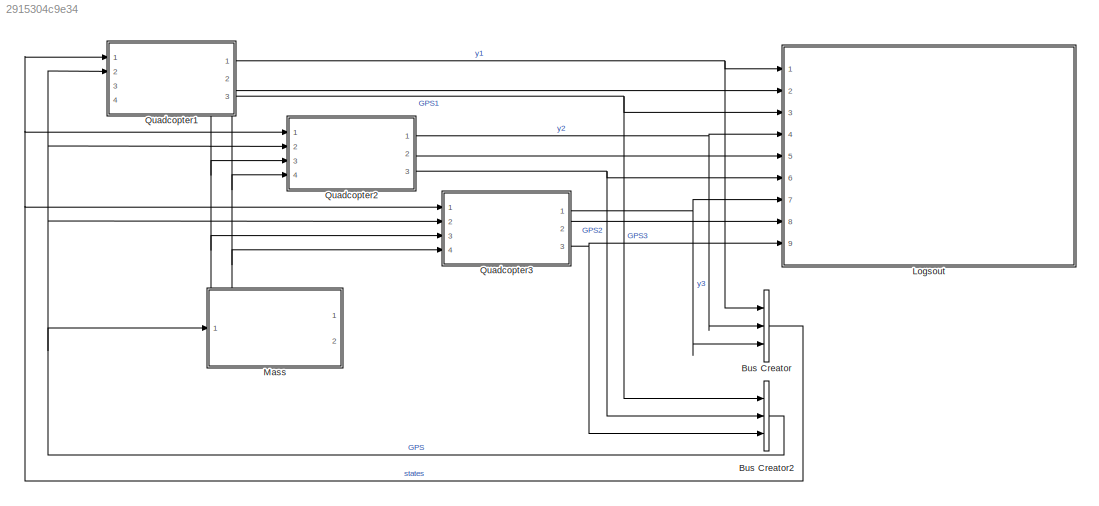
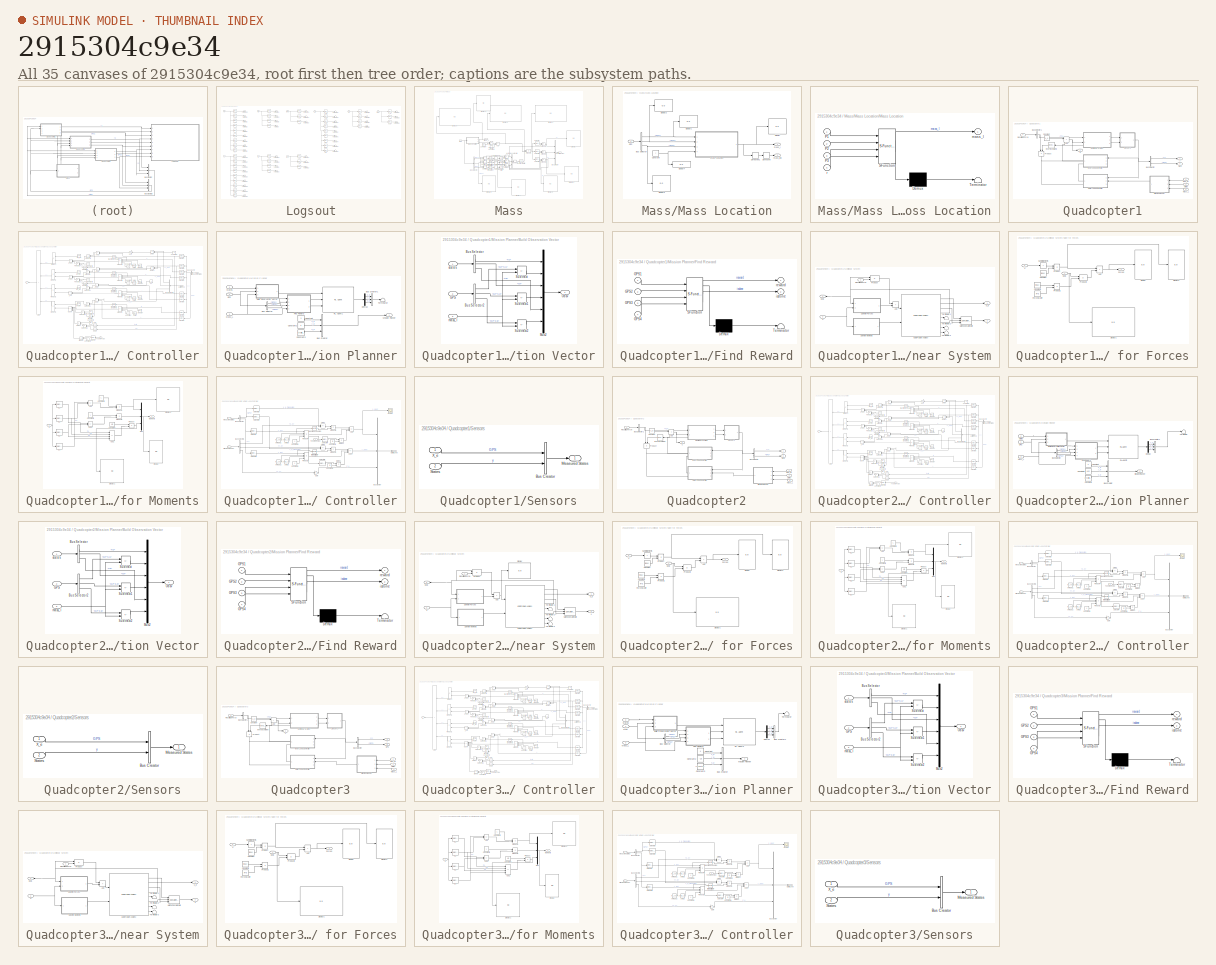
[diagram: thumbnail index - all 35 canvases of the model, root first then tree order]
MODEL slx_2915304c9e34
KIND model
CONFIG AbsTol = auto
CONFIG EnableMultiTasking = off
CONFIG FixedStep = auto
CONFIG MaxStep = auto
CONFIG MinStep = auto
CONFIG RelTol = 1e-3
CONFIG SampleTimeConstraint = Unconstrained
CONFIG SolverName = ode45
CONFIG StartTime = 0.0
CONFIG StopTime = 20
BLOCK [BusCreator] Bus Creator
  DisplayOption = bar
  InheritFromInputs = on
  Inputs = 3
  Ports = [3, 1]
BLOCK [BusCreator] Bus Creator2
  DisplayOption = bar
  InheritFromInputs = on
  Inputs = 3
  Ports = [3, 1]
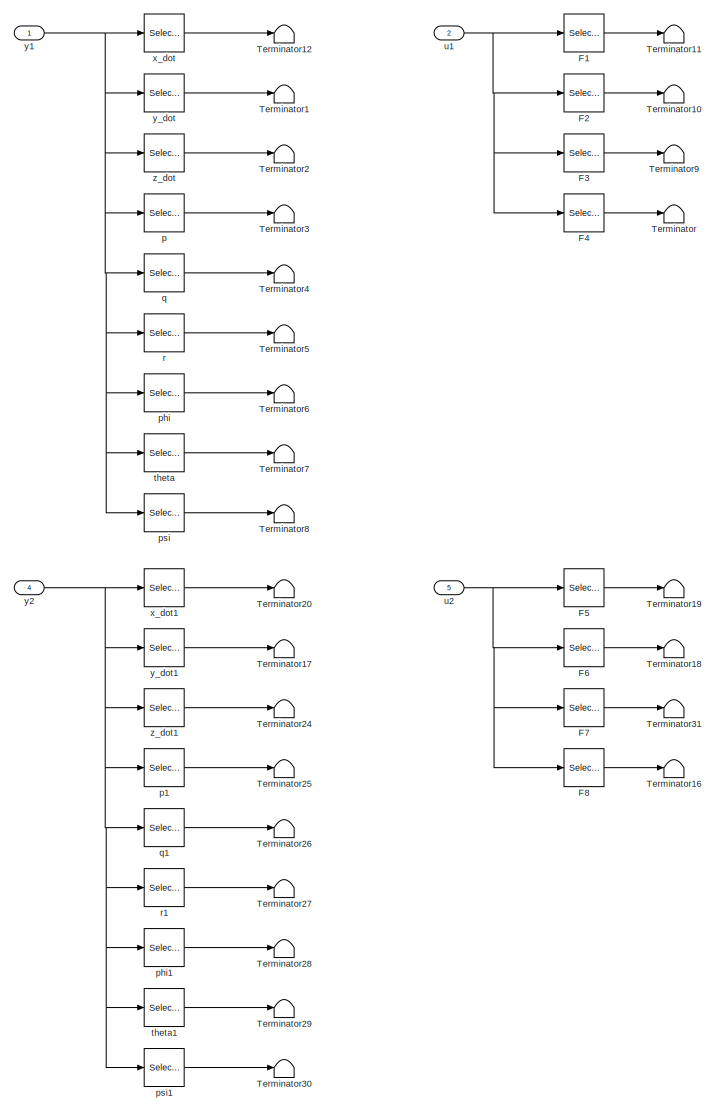
[diagram: Logsout - part 1/2, left side, full height]
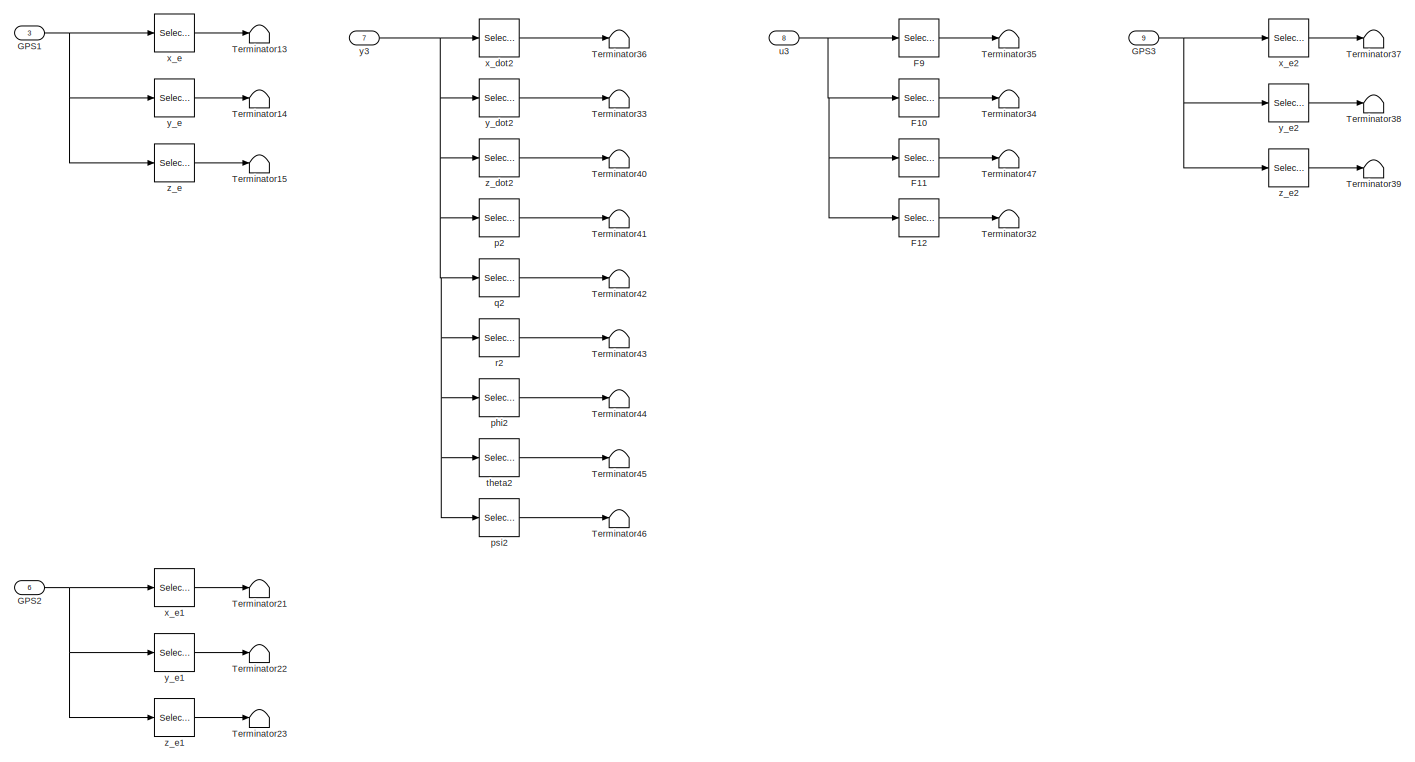
[diagram: Logsout - part 2/2, middle right region]
BLOCK [SubSystem] Logsout
  Ports = [9]
  RequestExecContextInheritance = off
BLOCK [Selector] Logsout/F1
  IndexOptions = Index vector (dialog)
  Indices = 1
  InputPortWidth = 4
  OutputSizes = 1
  Ports = [1, 1]
BLOCK [Selector] Logsout/F10
  IndexOptions = Index vector (dialog)
  Indices = 2
  InputPortWidth = 4
  OutputSizes = 1
  Ports = [1, 1]
BLOCK [Selector] Logsout/F11
  IndexOptions = Index vector (dialog)
  Indices = 3
  InputPortWidth = 4
  OutputSizes = 1
  Ports = [1, 1]
BLOCK [Selector] Logsout/F12
  IndexOptions = Index vector (dialog)
  Indices = 4
  InputPortWidth = 4
  OutputSizes = 1
  Ports = [1, 1]
BLOCK [Selector] Logsout/F2
  IndexOptions = Index vector (dialog)
  Indices = 2
  InputPortWidth = 4
  OutputSizes = 1
  Ports = [1, 1]
BLOCK [Selector] Logsout/F3
  IndexOptions = Index vector (dialog)
  Indices = 3
  InputPortWidth = 4
  OutputSizes = 1
  Ports = [1, 1]
BLOCK [Selector] Logsout/F4
  IndexOptions = Index vector (dialog)
  Indices = 4
  InputPortWidth = 4
  OutputSizes = 1
  Ports = [1, 1]
BLOCK [Selector] Logsout/F5
  IndexOptions = Index vector (dialog)
  Indices = 1
  InputPortWidth = 4
  OutputSizes = 1
  Ports = [1, 1]
BLOCK [Selector] Logsout/F6
  IndexOptions = Index vector (dialog)
  Indices = 2
  InputPortWidth = 4
  OutputSizes = 1
  Ports = [1, 1]
BLOCK [Selector] Logsout/F7
  IndexOptions = Index vector (dialog)
  Indices = 3
  InputPortWidth = 4
  OutputSizes = 1
  Ports = [1, 1]
BLOCK [Selector] Logsout/F8
  IndexOptions = Index vector (dialog)
  Indices = 4
  InputPortWidth = 4
  OutputSizes = 1
  Ports = [1, 1]
BLOCK [Selector] Logsout/F9
  IndexOptions = Index vector (dialog)
  Indices = 1
  InputPortWidth = 4
  OutputSizes = 1
  Ports = [1, 1]
BLOCK [Inport] Logsout/GPS1
  Port = 3
BLOCK [Inport] Logsout/GPS2
  Port = 6
BLOCK [Inport] Logsout/GPS3
  Port = 9
BLOCK [Terminator] Logsout/Terminator
BLOCK [Terminator] Logsout/Terminator1
BLOCK [Terminator] Logsout/Terminator10
BLOCK [Terminator] Logsout/Terminator11
BLOCK [Terminator] Logsout/Terminator12
BLOCK [Terminator] Logsout/Terminator13
BLOCK [Terminator] Logsout/Terminator14
BLOCK [Terminator] Logsout/Terminator15
BLOCK [Terminator] Logsout/Terminator16
BLOCK [Terminator] Logsout/Terminator17
BLOCK [Terminator] Logsout/Terminator18
BLOCK [Terminator] Logsout/Terminator19
BLOCK [Terminator] Logsout/Terminator2
BLOCK [Terminator] Logsout/Terminator20
BLOCK [Terminator] Logsout/Terminator21
BLOCK [Terminator] Logsout/Terminator22
BLOCK [Terminator] Logsout/Terminator23
BLOCK [Terminator] Logsout/Terminator24
BLOCK [Terminator] Logsout/Terminator25
BLOCK [Terminator] Logsout/Terminator26
BLOCK [Terminator] Logsout/Terminator27
BLOCK [Terminator] Logsout/Terminator28
BLOCK [Terminator] Logsout/Terminator29
BLOCK [Terminator] Logsout/Terminator3
BLOCK [Terminator] Logsout/Terminator30
BLOCK [Terminator] Logsout/Terminator31
BLOCK [Terminator] Logsout/Terminator32
BLOCK [Terminator] Logsout/Terminator33
BLOCK [Terminator] Logsout/Terminator34
BLOCK [Terminator] Logsout/Terminator35
BLOCK [Terminator] Logsout/Terminator36
BLOCK [Terminator] Logsout/Terminator37
BLOCK [Terminator] Logsout/Terminator38
BLOCK [Terminator] Logsout/Terminator39
BLOCK [Terminator] Logsout/Terminator4
BLOCK [Terminator] Logsout/Terminator40
BLOCK [Terminator] Logsout/Terminator41
BLOCK [Terminator] Logsout/Terminator42
BLOCK [Terminator] Logsout/Terminator43
BLOCK [Terminator] Logsout/Terminator44
BLOCK [Terminator] Logsout/Terminator45
BLOCK [Terminator] Logsout/Terminator46
BLOCK [Terminator] Logsout/Terminator47
BLOCK [Terminator] Logsout/Terminator5
BLOCK [Terminator] Logsout/Terminator6
BLOCK [Terminator] Logsout/Terminator7
BLOCK [Terminator] Logsout/Terminator8
BLOCK [Terminator] Logsout/Terminator9
BLOCK [Selector] Logsout/p
  IndexOptions = Index vector (dialog)
  Indices = 4
  InputPortWidth = 9
  OutputSizes = 1
  Ports = [1, 1]
BLOCK [Selector] Logsout/p1
  IndexOptions = Index vector (dialog)
  Indices = 4
  InputPortWidth = 9
  OutputSizes = 1
  Ports = [1, 1]
BLOCK [Selector] Logsout/p2
  IndexOptions = Index vector (dialog)
  Indices = 4
  InputPortWidth = 9
  OutputSizes = 1
  Ports = [1, 1]
BLOCK [Selector] Logsout/phi
  IndexOptions = Index vector (dialog)
  Indices = 7
  InputPortWidth = 9
  OutputSizes = 1
  Ports = [1, 1]
BLOCK [Selector] Logsout/phi1
  IndexOptions = Index vector (dialog)
  Indices = 7
  InputPortWidth = 9
  OutputSizes = 1
  Ports = [1, 1]
BLOCK [Selector] Logsout/phi2
  IndexOptions = Index vector (dialog)
  Indices = 7
  InputPortWidth = 9
  OutputSizes = 1
  Ports = [1, 1]
BLOCK [Selector] Logsout/psi
  IndexOptions = Index vector (dialog)
  Indices = 9
  InputPortWidth = 9
  OutputSizes = 1
  Ports = [1, 1]
BLOCK [Selector] Logsout/psi1
  IndexOptions = Index vector (dialog)
  Indices = 9
  InputPortWidth = 9
  OutputSizes = 1
  Ports = [1, 1]
BLOCK [Selector] Logsout/psi2
  IndexOptions = Index vector (dialog)
  Indices = 9
  InputPortWidth = 9
  OutputSizes = 1
  Ports = [1, 1]
BLOCK [Selector] Logsout/q
  IndexOptions = Index vector (dialog)
  Indices = 5
  InputPortWidth = 9
  OutputSizes = 1
  Ports = [1, 1]
BLOCK [Selector] Logsout/q1
  IndexOptions = Index vector (dialog)
  Indices = 5
  InputPortWidth = 9
  OutputSizes = 1
  Ports = [1, 1]
BLOCK [Selector] Logsout/q2
  IndexOptions = Index vector (dialog)
  Indices = 5
  InputPortWidth = 9
  OutputSizes = 1
  Ports = [1, 1]
BLOCK [Selector] Logsout/r
  IndexOptions = Index vector (dialog)
  Indices = 6
  InputPortWidth = 9
  OutputSizes = 1
  Ports = [1, 1]
BLOCK [Selector] Logsout/r1
  IndexOptions = Index vector (dialog)
  Indices = 6
  InputPortWidth = 9
  OutputSizes = 1
  Ports = [1, 1]
BLOCK [Selector] Logsout/r2
  IndexOptions = Index vector (dialog)
  Indices = 6
  InputPortWidth = 9
  OutputSizes = 1
  Ports = [1, 1]
BLOCK [Selector] Logsout/theta
  IndexOptions = Index vector (dialog)
  Indices = 8
  InputPortWidth = 9
  OutputSizes = 1
  Ports = [1, 1]
BLOCK [Selector] Logsout/theta1
  IndexOptions = Index vector (dialog)
  Indices = 8
  InputPortWidth = 9
  OutputSizes = 1
  Ports = [1, 1]
BLOCK [Selector] Logsout/theta2
  IndexOptions = Index vector (dialog)
  Indices = 8
  InputPortWidth = 9
  OutputSizes = 1
  Ports = [1, 1]
BLOCK [Inport] Logsout/u1
  Port = 2
BLOCK [Inport] Logsout/u2
  Port = 5
BLOCK [Inport] Logsout/u3
  Port = 8
BLOCK [Selector] Logsout/x_dot
  IndexOptions = Index vector (dialog)
  Indices = 1
  InputPortWidth = 9
  OutputSizes = 1
  Ports = [1, 1]
BLOCK [Selector] Logsout/x_dot1
  IndexOptions = Index vector (dialog)
  Indices = 1
  InputPortWidth = 9
  OutputSizes = 1
  Ports = [1, 1]
BLOCK [Selector] Logsout/x_dot2
  IndexOptions = Index vector (dialog)
  Indices = 1
  InputPortWidth = 9
  OutputSizes = 1
  Ports = [1, 1]
BLOCK [Selector] Logsout/x_e
  IndexOptions = Index vector (dialog)
  Indices = 1
  InputPortWidth = 3
  OutputSizes = 1
  Ports = [1, 1]
BLOCK [Selector] Logsout/x_e1
  IndexOptions = Index vector (dialog)
  Indices = 1
  InputPortWidth = 3
  OutputSizes = 1
  Ports = [1, 1]
BLOCK [Selector] Logsout/x_e2
  IndexOptions = Index vector (dialog)
  Indices = 1
  InputPortWidth = 3
  OutputSizes = 1
  Ports = [1, 1]
BLOCK [Inport] Logsout/y1
BLOCK [Inport] Logsout/y2
  Port = 4
BLOCK [Inport] Logsout/y3
  Port = 7
BLOCK [Selector] Logsout/y_dot
  IndexOptions = Index vector (dialog)
  Indices = 2
  InputPortWidth = 9
  OutputSizes = 1
  Ports = [1, 1]
BLOCK [Selector] Logsout/y_dot1
  IndexOptions = Index vector (dialog)
  Indices = 2
  InputPortWidth = 9
  OutputSizes = 1
  Ports = [1, 1]
BLOCK [Selector] Logsout/y_dot2
  IndexOptions = Index vector (dialog)
  Indices = 2
  InputPortWidth = 9
  OutputSizes = 1
  Ports = [1, 1]
BLOCK [Selector] Logsout/y_e
  IndexOptions = Index vector (dialog)
  Indices = 2
  InputPortWidth = 3
  OutputSizes = 1
  Ports = [1, 1]
BLOCK [Selector] Logsout/y_e1
  IndexOptions = Index vector (dialog)
  Indices = 2
  InputPortWidth = 3
  OutputSizes = 1
  Ports = [1, 1]
BLOCK [Selector] Logsout/y_e2
  IndexOptions = Index vector (dialog)
  Indices = 2
  InputPortWidth = 3
  OutputSizes = 1
  Ports = [1, 1]
BLOCK [Selector] Logsout/z_dot
  IndexOptions = Index vector (dialog)
  Indices = 3
  InputPortWidth = 9
  OutputSizes = 1
  Ports = [1, 1]
BLOCK [Selector] Logsout/z_dot1
  IndexOptions = Index vector (dialog)
  Indices = 3
  InputPortWidth = 9
  OutputSizes = 1
  Ports = [1, 1]
BLOCK [Selector] Logsout/z_dot2
  IndexOptions = Index vector (dialog)
  Indices = 3
  InputPortWidth = 9
  OutputSizes = 1
  Ports = [1, 1]
BLOCK [Selector] Logsout/z_e
  IndexOptions = Index vector (dialog)
  Indices = 3
  InputPortWidth = 3
  OutputSizes = 1
  Ports = [1, 1]
BLOCK [Selector] Logsout/z_e1
  IndexOptions = Index vector (dialog)
  Indices = 3
  InputPortWidth = 3
  OutputSizes = 1
  Ports = [1, 1]
BLOCK [Selector] Logsout/z_e2
  IndexOptions = Index vector (dialog)
  Indices = 3
  InputPortWidth = 3
  OutputSizes = 1
  Ports = [1, 1]
BLOCK [SubSystem] Mass
  PortSchema = {"entries":[{"content":{"sides":[{"content":{"connectorIds":["Out1","Out2","In1"]},"type":"ConnectorPlacement.EquallySpacedRectSide","uuid":"4edc069a-805e-4b8f-97a6-cf234fccdbf6"},{"content":{"connectorIds":[],"side":"RIGHT"},"type":"ConnectorPlacement.EquallySpacedRectSide","uuid":"8a591d16-4bf7-485b-b559-b7d05b260f63"},{"content":{"connectorIds":[],"side":"TOP"},"type":"ConnectorPlacement.Equall...<+392ch>
  Ports = [1, 2]
  RequestExecContextInheritance = off
BLOCK [Sum] Mass/Add
  IconShape = rectangular
  Inputs = +-
  Ports = [2, 1]
BLOCK [BusCreator] Mass/Bus Creator
  DisplayOption = bar
  InheritFromInputs = on
  Inputs = 3
  Ports = [3, 1]
BLOCK [BusSelector] Mass/Bus Selector
  OutputSignals = GPS1,GPS2,GPS3
  Ports = [1, 3]
BLOCK [Constant] Mass/Constant
  Value = mass
BLOCK [Constant] Mass/Constant2
  Value = [0;0;mass*g]
BLOCK [Display] Mass/Display
  Decimation = 1
  Ports = [1]
BLOCK [Display] Mass/Display1
  Decimation = 1
  Ports = [1]
BLOCK [Display] Mass/Display2
  Decimation = 1
  Ports = [1]
BLOCK [Display] Mass/Display3
  Decimation = 1
  Ports = [1]
BLOCK [Display] Mass/Display4
  Decimation = 1
  Ports = [1]
BLOCK [Display] Mass/Display5
  Decimation = 1
  Ports = [1]
BLOCK [Display] Mass/Display6
  Decimation = 1
  Ports = [1]
BLOCK [Display] Mass/Display7
  Decimation = 1
  Ports = [1]
BLOCK [Display] Mass/Display8
  Decimation = 1
  Ports = [1]
BLOCK [Product] Mass/Divide
  Inputs = */
  Ports = [2, 1]
BLOCK [Product] Mass/Divide1
  Inputs = */
  Ports = [2, 1]
BLOCK [Product] Mass/Divide2
  Inputs = */
  Ports = [2, 1]
BLOCK [Inport] Mass/GPS
BLOCK [Reference] Mass/Invert 3x3 Matrix  REF=aerolibutil/Invert 
3x3 Matrix
  Ports = [1, 1]
  SourceBlock = aerolibutil/Invert \n3x3 Matrix
  SourceProductBaseCode = AE
  SourceType = Invert 3x3 Matrix
BLOCK [Math] Mass/Magnitude Squared
  Operator = magnitude^2
  Ports = [1, 1]
BLOCK [Math] Mass/Magnitude Squared1
  Operator = magnitude^2
  Ports = [1, 1]
BLOCK [Math] Mass/Magnitude Squared2
  Operator = magnitude^2
  Ports = [1, 1]
BLOCK [SubSystem] Mass/Mass Location
  Ports = [1, 2]
  RequestExecContextInheritance = off
BLOCK [BusSelector] Mass/Mass Location/Bus Selector
  OutputSignals = GPS1,GPS2,GPS3
  Ports = [1, 3]
BLOCK [Constant] Mass/Mass Location/Constant
  Value = r
BLOCK [Derivative] Mass/Mass Location/Derivative
BLOCK [Derivative] Mass/Mass Location/Derivative1
BLOCK [Display] Mass/Mass Location/Display
  Decimation = 1
  Ports = [1]
BLOCK [Display] Mass/Mass Location/Display1
  Decimation = 1
  Ports = [1]
BLOCK [Display] Mass/Mass Location/Display2
  Decimation = 1
  Ports = [1]
BLOCK [Display] Mass/Mass Location/Display3
  Decimation = 1
  Ports = [1]
BLOCK [Display] Mass/Mass Location/Display4
  Decimation = 1
  Ports = [1]
BLOCK [Inport] Mass/Mass Location/GPS
BLOCK [SubSystem] Mass/Mass Location/Mass Location
  ErrorFcn = Stateflow.Translate.translate
  PermitHierarchicalResolution = ExplicitOnly
  Ports = [4, 1]
  RequestExecContextInheritance = off
  SFBlockType = MATLAB Function
  TreatAsAtomicUnit = on
BLOCK [Demux] Mass/Mass Location/Mass Location/ Demux 
  Outputs = 1
  Ports = [1, 1]
BLOCK [S-Function] Mass/Mass Location/Mass Location/ SFunction 
  EnableBusSupport = on
  FunctionName = sf_sfun
  PortCounts = [4 2]
  Ports = [4, 2]
  SFcnIsStateOwnerBlock = off
  SFunctionDeploymentMode = off
  Tag = Stateflow S-Function 7
BLOCK [Terminator] Mass/Mass Location/Mass Location/ Terminator 
BLOCK [Inport] Mass/Mass Location/Mass Location/P1
BLOCK [Inport] Mass/Mass Location/Mass Location/P2
  Port = 2
BLOCK [Inport] Mass/Mass Location/Mass Location/P3
  Port = 3
BLOCK [Outport] Mass/Mass Location/Mass Location/mass_l
BLOCK [Inport] Mass/Mass Location/Mass Location/r
  Port = 4
BLOCK [Outport] Mass/Mass Location/mass_l
BLOCK [Outport] Mass/Mass Location/mass_ldd
  Port = 2
BLOCK [Outport] Mass/Mass_L
  Port = 2
BLOCK [Product] Mass/Product
  Ports = [2, 1]
BLOCK [Product] Mass/Product1
  Multiplication = Matrix(*)
  Ports = [2, 1]
BLOCK [Product] Mass/Product2
  Ports = [2, 1]
BLOCK [Product] Mass/Product3
  Ports = [2, 1]
BLOCK [Product] Mass/Product4
  Ports = [2, 1]
BLOCK [Reshape] Mass/Reshape
  OutputDimensionality = Customize
  OutputDimensions = [3,3]
  Ports = [1, 1]
BLOCK [Outport] Mass/Resulting Force
BLOCK [Selector] Mass/Selector
  IndexOptions = Index vector (dialog)
  Indices = 1
  InputPortWidth = 3
  OutputSizes = 1
  Ports = [1, 1]
BLOCK [Selector] Mass/Selector1
  IndexOptions = Index vector (dialog)
  Indices = 2
  InputPortWidth = 3
  OutputSizes = 1
  Ports = [1, 1]
BLOCK [Selector] Mass/Selector2
  IndexOptions = Index vector (dialog)
  Indices = 3
  InputPortWidth = 3
  OutputSizes = 1
  Ports = [1, 1]
BLOCK [Sqrt] Mass/Sqrt
BLOCK [Sqrt] Mass/Sqrt1
BLOCK [Sqrt] Mass/Sqrt2
BLOCK [Sum] Mass/Subtract
  IconShape = rectangular
  Inputs = +-
  Ports = [2, 1]
BLOCK [Sum] Mass/Subtract1
  IconShape = rectangular
  Inputs = +-
  Ports = [2, 1]
BLOCK [Sum] Mass/Subtract2
  IconShape = rectangular
  Inputs = +-
  Ports = [2, 1]
BLOCK [Sum] Mass/Sum of Elements
  IconShape = rectangular
  Inputs = +
  Ports = [1, 1]
BLOCK [Sum] Mass/Sum of Elements1
  IconShape = rectangular
  Inputs = +
  Ports = [1, 1]
BLOCK [Sum] Mass/Sum of Elements2
  IconShape = rectangular
  Inputs = +
  Ports = [1, 1]
BLOCK [Concatenate] Mass/Vector Concatenate
  NumInputs = 3
  Ports = [3, 1]
BLOCK [SubSystem] Quadcopter1
  Ports = [4, 3]
  RequestExecContextInheritance = off
BLOCK [Sum] Quadcopter1/Add
  IconShape = rectangular
  Ports = [2, 1]
BLOCK [BusSelector] Quadcopter1/Bus Selector
  OutputSignals = y,GPS
  Ports = [1, 2]
BLOCK [BusSelector] Quadcopter1/Bus Selector1
  OutputSignals = T1
  Ports = [1, 1]
BLOCK [Constant] Quadcopter1/Constant
  Value = u_e
BLOCK [Outport] Quadcopter1/GPS
  Port = 3
BLOCK [Inport] Quadcopter1/GPS_M
  Port = 2
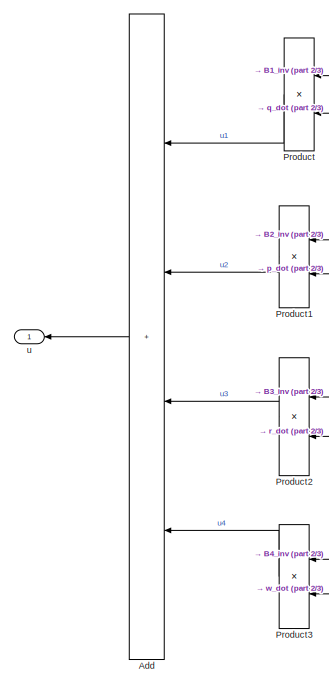
[diagram: Quadcopter1/Inner Loop Controller - part 1/3, middle left region]
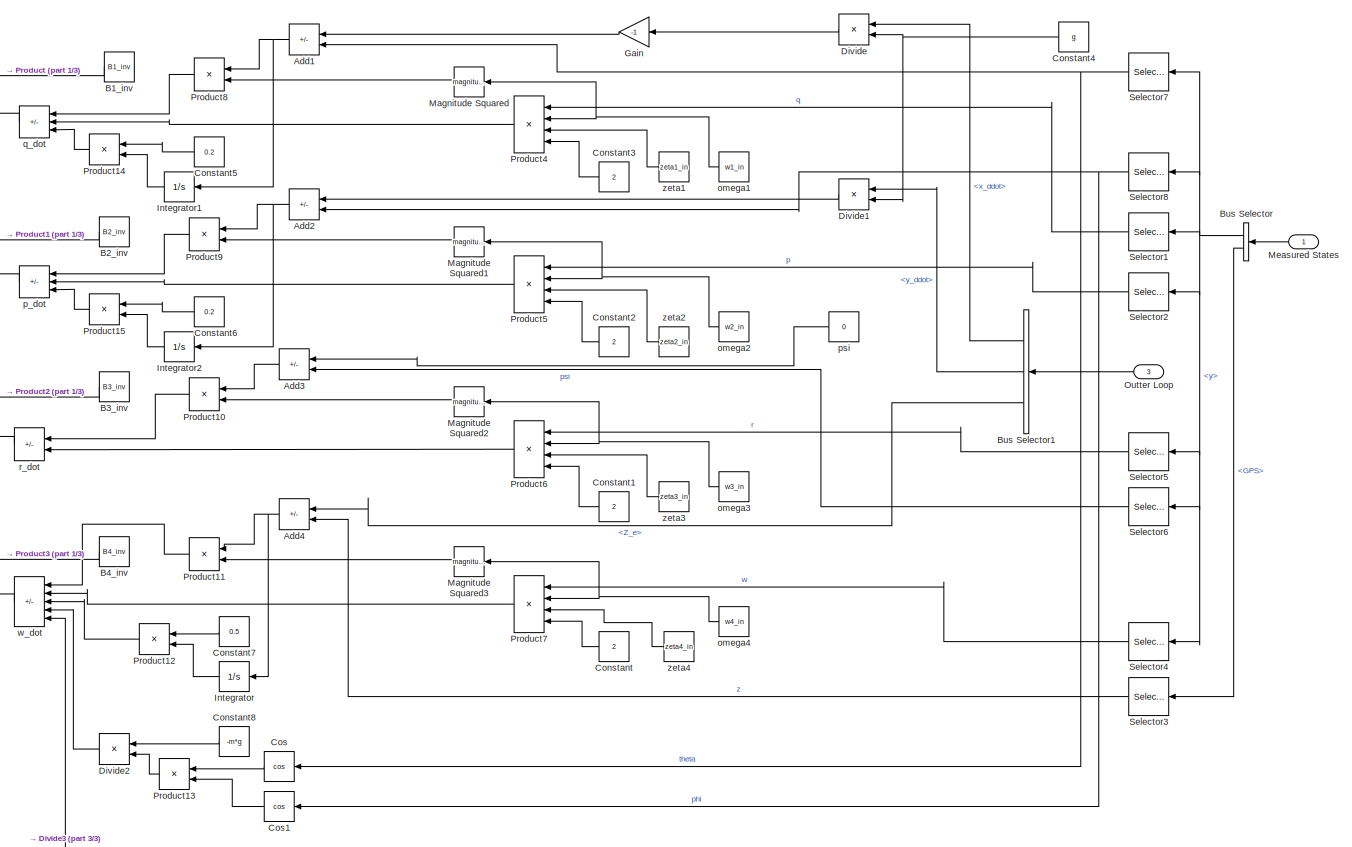
[diagram: Quadcopter1/Inner Loop Controller - part 2/3, most of the canvas]
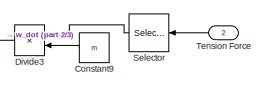
[diagram: Quadcopter1/Inner Loop Controller - part 3/3, bottom center region]
BLOCK [SubSystem] Quadcopter1/Inner Loop Controller
  PortSchema = {"entries":[{"content":{"sides":[{"content":{"connectorIds":["In1"]},"type":"ConnectorPlacement.EquallySpacedRectSide","uuid":"666e7364-b111-4755-8f1d-083b40822e0a"},{"content":{"connectorIds":["Out1","In2","In3"],"side":"RIGHT"},"type":"ConnectorPlacement.EquallySpacedRectSide","uuid":"79960851-d5f8-4ed1-a120-baa8ff5c91cc"},{"content":{"connectorIds":[],"side":"TOP"},"type":"ConnectorPlacement.Eq...<+252ch>  <repeated x3 — deduplicated; at blocks: Inner Loop Controller>
  Ports = [3, 1]
  RequestExecContextInheritance = off
BLOCK [Inport] Quadcopter1/Inner Loop Controller/ Tension Force
  Port = 2
BLOCK [Sum] Quadcopter1/Inner Loop Controller/Add
  IconShape = rectangular
  Inputs = ++++
  Ports = [4, 1]
BLOCK [Sum] Quadcopter1/Inner Loop Controller/Add1
  IconShape = rectangular
  Inputs = +-
  Ports = [2, 1]
BLOCK [Sum] Quadcopter1/Inner Loop Controller/Add2
  IconShape = rectangular
  Inputs = +-
  Ports = [2, 1]
BLOCK [Sum] Quadcopter1/Inner Loop Controller/Add3
  IconShape = rectangular
  Inputs = +-
  Ports = [2, 1]
BLOCK [Sum] Quadcopter1/Inner Loop Controller/Add4
  IconShape = rectangular
  Inputs = +-
  Ports = [2, 1]
BLOCK [Constant] Quadcopter1/Inner Loop Controller/B1_inv
  Value = B1_inv
BLOCK [Constant] Quadcopter1/Inner Loop Controller/B2_inv
  Value = B2_inv
BLOCK [Constant] Quadcopter1/Inner Loop Controller/B3_inv
  Value = B3_inv
BLOCK [Constant] Quadcopter1/Inner Loop Controller/B4_inv
  Value = B4_inv
BLOCK [BusSelector] Quadcopter1/Inner Loop Controller/Bus Selector
  OutputSignals = y,GPS
  Ports = [1, 2]
BLOCK [BusSelector] Quadcopter1/Inner Loop Controller/Bus Selector1
  OutputSignals = x_ddot,y_ddot,Z_e
  Ports = [1, 3]
BLOCK [Constant] Quadcopter1/Inner Loop Controller/Constant
  NameLocation = top
  Value = 2
BLOCK [Constant] Quadcopter1/Inner Loop Controller/Constant1
  NameLocation = top
  Value = 2
BLOCK [Constant] Quadcopter1/Inner Loop Controller/Constant2
  NameLocation = top
  Value = 2
BLOCK [Constant] Quadcopter1/Inner Loop Controller/Constant3
  NameLocation = top
  Value = 2
BLOCK [Constant] Quadcopter1/Inner Loop Controller/Constant4
  Value = g
BLOCK [Constant] Quadcopter1/Inner Loop Controller/Constant5
  Value = 0.2
BLOCK [Constant] Quadcopter1/Inner Loop Controller/Constant6
  Value = 0.2
BLOCK [Constant] Quadcopter1/Inner Loop Controller/Constant7
  Value = 0.5
BLOCK [Constant] Quadcopter1/Inner Loop Controller/Constant8
  Value = -m*g
BLOCK [Constant] Quadcopter1/Inner Loop Controller/Constant9
  Value = m
BLOCK [Trigonometry] Quadcopter1/Inner Loop Controller/Cos
  Operator = cos
  Ports = [1, 1]
BLOCK [Trigonometry] Quadcopter1/Inner Loop Controller/Cos1
  Operator = cos
  Ports = [1, 1]
BLOCK [Product] Quadcopter1/Inner Loop Controller/Divide
  Inputs = */
  Ports = [2, 1]
BLOCK [Product] Quadcopter1/Inner Loop Controller/Divide1
  Inputs = */
  Ports = [2, 1]
BLOCK [Product] Quadcopter1/Inner Loop Controller/Divide2
  Inputs = */
  Ports = [2, 1]
BLOCK [Product] Quadcopter1/Inner Loop Controller/Divide3
  Inputs = */
  Ports = [2, 1]
BLOCK [Gain] Quadcopter1/Inner Loop Controller/Gain
  Gain = -1
BLOCK [Integrator] Quadcopter1/Inner Loop Controller/Integrator
  Ports = [1, 1]
BLOCK [Integrator] Quadcopter1/Inner Loop Controller/Integrator1
  Ports = [1, 1]
BLOCK [Integrator] Quadcopter1/Inner Loop Controller/Integrator2
  Ports = [1, 1]
BLOCK [Math] Quadcopter1/Inner Loop Controller/Magnitude Squared
  Operator = magnitude^2
  Ports = [1, 1]
BLOCK [Math] Quadcopter1/Inner Loop Controller/Magnitude Squared1
  Operator = magnitude^2
  Ports = [1, 1]
BLOCK [Math] Quadcopter1/Inner Loop Controller/Magnitude Squared2
  Operator = magnitude^2
  Ports = [1, 1]
BLOCK [Math] Quadcopter1/Inner Loop Controller/Magnitude Squared3
  Operator = magnitude^2
  Ports = [1, 1]
BLOCK [Inport] Quadcopter1/Inner Loop Controller/Measured States
BLOCK [Inport] Quadcopter1/Inner Loop Controller/Outter Loop
  Port = 3
BLOCK [Product] Quadcopter1/Inner Loop Controller/Product
  Ports = [2, 1]
BLOCK [Product] Quadcopter1/Inner Loop Controller/Product1
  Ports = [2, 1]
BLOCK [Product] Quadcopter1/Inner Loop Controller/Product10
  NameLocation = top
  Ports = [2, 1]
BLOCK [Product] Quadcopter1/Inner Loop Controller/Product11
  NameLocation = top
  Ports = [2, 1]
BLOCK [Product] Quadcopter1/Inner Loop Controller/Product12
  Ports = [2, 1]
BLOCK [Product] Quadcopter1/Inner Loop Controller/Product13
  Ports = [2, 1]
BLOCK [Product] Quadcopter1/Inner Loop Controller/Product14
  Ports = [2, 1]
BLOCK [Product] Quadcopter1/Inner Loop Controller/Product15
  Ports = [2, 1]
BLOCK [Product] Quadcopter1/Inner Loop Controller/Product2
  Ports = [2, 1]
BLOCK [Product] Quadcopter1/Inner Loop Controller/Product3
  Ports = [2, 1]
BLOCK [Product] Quadcopter1/Inner Loop Controller/Product4
  Inputs = 4
  NameLocation = top
  Ports = [4, 1]
BLOCK [Product] Quadcopter1/Inner Loop Controller/Product5
  Inputs = 4
  NameLocation = top
  Ports = [4, 1]
BLOCK [Product] Quadcopter1/Inner Loop Controller/Product6
  Inputs = 4
  NameLocation = top
  Ports = [4, 1]
BLOCK [Product] Quadcopter1/Inner Loop Controller/Product7
  Inputs = 4
  NameLocation = top
  Ports = [4, 1]
BLOCK [Product] Quadcopter1/Inner Loop Controller/Product8
  NameLocation = top
  Ports = [2, 1]
BLOCK [Product] Quadcopter1/Inner Loop Controller/Product9
  NameLocation = top
  Ports = [2, 1]
BLOCK [Selector] Quadcopter1/Inner Loop Controller/Selector
  IndexOptions = Index vector (dialog)
  Indices = 3
  InputPortWidth = 3
  OutputSizes = 1
  Ports = [1, 1]
BLOCK [Selector] Quadcopter1/Inner Loop Controller/Selector1
  IndexOptions = Index vector (dialog)
  Indices = 5
  InputPortWidth = 9
  OutputSizes = 1
  Ports = [1, 1]
BLOCK [Selector] Quadcopter1/Inner Loop Controller/Selector2
  IndexOptions = Index vector (dialog)
  Indices = 4
  InputPortWidth = 9
  OutputSizes = 1
  Ports = [1, 1]
BLOCK [Selector] Quadcopter1/Inner Loop Controller/Selector3
  IndexOptions = Index vector (dialog)
  Indices = 3
  InputPortWidth = 3
  OutputSizes = 1
  Ports = [1, 1]
BLOCK [Selector] Quadcopter1/Inner Loop Controller/Selector4
  IndexOptions = Index vector (dialog)
  Indices = 3
  InputPortWidth = 9
  OutputSizes = 1
  Ports = [1, 1]
BLOCK [Selector] Quadcopter1/Inner Loop Controller/Selector5
  IndexOptions = Index vector (dialog)
  Indices = 6
  InputPortWidth = 9
  OutputSizes = 1
  Ports = [1, 1]
BLOCK [Selector] Quadcopter1/Inner Loop Controller/Selector6
  IndexOptions = Index vector (dialog)
  Indices = 9
  InputPortWidth = 9
  OutputSizes = 1
  Ports = [1, 1]
BLOCK [Selector] Quadcopter1/Inner Loop Controller/Selector7
  IndexOptions = Index vector (dialog)
  Indices = 8
  InputPortWidth = 9
  OutputSizes = 1
  Ports = [1, 1]
BLOCK [Selector] Quadcopter1/Inner Loop Controller/Selector8
  IndexOptions = Index vector (dialog)
  Indices = 7
  InputPortWidth = 9
  OutputSizes = 1
  Ports = [1, 1]
BLOCK [Constant] Quadcopter1/Inner Loop Controller/omega1
  NameLocation = top
  Value = w1_in
BLOCK [Constant] Quadcopter1/Inner Loop Controller/omega2
  NameLocation = top
  Value = w2_in
BLOCK [Constant] Quadcopter1/Inner Loop Controller/omega3
  NameLocation = top
  Value = w3_in
BLOCK [Constant] Quadcopter1/Inner Loop Controller/omega4
  NameLocation = top
  Value = w4_in
BLOCK [Sum] Quadcopter1/Inner Loop Controller/p_dot
  IconShape = rectangular
  Inputs = +-+
  Ports = [3, 1]
BLOCK [Constant] Quadcopter1/Inner Loop Controller/psi
  Value = 0
BLOCK [Sum] Quadcopter1/Inner Loop Controller/q_dot
  IconShape = rectangular
  Inputs = +-+
  Ports = [3, 1]
BLOCK [Sum] Quadcopter1/Inner Loop Controller/r_dot
  IconShape = rectangular
  Inputs = +-
  Ports = [2, 1]
BLOCK [Outport] Quadcopter1/Inner Loop Controller/u
BLOCK [Sum] Quadcopter1/Inner Loop Controller/w_dot
  IconShape = rectangular
  Inputs = +-+++
  Ports = [5, 1]
BLOCK [Constant] Quadcopter1/Inner Loop Controller/zeta1
  NameLocation = top
  Value = zeta1_in
BLOCK [Constant] Quadcopter1/Inner Loop Controller/zeta2
  NameLocation = top
  Value = zeta2_in
BLOCK [Constant] Quadcopter1/Inner Loop Controller/zeta3
  NameLocation = top
  Value = zeta3_in
BLOCK [Constant] Quadcopter1/Inner Loop Controller/zeta4
  NameLocation = top
  Value = zeta4_in
BLOCK [Reference] Quadcopter1/Invert 3x3 Matrix  REF=aerolibutil/Invert 
3x3 Matrix
  Ports = [1, 1]
  SourceBlock = aerolibutil/Invert \n3x3 Matrix
  SourceProductBaseCode = AE
  SourceType = Invert 3x3 Matrix
BLOCK [Inport] Quadcopter1/Mass_L
  Port = 3
BLOCK [SubSystem] Quadcopter1/Mission Planner
  Ports = [3, 1]
  RequestExecContextInheritance = off
BLOCK [SubSystem] Quadcopter1/Mission Planner/Build Observation Vector
  Ports = [3, 1]
  RequestExecContextInheritance = off
BLOCK [BusSelector] Quadcopter1/Mission Planner/Build Observation Vector/Bus Selector
  OutputSignals = y1,y2,y3
  Ports = [1, 3]
BLOCK [BusSelector] Quadcopter1/Mission Planner/Build Observation Vector/Bus Selector2
  OutputSignals = GPS1,GPS2,GPS3
  Ports = [1, 3]
BLOCK [Inport] Quadcopter1/Mission Planner/Build Observation Vector/GPS
  Port = 2
BLOCK [Mux] Quadcopter1/Mission Planner/Build Observation Vector/Mux2
  DisplayOption = bar
  Inputs = 6
  Ports = [6, 1]
BLOCK [Outport] Quadcopter1/Mission Planner/Build Observation Vector/Obsv
BLOCK [Sum] Quadcopter1/Mission Planner/Build Observation Vector/Subtract
  IconShape = rectangular
  Inputs = +-
  Ports = [2, 1]
BLOCK [Sum] Quadcopter1/Mission Planner/Build Observation Vector/Subtract1
  IconShape = rectangular
  Inputs = +-
  Ports = [2, 1]
BLOCK [Sum] Quadcopter1/Mission Planner/Build Observation Vector/Subtract2
  IconShape = rectangular
  Inputs = +-
  Ports = [2, 1]
BLOCK [Inport] Quadcopter1/Mission Planner/Build Observation Vector/mass_l
  Port = 3
BLOCK [Inport] Quadcopter1/Mission Planner/Build Observation Vector/states
BLOCK [BusCreator] Quadcopter1/Mission Planner/Bus Creator
  DisplayOption = bar
  InheritFromInputs = on
  Inputs = 3
  Ports = [3, 1]
BLOCK [BusCreator] Quadcopter1/Mission Planner/Bus Creator1
  DisplayOption = bar
  InheritFromInputs = on
  Inputs = 3
  Ports = [3, 1]
BLOCK [BusSelector] Quadcopter1/Mission Planner/Bus Selector
  OutputSignals = GPS1,GPS2,GPS3
  Ports = [1, 3]
BLOCK [Constant] Quadcopter1/Mission Planner/Constant
  Value = 3
BLOCK [Constant] Quadcopter1/Mission Planner/Constant2
  Value = -1
BLOCK [Constant] Quadcopter1/Mission Planner/Constant3
  Value = (1 + sqrt(2))
BLOCK [Demux] Quadcopter1/Mission Planner/Demux
  Outputs = 3
  Ports = [1, 3]
BLOCK [SubSystem] Quadcopter1/Mission Planner/Find Reward
  ErrorFcn = Stateflow.Translate.translate
  PermitHierarchicalResolution = ExplicitOnly
  Ports = [4, 2]
  RequestExecContextInheritance = off
  SFBlockType = MATLAB Function
  TreatAsAtomicUnit = on
BLOCK [Demux] Quadcopter1/Mission Planner/Find Reward/ Demux 
  Outputs = 1
  Ports = [1, 1]
BLOCK [S-Function] Quadcopter1/Mission Planner/Find Reward/ SFunction 
  EnableBusSupport = on
  FunctionName = sf_sfun
  PortCounts = [4 3]
  Ports = [4, 3]
  SFcnIsStateOwnerBlock = off
  SFunctionDeploymentMode = off
  Tag = Stateflow S-Function 2
BLOCK [Terminator] Quadcopter1/Mission Planner/Find Reward/ Terminator 
BLOCK [Inport] Quadcopter1/Mission Planner/Find Reward/GPS1
BLOCK [Inport] Quadcopter1/Mission Planner/Find Reward/GPS2
  Port = 2
BLOCK [Inport] Quadcopter1/Mission Planner/Find Reward/GPS3
  Port = 3
BLOCK [Inport] Quadcopter1/Mission Planner/Find Reward/GPS4
  Port = 4
BLOCK [Outport] Quadcopter1/Mission Planner/Find Reward/isdone
  Port = 2
BLOCK [Outport] Quadcopter1/Mission Planner/Find Reward/reward
BLOCK [Inport] Quadcopter1/Mission Planner/GPS
BLOCK [Inport] Quadcopter1/Mission Planner/Mass_L
  Port = 3
BLOCK [Outport] Quadcopter1/Mission Planner/Mission Planner
BLOCK [Reference] Quadcopter1/Mission Planner/RL Agent1  REF=rllib/RL Agent
  Ports = [3, 1]
  SourceBlock = rllib/RL Agent
  SourceProductBaseCode = RL
  SourceType = RL Agent
BLOCK [Terminator] Quadcopter1/Mission Planner/Terminator
BLOCK [Inport] Quadcopter1/Mission Planner/states
  Port = 2
BLOCK [SubSystem] Quadcopter1/Nonlinear System
  PortSchema = {"entries":[{"content":{"sides":[{"content":{"connectorIds":["In1","In2","Out3"]},"type":"ConnectorPlacement.EquallySpacedRectSide","uuid":"cab06217-b179-45bf-86f1-9cea28acaed0"},{"content":{"connectorIds":["Out1","Out2"],"side":"RIGHT"},"type":"ConnectorPlacement.EquallySpacedRectSide","uuid":"5b831b23-67c9-4c45-aa0b-c8fd683f7f92"},{"content":{"connectorIds":[],"side":"TOP"},"type":"ConnectorPlac...<+260ch>  <repeated x3 — deduplicated; at blocks: Nonlinear System>
  Ports = [2, 3]
  RequestExecContextInheritance = off
BLOCK [Reference] Quadcopter1/Nonlinear System/6DOF (Euler Angles)  REF=shared6dof/6DOF (Euler Angles)
  Ports = [2, 8]
  SourceBlock = shared6dof/6DOF (Euler Angles)
  SourceProductBaseCode = AE,PW,DR,MT,VE
  SourceType = 6DOF EoM (Body Axis)
BLOCK [Sum] Quadcopter1/Nonlinear System/Add
  IconShape = rectangular
  Ports = [2, 1]
BLOCK [Outport] Quadcopter1/Nonlinear System/E2B
  Port = 3
BLOCK [Concatenate] Quadcopter1/Nonlinear System/Matrix Concatenate
  ConcatenateDimension = 2
  NumInputs = 3
  Ports = [3, 1]
BLOCK [Product] Quadcopter1/Nonlinear System/Product
  Multiplication = Matrix(*)
  Ports = [2, 1]
BLOCK [Inport] Quadcopter1/Nonlinear System/Resulting Force
BLOCK [SubSystem] Quadcopter1/Nonlinear System/Solve for Forces
  Ports = [2, 1]
  RequestExecContextInheritance = off
BLOCK [Sum] Quadcopter1/Nonlinear System/Solve for Forces/Add
  IconShape = rectangular
  Ports = [2, 1]
BLOCK [Constant] Quadcopter1/Nonlinear System/Solve for Forces/Constant
  Value = -[0,0,1]
BLOCK [Constant] Quadcopter1/Nonlinear System/Solve for Forces/Constant1
  Value = [0,0,1]
BLOCK [Display] Quadcopter1/Nonlinear System/Solve for Forces/Display
  Decimation = 1
  Ports = [1]
BLOCK [Display] Quadcopter1/Nonlinear System/Solve for Forces/Display1
  Decimation = 1
  Ports = [1]
BLOCK [Display] Quadcopter1/Nonlinear System/Solve for Forces/Display2
  Decimation = 1
  Ports = [1]
BLOCK [Inport] Quadcopter1/Nonlinear System/Solve for Forces/E2B
BLOCK [Constant] Quadcopter1/Nonlinear System/Solve for Forces/Force Gravity
  Value = m*g
BLOCK [Outport] Quadcopter1/Nonlinear System/Solve for Forces/Forces
BLOCK [Product] Quadcopter1/Nonlinear System/Solve for Forces/Product
  Ports = [2, 1]
BLOCK [Product] Quadcopter1/Nonlinear System/Solve for Forces/Product1
  Ports = [2, 1]
BLOCK [Product] Quadcopter1/Nonlinear System/Solve for Forces/Product2
  Multiplication = Matrix(*)
  Ports = [2, 1]
BLOCK [Sum] Quadcopter1/Nonlinear System/Solve for Forces/Sum of Elements
  IconShape = rectangular
  Inputs = +
  Ports = [1, 1]
BLOCK [Inport] Quadcopter1/Nonlinear System/Solve for Forces/u
  Port = 2
BLOCK [SubSystem] Quadcopter1/Nonlinear System/Solve for Moments
  Ports = [1, 1]
  RequestExecContextInheritance = off
BLOCK [Sum] Quadcopter1/Nonlinear System/Solve for Moments/Add
  IconShape = rectangular
  Inputs = +-
  Ports = [2, 1]
BLOCK [Sum] Quadcopter1/Nonlinear System/Solve for Moments/Add1
  IconShape = rectangular
  Inputs = +-
  Ports = [2, 1]
BLOCK [Sum] Quadcopter1/Nonlinear System/Solve for Moments/Add2
  IconShape = rectangular
  Inputs = +-+-
  Ports = [4, 1]
BLOCK [Constant] Quadcopter1/Nonlinear System/Solve for Moments/Constant
  Value = eta
BLOCK [Constant] Quadcopter1/Nonlinear System/Solve for Moments/Constant2
  Value = L
BLOCK [Constant] Quadcopter1/Nonlinear System/Solve for Moments/Constant3
  Value = L
BLOCK [Display] Quadcopter1/Nonlinear System/Solve for Moments/Display
  Decimation = 1
  Ports = [1]
BLOCK [Display] Quadcopter1/Nonlinear System/Solve for Moments/Display1
  Decimation = 1
  Ports = [1]
BLOCK [Display] Quadcopter1/Nonlinear System/Solve for Moments/Display2
  Decimation = 1
  Ports = [1]
BLOCK [Selector] Quadcopter1/Nonlinear System/Solve for Moments/F1
  IndexOptions = Index vector (dialog)
  Indices = 1
  InputPortWidth = 4
  OutputSizes = 1
  Ports = [1, 1]
BLOCK [Selector] Quadcopter1/Nonlinear System/Solve for Moments/F2
  IndexOptions = Index vector (dialog)
  Indices = 2
  InputPortWidth = 4
  OutputSizes = 1
  Ports = [1, 1]
BLOCK [Selector] Quadcopter1/Nonlinear System/Solve for Moments/F3
  IndexOptions = Index vector (dialog)
  Indices = 3
  InputPortWidth = 4
  OutputSizes = 1
  Ports = [1, 1]
BLOCK [Selector] Quadcopter1/Nonlinear System/Solve for Moments/F4
  IndexOptions = Index vector (dialog)
  Indices = 4
  InputPortWidth = 4
  OutputSizes = 1
  Ports = [1, 1]
BLOCK [Outport] Quadcopter1/Nonlinear System/Solve for Moments/Moments
BLOCK [Mux] Quadcopter1/Nonlinear System/Solve for Moments/Mux
  DisplayOption = bar
  Inputs = 3
  Ports = [3, 1]
BLOCK [Product] Quadcopter1/Nonlinear System/Solve for Moments/Product
  Ports = [2, 1]
BLOCK [Product] Quadcopter1/Nonlinear System/Solve for Moments/Product1
  Ports = [2, 1]
BLOCK [Product] Quadcopter1/Nonlinear System/Solve for Moments/Product2
  Ports = [2, 1]
BLOCK [Inport] Quadcopter1/Nonlinear System/Solve for Moments/u
BLOCK [Terminator] Quadcopter1/Nonlinear System/Terminator1
BLOCK [Terminator] Quadcopter1/Nonlinear System/Terminator2
BLOCK [Terminator] Quadcopter1/Nonlinear System/Terminator3
BLOCK [Outport] Quadcopter1/Nonlinear System/X_e
BLOCK [Inport] Quadcopter1/Nonlinear System/u
  Port = 2
BLOCK [Outport] Quadcopter1/Nonlinear System/x
  Port = 2
BLOCK [SubSystem] Quadcopter1/Outer Loop Controller
  PortSchema = {"entries":[{"content":{"sides":[{"content":{"connectorIds":["In1","In2"]},"type":"ConnectorPlacement.EquallySpacedRectSide","uuid":"0909ecc3-b9ee-46d0-b494-8211f486c818"},{"content":{"connectorIds":["Out1","In3"],"side":"RIGHT"},"type":"ConnectorPlacement.EquallySpacedRectSide","uuid":"005e7a1d-8b7a-4f17-bab5-535ca2dfed14"},{"content":{"connectorIds":[],"side":"TOP"},"type":"ConnectorPlacement.Eq...<+252ch>  <repeated x3 — deduplicated; at blocks: Outer Loop Controller>
  Ports = [3, 1]
  RequestExecContextInheritance = off
BLOCK [Sum] Quadcopter1/Outer Loop Controller/Add
  IconShape = rectangular
  Inputs = +-+
  Ports = [3, 1]
BLOCK [Sum] Quadcopter1/Outer Loop Controller/Add1
  IconShape = rectangular
  Inputs = +-
  Ports = [2, 1]
BLOCK [Sum] Quadcopter1/Outer Loop Controller/Add2
  IconShape = rectangular
  Inputs = +-
  Ports = [2, 1]
BLOCK [Sum] Quadcopter1/Outer Loop Controller/Add4
  IconShape = rectangular
  Inputs = +-+
  Ports = [3, 1]
BLOCK [BusCreator] Quadcopter1/Outer Loop Controller/Bus Creator
  DisplayOption = bar
  InheritFromInputs = on
  Inputs = 3
  Ports = [3, 1]
BLOCK [BusSelector] Quadcopter1/Outer Loop Controller/Bus Selector
  OutputSignals = GPS,y
  Ports = [1, 2]
BLOCK [BusSelector] Quadcopter1/Outer Loop Controller/Bus Selector1
  NameLocation = left
  OutputSignals = x_e,y_e,h_e
  Ports = [1, 3]
BLOCK [Constant] Quadcopter1/Outer Loop Controller/Constant1
  NameLocation = top
  Value = 2
BLOCK [Constant] Quadcopter1/Outer Loop Controller/Constant2
  Value = m
BLOCK [Constant] Quadcopter1/Outer Loop Controller/Constant3
  NameLocation = top
  Value = 2
BLOCK [Constant] Quadcopter1/Outer Loop Controller/Constant9
  Value = m
BLOCK [Product] Quadcopter1/Outer Loop Controller/Divide1
  Inputs = */
  Ports = [2, 1]
BLOCK [Product] Quadcopter1/Outer Loop Controller/Divide3
  Inputs = */
  Ports = [2, 1]
BLOCK [Gain] Quadcopter1/Outer Loop Controller/Gain
  Gain = -1
BLOCK [Math] Quadcopter1/Outer Loop Controller/Magnitude Squared
  Operator = magnitude^2
  Ports = [1, 1]
BLOCK [Math] Quadcopter1/Outer Loop Controller/Magnitude Squared1
  Operator = magnitude^2
  Ports = [1, 1]
BLOCK [Inport] Quadcopter1/Outer Loop Controller/Measured States
BLOCK [Inport] Quadcopter1/Outer Loop Controller/Mission Planner
  Port = 2
BLOCK [Outport] Quadcopter1/Outer Loop Controller/Outter Loop
BLOCK [Product] Quadcopter1/Outer Loop Controller/Product1
  Inputs = 4
  NameLocation = top
  Ports = [4, 1]
BLOCK [Product] Quadcopter1/Outer Loop Controller/Product2
  NameLocation = top
  Ports = [2, 1]
BLOCK [Product] Quadcopter1/Outer Loop Controller/Product4
  Inputs = 4
  NameLocation = top
  Ports = [4, 1]
BLOCK [Product] Quadcopter1/Outer Loop Controller/Product8
  NameLocation = top
  Ports = [2, 1]
BLOCK [Scope] Quadcopter1/Outer Loop Controller/Scope
  Floating = off
  NumInputPorts = 1
  Ports = [1]
  ScopeSpecificationString = Simulink.scopes.TimeScopeBlockCfg('CurrentConfiguration', extmgr.ConfigurationSet(extmgr.Configuration('Core','General UI',true),extmgr.Configuration('Core','Source UI',true),extmgr.Configuration('Sources','WiredSimulink',true),extmgr.Configuration('Visuals','Time Domain',true,'SerializedDisplays',{struct('MinYLimReal','-10.00000','MaxYLimReal','10.00000','YLabelReal','','MinYLimMag','0.00000','Ma...<+1387ch>  <repeated x3 — deduplicated; at blocks: Scope>
BLOCK [Selector] Quadcopter1/Outer Loop Controller/Selector
  IndexOptions = Index vector (dialog)
  Indices = 1
  InputPortWidth = 9
  OutputSizes = 1
  Ports = [1, 1]
BLOCK [Selector] Quadcopter1/Outer Loop Controller/Selector1
  IndexOptions = Index vector (dialog)
  Indices = 2
  InputPortWidth = 9
  OutputSizes = 1
  Ports = [1, 1]
BLOCK [Selector] Quadcopter1/Outer Loop Controller/Selector2
  IndexOptions = Index vector (dialog)
  Indices = 1
  InputPortWidth = 3
  OutputSizes = 1
  Ports = [1, 1]
BLOCK [Selector] Quadcopter1/Outer Loop Controller/Selector3
  IndexOptions = Index vector (dialog)
  Indices = 2
  InputPortWidth = 3
  OutputSizes = 1
  Ports = [1, 1]
BLOCK [Selector] Quadcopter1/Outer Loop Controller/Selector4
  IndexOptions = Index vector (dialog)
  Indices = 1
  InputPortWidth = 3
  OutputSizes = 1
  Ports = [1, 1]
BLOCK [Selector] Quadcopter1/Outer Loop Controller/Selector5
  IndexOptions = Index vector (dialog)
  Indices = 2
  InputPortWidth = 3
  OutputSizes = 1
  Ports = [1, 1]
BLOCK [Inport] Quadcopter1/Outer Loop Controller/Tension Force
  Port = 3
BLOCK [Constant] Quadcopter1/Outer Loop Controller/omega1
  NameLocation = top
  Value = w1_out
BLOCK [Constant] Quadcopter1/Outer Loop Controller/omega2
  NameLocation = top
  Value = w2_out
BLOCK [Constant] Quadcopter1/Outer Loop Controller/zeta1
  NameLocation = top
  Value = zeta1_out
BLOCK [Constant] Quadcopter1/Outer Loop Controller/zeta2
  NameLocation = top
  Value = zeta2_out
BLOCK [Product] Quadcopter1/Product
  Multiplication = Matrix(*)
  NameLocation = left
  Ports = [2, 1]
BLOCK [Inport] Quadcopter1/Resulting Force 
  Port = 4
BLOCK [SubSystem] Quadcopter1/Sensors
  Ports = [2, 1]
  RequestExecContextInheritance = off
BLOCK [BusCreator] Quadcopter1/Sensors/Bus Creator
  DisplayOption = bar
  InheritFromInputs = on
  Inputs = 2
  Ports = [2, 1]
BLOCK [Outport] Quadcopter1/Sensors/Measured States
BLOCK [Inport] Quadcopter1/Sensors/States
  Port = 2
BLOCK [Inport] Quadcopter1/Sensors/X_e
BLOCK [Inport] Quadcopter1/states
BLOCK [Outport] Quadcopter1/u
  Port = 2
BLOCK [Outport] Quadcopter1/y
BLOCK [SubSystem] Quadcopter2
  Ports = [4, 3]
  RequestExecContextInheritance = off
BLOCK [Sum] Quadcopter2/Add
  IconShape = rectangular
  Ports = [2, 1]
BLOCK [BusSelector] Quadcopter2/Bus Selector
  OutputSignals = y,GPS
  Ports = [1, 2]
BLOCK [BusSelector] Quadcopter2/Bus Selector1
  OutputSignals = T2
  Ports = [1, 1]
BLOCK [Constant] Quadcopter2/Constant
  Value = u_e
BLOCK [Outport] Quadcopter2/GPS
  Port = 3
BLOCK [Inport] Quadcopter2/GPS_M
  Port = 2
BLOCK [SubSystem] Quadcopter2/Inner Loop Controller
  Ports = [3, 1]
  RequestExecContextInheritance = off
BLOCK [Sum] Quadcopter2/Inner Loop Controller/Add
  IconShape = rectangular
  Inputs = ++++
  Ports = [4, 1]
BLOCK [Sum] Quadcopter2/Inner Loop Controller/Add1
  IconShape = rectangular
  Inputs = +-
  Ports = [2, 1]
BLOCK [Sum] Quadcopter2/Inner Loop Controller/Add2
  IconShape = rectangular
  Inputs = +-
  Ports = [2, 1]
BLOCK [Sum] Quadcopter2/Inner Loop Controller/Add3
  IconShape = rectangular
  Inputs = +-
  Ports = [2, 1]
BLOCK [Sum] Quadcopter2/Inner Loop Controller/Add4
  IconShape = rectangular
  Inputs = +-
  Ports = [2, 1]
BLOCK [Constant] Quadcopter2/Inner Loop Controller/B1_inv
  Value = B1_inv
BLOCK [Constant] Quadcopter2/Inner Loop Controller/B2_inv
  Value = B2_inv
BLOCK [Constant] Quadcopter2/Inner Loop Controller/B3_inv
  Value = B3_inv
BLOCK [Constant] Quadcopter2/Inner Loop Controller/B4_inv
  Value = B4_inv
BLOCK [BusSelector] Quadcopter2/Inner Loop Controller/Bus Selector
  OutputSignals = y,GPS
  Ports = [1, 2]
BLOCK [BusSelector] Quadcopter2/Inner Loop Controller/Bus Selector1
  OutputSignals = x_ddot,y_ddot,Z_e
  Ports = [1, 3]
BLOCK [Constant] Quadcopter2/Inner Loop Controller/Constant
  NameLocation = top
  Value = 2
BLOCK [Constant] Quadcopter2/Inner Loop Controller/Constant1
  NameLocation = top
  Value = 2
BLOCK [Constant] Quadcopter2/Inner Loop Controller/Constant2
  NameLocation = top
  Value = 2
BLOCK [Constant] Quadcopter2/Inner Loop Controller/Constant3
  NameLocation = top
  Value = 2
BLOCK [Constant] Quadcopter2/Inner Loop Controller/Constant4
  Value = g
BLOCK [Constant] Quadcopter2/Inner Loop Controller/Constant5
  Value = 0.2
BLOCK [Constant] Quadcopter2/Inner Loop Controller/Constant6
  Value = 0.2
BLOCK [Constant] Quadcopter2/Inner Loop Controller/Constant7
  Value = 0.5
BLOCK [Constant] Quadcopter2/Inner Loop Controller/Constant8
  Value = -m*g
BLOCK [Constant] Quadcopter2/Inner Loop Controller/Constant9
  Value = m
BLOCK [Trigonometry] Quadcopter2/Inner Loop Controller/Cos
  Operator = cos
  Ports = [1, 1]
BLOCK [Trigonometry] Quadcopter2/Inner Loop Controller/Cos1
  Operator = cos
  Ports = [1, 1]
BLOCK [Product] Quadcopter2/Inner Loop Controller/Divide
  Inputs = */
  Ports = [2, 1]
BLOCK [Product] Quadcopter2/Inner Loop Controller/Divide1
  Inputs = */
  Ports = [2, 1]
BLOCK [Product] Quadcopter2/Inner Loop Controller/Divide2
  Inputs = */
  Ports = [2, 1]
BLOCK [Product] Quadcopter2/Inner Loop Controller/Divide3
  Inputs = */
  Ports = [2, 1]
BLOCK [Gain] Quadcopter2/Inner Loop Controller/Gain
  Gain = -1
BLOCK [Integrator] Quadcopter2/Inner Loop Controller/Integrator
  Ports = [1, 1]
BLOCK [Integrator] Quadcopter2/Inner Loop Controller/Integrator1
  Ports = [1, 1]
BLOCK [Integrator] Quadcopter2/Inner Loop Controller/Integrator2
  Ports = [1, 1]
BLOCK [Math] Quadcopter2/Inner Loop Controller/Magnitude Squared
  Operator = magnitude^2
  Ports = [1, 1]
BLOCK [Math] Quadcopter2/Inner Loop Controller/Magnitude Squared1
  Operator = magnitude^2
  Ports = [1, 1]
BLOCK [Math] Quadcopter2/Inner Loop Controller/Magnitude Squared2
  Operator = magnitude^2
  Ports = [1, 1]
BLOCK [Math] Quadcopter2/Inner Loop Controller/Magnitude Squared3
  Operator = magnitude^2
  Ports = [1, 1]
BLOCK [Inport] Quadcopter2/Inner Loop Controller/Measured States
BLOCK [Inport] Quadcopter2/Inner Loop Controller/Outter Loop
  Port = 3
BLOCK [Product] Quadcopter2/Inner Loop Controller/Product
  Ports = [2, 1]
BLOCK [Product] Quadcopter2/Inner Loop Controller/Product1
  Ports = [2, 1]
BLOCK [Product] Quadcopter2/Inner Loop Controller/Product10
  NameLocation = top
  Ports = [2, 1]
BLOCK [Product] Quadcopter2/Inner Loop Controller/Product11
  NameLocation = top
  Ports = [2, 1]
BLOCK [Product] Quadcopter2/Inner Loop Controller/Product12
  Ports = [2, 1]
BLOCK [Product] Quadcopter2/Inner Loop Controller/Product13
  Ports = [2, 1]
BLOCK [Product] Quadcopter2/Inner Loop Controller/Product14
  Ports = [2, 1]
BLOCK [Product] Quadcopter2/Inner Loop Controller/Product15
  Ports = [2, 1]
BLOCK [Product] Quadcopter2/Inner Loop Controller/Product2
  Ports = [2, 1]
BLOCK [Product] Quadcopter2/Inner Loop Controller/Product3
  Ports = [2, 1]
BLOCK [Product] Quadcopter2/Inner Loop Controller/Product4
  Inputs = 4
  NameLocation = top
  Ports = [4, 1]
BLOCK [Product] Quadcopter2/Inner Loop Controller/Product5
  Inputs = 4
  NameLocation = top
  Ports = [4, 1]
BLOCK [Product] Quadcopter2/Inner Loop Controller/Product6
  Inputs = 4
  NameLocation = top
  Ports = [4, 1]
BLOCK [Product] Quadcopter2/Inner Loop Controller/Product7
  Inputs = 4
  NameLocation = top
  Ports = [4, 1]
BLOCK [Product] Quadcopter2/Inner Loop Controller/Product8
  NameLocation = top
  Ports = [2, 1]
BLOCK [Product] Quadcopter2/Inner Loop Controller/Product9
  NameLocation = top
  Ports = [2, 1]
BLOCK [Selector] Quadcopter2/Inner Loop Controller/Selector1
  IndexOptions = Index vector (dialog)
  Indices = 5
  InputPortWidth = 9
  OutputSizes = 1
  Ports = [1, 1]
BLOCK [Selector] Quadcopter2/Inner Loop Controller/Selector2
  IndexOptions = Index vector (dialog)
  Indices = 4
  InputPortWidth = 9
  OutputSizes = 1
  Ports = [1, 1]
BLOCK [Selector] Quadcopter2/Inner Loop Controller/Selector3
  IndexOptions = Index vector (dialog)
  Indices = 3
  InputPortWidth = 3
  OutputSizes = 1
  Ports = [1, 1]
BLOCK [Selector] Quadcopter2/Inner Loop Controller/Selector4
  IndexOptions = Index vector (dialog)
  Indices = 3
  InputPortWidth = 9
  OutputSizes = 1
  Ports = [1, 1]
BLOCK [Selector] Quadcopter2/Inner Loop Controller/Selector5
  IndexOptions = Index vector (dialog)
  Indices = 6
  InputPortWidth = 9
  OutputSizes = 1
  Ports = [1, 1]
BLOCK [Selector] Quadcopter2/Inner Loop Controller/Selector6
  IndexOptions = Index vector (dialog)
  Indices = 9
  InputPortWidth = 9
  OutputSizes = 1
  Ports = [1, 1]
BLOCK [Selector] Quadcopter2/Inner Loop Controller/Selector7
  IndexOptions = Index vector (dialog)
  Indices = 8
  InputPortWidth = 9
  OutputSizes = 1
  Ports = [1, 1]
BLOCK [Selector] Quadcopter2/Inner Loop Controller/Selector8
  IndexOptions = Index vector (dialog)
  Indices = 7
  InputPortWidth = 9
  OutputSizes = 1
  Ports = [1, 1]
BLOCK [Selector] Quadcopter2/Inner Loop Controller/Selector9
  IndexOptions = Index vector (dialog)
  Indices = 3
  InputPortWidth = 3
  OutputSizes = 1
  Ports = [1, 1]
BLOCK [Inport] Quadcopter2/Inner Loop Controller/Tension Force
  Port = 2
BLOCK [Constant] Quadcopter2/Inner Loop Controller/omega1
  NameLocation = top
  Value = w1_in
BLOCK [Constant] Quadcopter2/Inner Loop Controller/omega2
  NameLocation = top
  Value = w2_in
BLOCK [Constant] Quadcopter2/Inner Loop Controller/omega3
  NameLocation = top
  Value = w3_in
BLOCK [Constant] Quadcopter2/Inner Loop Controller/omega4
  NameLocation = top
  Value = w4_in
BLOCK [Sum] Quadcopter2/Inner Loop Controller/p_dot
  IconShape = rectangular
  Inputs = +-+
  Ports = [3, 1]
BLOCK [Constant] Quadcopter2/Inner Loop Controller/psi
  Value = 0
BLOCK [Sum] Quadcopter2/Inner Loop Controller/q_dot
  IconShape = rectangular
  Inputs = +-+
  Ports = [3, 1]
BLOCK [Sum] Quadcopter2/Inner Loop Controller/r_dot
  IconShape = rectangular
  Inputs = +-
  Ports = [2, 1]
BLOCK [Outport] Quadcopter2/Inner Loop Controller/u
BLOCK [Sum] Quadcopter2/Inner Loop Controller/w_dot
  IconShape = rectangular
  Inputs = +-+++
  Ports = [5, 1]
BLOCK [Constant] Quadcopter2/Inner Loop Controller/zeta1
  NameLocation = top
  Value = zeta1_in
BLOCK [Constant] Quadcopter2/Inner Loop Controller/zeta2
  NameLocation = top
  Value = zeta2_in
BLOCK [Constant] Quadcopter2/Inner Loop Controller/zeta3
  NameLocation = top
  Value = zeta3_in
BLOCK [Constant] Quadcopter2/Inner Loop Controller/zeta4
  NameLocation = top
  Value = zeta4_in
BLOCK [Reference] Quadcopter2/Invert 3x3 Matrix  REF=aerolibutil/Invert 
3x3 Matrix
  Ports = [1, 1]
  SourceBlock = aerolibutil/Invert \n3x3 Matrix
  SourceProductBaseCode = AE
  SourceType = Invert 3x3 Matrix
BLOCK [Inport] Quadcopter2/Mass_L
  Port = 3
BLOCK [SubSystem] Quadcopter2/Mission Planner
  Ports = [3, 1]
  RequestExecContextInheritance = off
BLOCK [SubSystem] Quadcopter2/Mission Planner/Build Observation Vector
  Ports = [3, 1]
  RequestExecContextInheritance = off
BLOCK [BusSelector] Quadcopter2/Mission Planner/Build Observation Vector/Bus Selector
  OutputSignals = y1,y2,y3
  Ports = [1, 3]
BLOCK [BusSelector] Quadcopter2/Mission Planner/Build Observation Vector/Bus Selector2
  OutputSignals = GPS1,GPS2,GPS3
  Ports = [1, 3]
BLOCK [Inport] Quadcopter2/Mission Planner/Build Observation Vector/GPS
  Port = 2
BLOCK [Mux] Quadcopter2/Mission Planner/Build Observation Vector/Mux2
  DisplayOption = bar
  Inputs = 6
  Ports = [6, 1]
BLOCK [Outport] Quadcopter2/Mission Planner/Build Observation Vector/Obsv
BLOCK [Sum] Quadcopter2/Mission Planner/Build Observation Vector/Subtract
  IconShape = rectangular
  Inputs = +-
  Ports = [2, 1]
BLOCK [Sum] Quadcopter2/Mission Planner/Build Observation Vector/Subtract1
  IconShape = rectangular
  Inputs = +-
  Ports = [2, 1]
BLOCK [Sum] Quadcopter2/Mission Planner/Build Observation Vector/Subtract2
  IconShape = rectangular
  Inputs = +-
  Ports = [2, 1]
BLOCK [Inport] Quadcopter2/Mission Planner/Build Observation Vector/mass_l
  Port = 3
BLOCK [Inport] Quadcopter2/Mission Planner/Build Observation Vector/states
BLOCK [BusCreator] Quadcopter2/Mission Planner/Bus Creator
  DisplayOption = bar
  InheritFromInputs = on
  Inputs = 3
  Ports = [3, 1]
BLOCK [BusCreator] Quadcopter2/Mission Planner/Bus Creator1
  DisplayOption = bar
  InheritFromInputs = on
  Inputs = 3
  Ports = [3, 1]
BLOCK [BusSelector] Quadcopter2/Mission Planner/Bus Selector
  OutputSignals = GPS1,GPS2,GPS3
  Ports = [1, 3]
BLOCK [Constant] Quadcopter2/Mission Planner/Constant
  Value = 2
BLOCK [Constant] Quadcopter2/Mission Planner/Constant2
  Value = -1.25
BLOCK [Constant] Quadcopter2/Mission Planner/Constant3
  Value = (1 + sqrt(1.25))
BLOCK [Demux] Quadcopter2/Mission Planner/Demux
  Outputs = 3
  Ports = [1, 3]
BLOCK [SubSystem] Quadcopter2/Mission Planner/Find Reward
  ErrorFcn = Stateflow.Translate.translate
  PermitHierarchicalResolution = ExplicitOnly
  Ports = [4, 2]
  RequestExecContextInheritance = off
  SFBlockType = MATLAB Function
  TreatAsAtomicUnit = on
BLOCK [Demux] Quadcopter2/Mission Planner/Find Reward/ Demux 
  Outputs = 1
  Ports = [1, 1]
BLOCK [S-Function] Quadcopter2/Mission Planner/Find Reward/ SFunction 
  EnableBusSupport = on
  FunctionName = sf_sfun
  PortCounts = [4 3]
  Ports = [4, 3]
  SFcnIsStateOwnerBlock = off
  SFunctionDeploymentMode = off
  Tag = Stateflow S-Function 1
BLOCK [Terminator] Quadcopter2/Mission Planner/Find Reward/ Terminator 
BLOCK [Inport] Quadcopter2/Mission Planner/Find Reward/GPS1
BLOCK [Inport] Quadcopter2/Mission Planner/Find Reward/GPS2
  Port = 2
BLOCK [Inport] Quadcopter2/Mission Planner/Find Reward/GPS3
  Port = 3
BLOCK [Inport] Quadcopter2/Mission Planner/Find Reward/GPS4
  Port = 4
BLOCK [Outport] Quadcopter2/Mission Planner/Find Reward/isdone
  Port = 2
BLOCK [Outport] Quadcopter2/Mission Planner/Find Reward/reward
BLOCK [Inport] Quadcopter2/Mission Planner/GPS
BLOCK [Inport] Quadcopter2/Mission Planner/Mass_L
  Port = 3
BLOCK [Outport] Quadcopter2/Mission Planner/Mission Planner
BLOCK [Reference] Quadcopter2/Mission Planner/RL Agent2  REF=rllib/RL Agent
  Ports = [3, 1]
  SourceBlock = rllib/RL Agent
  SourceProductBaseCode = RL
  SourceType = RL Agent
BLOCK [Terminator] Quadcopter2/Mission Planner/Terminator
BLOCK [Inport] Quadcopter2/Mission Planner/states
  Port = 2
BLOCK [SubSystem] Quadcopter2/Nonlinear System
  Ports = [2, 3]
  RequestExecContextInheritance = off
BLOCK [Reference] Quadcopter2/Nonlinear System/6DOF (Euler Angles)  REF=shared6dof/6DOF (Euler Angles)
  Ports = [2, 8]
  SourceBlock = shared6dof/6DOF (Euler Angles)
  SourceProductBaseCode = AE,PW,DR,MT,VE
  SourceType = 6DOF EoM (Body Axis)
BLOCK [Sum] Quadcopter2/Nonlinear System/Add
  IconShape = rectangular
  Ports = [2, 1]
BLOCK [Display] Quadcopter2/Nonlinear System/Display
  Decimation = 1
  Ports = [1]
BLOCK [Outport] Quadcopter2/Nonlinear System/E2B
  Port = 3
BLOCK [Concatenate] Quadcopter2/Nonlinear System/Matrix Concatenate
  ConcatenateDimension = 2
  NumInputs = 3
  Ports = [3, 1]
BLOCK [Product] Quadcopter2/Nonlinear System/Product
  Multiplication = Matrix(*)
  Ports = [2, 1]
BLOCK [Inport] Quadcopter2/Nonlinear System/Resulting Force
BLOCK [SubSystem] Quadcopter2/Nonlinear System/Solve for Forces
  Ports = [2, 1]
  RequestExecContextInheritance = off
BLOCK [Sum] Quadcopter2/Nonlinear System/Solve for Forces/Add
  IconShape = rectangular
  Ports = [2, 1]
BLOCK [Constant] Quadcopter2/Nonlinear System/Solve for Forces/Constant
  Value = -[0,0,1]
BLOCK [Constant] Quadcopter2/Nonlinear System/Solve for Forces/Constant1
  Value = [0,0,1]
BLOCK [Display] Quadcopter2/Nonlinear System/Solve for Forces/Display
  Decimation = 1
  Ports = [1]
BLOCK [Display] Quadcopter2/Nonlinear System/Solve for Forces/Display1
  Decimation = 1
  Ports = [1]
BLOCK [Display] Quadcopter2/Nonlinear System/Solve for Forces/Display2
  Decimation = 1
  Ports = [1]
BLOCK [Inport] Quadcopter2/Nonlinear System/Solve for Forces/E2B
BLOCK [Constant] Quadcopter2/Nonlinear System/Solve for Forces/Force Gravity
  Value = m*g
BLOCK [Outport] Quadcopter2/Nonlinear System/Solve for Forces/Forces
BLOCK [Product] Quadcopter2/Nonlinear System/Solve for Forces/Product
  Ports = [2, 1]
BLOCK [Product] Quadcopter2/Nonlinear System/Solve for Forces/Product1
  Ports = [2, 1]
BLOCK [Product] Quadcopter2/Nonlinear System/Solve for Forces/Product2
  Multiplication = Matrix(*)
  Ports = [2, 1]
BLOCK [Sum] Quadcopter2/Nonlinear System/Solve for Forces/Sum of Elements
  IconShape = rectangular
  Inputs = +
  Ports = [1, 1]
BLOCK [Inport] Quadcopter2/Nonlinear System/Solve for Forces/u
  Port = 2
BLOCK [SubSystem] Quadcopter2/Nonlinear System/Solve for Moments
  Ports = [1, 1]
  RequestExecContextInheritance = off
BLOCK [Sum] Quadcopter2/Nonlinear System/Solve for Moments/Add
  IconShape = rectangular
  Inputs = +-
  Ports = [2, 1]
BLOCK [Sum] Quadcopter2/Nonlinear System/Solve for Moments/Add1
  IconShape = rectangular
  Inputs = +-
  Ports = [2, 1]
BLOCK [Sum] Quadcopter2/Nonlinear System/Solve for Moments/Add2
  IconShape = rectangular
  Inputs = +-+-
  Ports = [4, 1]
BLOCK [Constant] Quadcopter2/Nonlinear System/Solve for Moments/Constant
  Value = eta
BLOCK [Constant] Quadcopter2/Nonlinear System/Solve for Moments/Constant2
  Value = L
BLOCK [Constant] Quadcopter2/Nonlinear System/Solve for Moments/Constant3
  Value = L
BLOCK [Display] Quadcopter2/Nonlinear System/Solve for Moments/Display
  Decimation = 1
  Ports = [1]
BLOCK [Display] Quadcopter2/Nonlinear System/Solve for Moments/Display1
  Decimation = 1
  Ports = [1]
BLOCK [Display] Quadcopter2/Nonlinear System/Solve for Moments/Display2
  Decimation = 1
  Ports = [1]
BLOCK [Selector] Quadcopter2/Nonlinear System/Solve for Moments/F1
  IndexOptions = Index vector (dialog)
  Indices = 1
  InputPortWidth = 4
  OutputSizes = 1
  Ports = [1, 1]
BLOCK [Selector] Quadcopter2/Nonlinear System/Solve for Moments/F2
  IndexOptions = Index vector (dialog)
  Indices = 2
  InputPortWidth = 4
  OutputSizes = 1
  Ports = [1, 1]
BLOCK [Selector] Quadcopter2/Nonlinear System/Solve for Moments/F3
  IndexOptions = Index vector (dialog)
  Indices = 3
  InputPortWidth = 4
  OutputSizes = 1
  Ports = [1, 1]
BLOCK [Selector] Quadcopter2/Nonlinear System/Solve for Moments/F4
  IndexOptions = Index vector (dialog)
  Indices = 4
  InputPortWidth = 4
  OutputSizes = 1
  Ports = [1, 1]
BLOCK [Outport] Quadcopter2/Nonlinear System/Solve for Moments/Moments
BLOCK [Mux] Quadcopter2/Nonlinear System/Solve for Moments/Mux
  DisplayOption = bar
  Inputs = 3
  Ports = [3, 1]
BLOCK [Product] Quadcopter2/Nonlinear System/Solve for Moments/Product
  Ports = [2, 1]
BLOCK [Product] Quadcopter2/Nonlinear System/Solve for Moments/Product1
  Ports = [2, 1]
BLOCK [Product] Quadcopter2/Nonlinear System/Solve for Moments/Product2
  Ports = [2, 1]
BLOCK [Inport] Quadcopter2/Nonlinear System/Solve for Moments/u
BLOCK [Terminator] Quadcopter2/Nonlinear System/Terminator1
BLOCK [Terminator] Quadcopter2/Nonlinear System/Terminator2
BLOCK [Terminator] Quadcopter2/Nonlinear System/Terminator3
BLOCK [Outport] Quadcopter2/Nonlinear System/X_e
BLOCK [Inport] Quadcopter2/Nonlinear System/u
  Port = 2
BLOCK [Outport] Quadcopter2/Nonlinear System/x
  Port = 2
BLOCK [SubSystem] Quadcopter2/Outer Loop Controller
  Ports = [3, 1]
  RequestExecContextInheritance = off
BLOCK [Sum] Quadcopter2/Outer Loop Controller/Add
  IconShape = rectangular
  Inputs = +-+
  Ports = [3, 1]
BLOCK [Sum] Quadcopter2/Outer Loop Controller/Add1
  IconShape = rectangular
  Inputs = +-
  Ports = [2, 1]
BLOCK [Sum] Quadcopter2/Outer Loop Controller/Add2
  IconShape = rectangular
  Inputs = +-
  Ports = [2, 1]
BLOCK [Sum] Quadcopter2/Outer Loop Controller/Add4
  IconShape = rectangular
  Inputs = +-+
  Ports = [3, 1]
BLOCK [BusCreator] Quadcopter2/Outer Loop Controller/Bus Creator
  DisplayOption = bar
  InheritFromInputs = on
  Inputs = 3
  Ports = [3, 1]
BLOCK [BusSelector] Quadcopter2/Outer Loop Controller/Bus Selector
  OutputSignals = GPS,y
  Ports = [1, 2]
BLOCK [BusSelector] Quadcopter2/Outer Loop Controller/Bus Selector1
  NameLocation = left
  OutputSignals = x_e,y_e,h_e
  Ports = [1, 3]
BLOCK [Constant] Quadcopter2/Outer Loop Controller/Constant1
  NameLocation = top
  Value = 2
BLOCK [Constant] Quadcopter2/Outer Loop Controller/Constant2
  Value = m
BLOCK [Constant] Quadcopter2/Outer Loop Controller/Constant3
  NameLocation = top
  Value = 2
BLOCK [Constant] Quadcopter2/Outer Loop Controller/Constant9
  Value = m
BLOCK [Product] Quadcopter2/Outer Loop Controller/Divide1
  Inputs = */
  Ports = [2, 1]
BLOCK [Product] Quadcopter2/Outer Loop Controller/Divide3
  Inputs = */
  Ports = [2, 1]
BLOCK [Gain] Quadcopter2/Outer Loop Controller/Gain
  Gain = -1
BLOCK [Math] Quadcopter2/Outer Loop Controller/Magnitude Squared
  Operator = magnitude^2
  Ports = [1, 1]
BLOCK [Math] Quadcopter2/Outer Loop Controller/Magnitude Squared1
  Operator = magnitude^2
  Ports = [1, 1]
BLOCK [Inport] Quadcopter2/Outer Loop Controller/Measured States
BLOCK [Inport] Quadcopter2/Outer Loop Controller/Mission Planner
  Port = 2
BLOCK [Outport] Quadcopter2/Outer Loop Controller/Outter Loop
BLOCK [Product] Quadcopter2/Outer Loop Controller/Product1
  Inputs = 4
  NameLocation = top
  Ports = [4, 1]
BLOCK [Product] Quadcopter2/Outer Loop Controller/Product2
  NameLocation = top
  Ports = [2, 1]
BLOCK [Product] Quadcopter2/Outer Loop Controller/Product4
  Inputs = 4
  NameLocation = top
  Ports = [4, 1]
BLOCK [Product] Quadcopter2/Outer Loop Controller/Product8
  NameLocation = top
  Ports = [2, 1]
BLOCK [Scope] Quadcopter2/Outer Loop Controller/Scope
  Floating = off
  NumInputPorts = 1
  Ports = [1]
BLOCK [Selector] Quadcopter2/Outer Loop Controller/Selector
  IndexOptions = Index vector (dialog)
  Indices = 1
  InputPortWidth = 9
  OutputSizes = 1
  Ports = [1, 1]
BLOCK [Selector] Quadcopter2/Outer Loop Controller/Selector1
  IndexOptions = Index vector (dialog)
  Indices = 2
  InputPortWidth = 9
  OutputSizes = 1
  Ports = [1, 1]
BLOCK [Selector] Quadcopter2/Outer Loop Controller/Selector2
  IndexOptions = Index vector (dialog)
  Indices = 1
  InputPortWidth = 3
  OutputSizes = 1
  Ports = [1, 1]
BLOCK [Selector] Quadcopter2/Outer Loop Controller/Selector3
  IndexOptions = Index vector (dialog)
  Indices = 2
  InputPortWidth = 3
  OutputSizes = 1
  Ports = [1, 1]
BLOCK [Selector] Quadcopter2/Outer Loop Controller/Selector4
  IndexOptions = Index vector (dialog)
  Indices = 2
  InputPortWidth = 3
  OutputSizes = 1
  Ports = [1, 1]
BLOCK [Selector] Quadcopter2/Outer Loop Controller/Selector5
  IndexOptions = Index vector (dialog)
  Indices = 1
  InputPortWidth = 3
  OutputSizes = 1
  Ports = [1, 1]
BLOCK [Inport] Quadcopter2/Outer Loop Controller/Tension Force
  Port = 3
BLOCK [Constant] Quadcopter2/Outer Loop Controller/omega1
  NameLocation = top
  Value = w1_out
BLOCK [Constant] Quadcopter2/Outer Loop Controller/omega2
  NameLocation = top
  Value = w2_out
BLOCK [Constant] Quadcopter2/Outer Loop Controller/zeta1
  NameLocation = top
  Value = zeta1_out
BLOCK [Constant] Quadcopter2/Outer Loop Controller/zeta2
  NameLocation = top
  Value = zeta2_out
BLOCK [Product] Quadcopter2/Product
  Multiplication = Matrix(*)
  NameLocation = left
  Ports = [2, 1]
BLOCK [Inport] Quadcopter2/Resulting Force 
  Port = 4
BLOCK [SubSystem] Quadcopter2/Sensors
  Ports = [2, 1]
  RequestExecContextInheritance = off
BLOCK [BusCreator] Quadcopter2/Sensors/Bus Creator
  DisplayOption = bar
  InheritFromInputs = on
  Inputs = 2
  Ports = [2, 1]
BLOCK [Outport] Quadcopter2/Sensors/Measured States
BLOCK [Inport] Quadcopter2/Sensors/States
  Port = 2
BLOCK [Inport] Quadcopter2/Sensors/X_e
BLOCK [Inport] Quadcopter2/states
BLOCK [Outport] Quadcopter2/u
  Port = 2
BLOCK [Outport] Quadcopter2/y
BLOCK [SubSystem] Quadcopter3
  Ports = [4, 3]
  RequestExecContextInheritance = off
BLOCK [Sum] Quadcopter3/Add
  IconShape = rectangular
  Ports = [2, 1]
BLOCK [BusSelector] Quadcopter3/Bus Selector
  OutputSignals = y,GPS
  Ports = [1, 2]
BLOCK [BusSelector] Quadcopter3/Bus Selector1
  OutputSignals = T3
  Ports = [1, 1]
BLOCK [Constant] Quadcopter3/Constant
  Value = u_e
BLOCK [Outport] Quadcopter3/GPS
  Port = 3
BLOCK [Inport] Quadcopter3/GPS_M
  Port = 2
BLOCK [SubSystem] Quadcopter3/Inner Loop Controller
  Ports = [3, 1]
  RequestExecContextInheritance = off
BLOCK [Sum] Quadcopter3/Inner Loop Controller/Add
  IconShape = rectangular
  Inputs = ++++
  Ports = [4, 1]
BLOCK [Sum] Quadcopter3/Inner Loop Controller/Add1
  IconShape = rectangular
  Inputs = +-
  Ports = [2, 1]
BLOCK [Sum] Quadcopter3/Inner Loop Controller/Add2
  IconShape = rectangular
  Inputs = +-
  Ports = [2, 1]
BLOCK [Sum] Quadcopter3/Inner Loop Controller/Add3
  IconShape = rectangular
  Inputs = +-
  Ports = [2, 1]
BLOCK [Sum] Quadcopter3/Inner Loop Controller/Add4
  IconShape = rectangular
  Inputs = +-
  Ports = [2, 1]
BLOCK [Constant] Quadcopter3/Inner Loop Controller/B1_inv
  Value = B1_inv
BLOCK [Constant] Quadcopter3/Inner Loop Controller/B2_inv
  Value = B2_inv
BLOCK [Constant] Quadcopter3/Inner Loop Controller/B3_inv
  Value = B3_inv
BLOCK [Constant] Quadcopter3/Inner Loop Controller/B4_inv
  Value = B4_inv
BLOCK [BusSelector] Quadcopter3/Inner Loop Controller/Bus Selector
  OutputSignals = y,GPS
  Ports = [1, 2]
BLOCK [BusSelector] Quadcopter3/Inner Loop Controller/Bus Selector1
  OutputSignals = x_ddot,y_ddot,Z_e
  Ports = [1, 3]
BLOCK [Constant] Quadcopter3/Inner Loop Controller/Constant
  NameLocation = top
  Value = 2
BLOCK [Constant] Quadcopter3/Inner Loop Controller/Constant1
  NameLocation = top
  Value = 2
BLOCK [Constant] Quadcopter3/Inner Loop Controller/Constant2
  NameLocation = top
  Value = 2
BLOCK [Constant] Quadcopter3/Inner Loop Controller/Constant3
  NameLocation = top
  Value = 2
BLOCK [Constant] Quadcopter3/Inner Loop Controller/Constant4
  Value = g
BLOCK [Constant] Quadcopter3/Inner Loop Controller/Constant5
  Value = 0.2
BLOCK [Constant] Quadcopter3/Inner Loop Controller/Constant6
  Value = 0.2
BLOCK [Constant] Quadcopter3/Inner Loop Controller/Constant7
  Value = 0.5
BLOCK [Constant] Quadcopter3/Inner Loop Controller/Constant8
  Value = -m*g
BLOCK [Constant] Quadcopter3/Inner Loop Controller/Constant9
  Value = m
BLOCK [Trigonometry] Quadcopter3/Inner Loop Controller/Cos
  Operator = cos
  Ports = [1, 1]
BLOCK [Trigonometry] Quadcopter3/Inner Loop Controller/Cos1
  Operator = cos
  Ports = [1, 1]
BLOCK [Product] Quadcopter3/Inner Loop Controller/Divide
  Inputs = */
  Ports = [2, 1]
BLOCK [Product] Quadcopter3/Inner Loop Controller/Divide1
  Inputs = */
  Ports = [2, 1]
BLOCK [Product] Quadcopter3/Inner Loop Controller/Divide2
  Inputs = */
  Ports = [2, 1]
BLOCK [Product] Quadcopter3/Inner Loop Controller/Divide3
  Inputs = */
  Ports = [2, 1]
BLOCK [Gain] Quadcopter3/Inner Loop Controller/Gain
  Gain = -1
BLOCK [Integrator] Quadcopter3/Inner Loop Controller/Integrator
  Ports = [1, 1]
BLOCK [Integrator] Quadcopter3/Inner Loop Controller/Integrator1
  Ports = [1, 1]
BLOCK [Integrator] Quadcopter3/Inner Loop Controller/Integrator2
  Ports = [1, 1]
BLOCK [Math] Quadcopter3/Inner Loop Controller/Magnitude Squared
  Operator = magnitude^2
  Ports = [1, 1]
BLOCK [Math] Quadcopter3/Inner Loop Controller/Magnitude Squared1
  Operator = magnitude^2
  Ports = [1, 1]
BLOCK [Math] Quadcopter3/Inner Loop Controller/Magnitude Squared2
  Operator = magnitude^2
  Ports = [1, 1]
BLOCK [Math] Quadcopter3/Inner Loop Controller/Magnitude Squared3
  Operator = magnitude^2
  Ports = [1, 1]
BLOCK [Inport] Quadcopter3/Inner Loop Controller/Measured States
BLOCK [Inport] Quadcopter3/Inner Loop Controller/Outter Loop
  Port = 3
BLOCK [Product] Quadcopter3/Inner Loop Controller/Product
  Ports = [2, 1]
BLOCK [Product] Quadcopter3/Inner Loop Controller/Product1
  Ports = [2, 1]
BLOCK [Product] Quadcopter3/Inner Loop Controller/Product10
  NameLocation = top
  Ports = [2, 1]
BLOCK [Product] Quadcopter3/Inner Loop Controller/Product11
  NameLocation = top
  Ports = [2, 1]
BLOCK [Product] Quadcopter3/Inner Loop Controller/Product12
  Ports = [2, 1]
BLOCK [Product] Quadcopter3/Inner Loop Controller/Product13
  Ports = [2, 1]
BLOCK [Product] Quadcopter3/Inner Loop Controller/Product14
  Ports = [2, 1]
BLOCK [Product] Quadcopter3/Inner Loop Controller/Product15
  Ports = [2, 1]
BLOCK [Product] Quadcopter3/Inner Loop Controller/Product2
  Ports = [2, 1]
BLOCK [Product] Quadcopter3/Inner Loop Controller/Product3
  Ports = [2, 1]
BLOCK [Product] Quadcopter3/Inner Loop Controller/Product4
  Inputs = 4
  NameLocation = top
  Ports = [4, 1]
BLOCK [Product] Quadcopter3/Inner Loop Controller/Product5
  Inputs = 4
  NameLocation = top
  Ports = [4, 1]
BLOCK [Product] Quadcopter3/Inner Loop Controller/Product6
  Inputs = 4
  NameLocation = top
  Ports = [4, 1]
BLOCK [Product] Quadcopter3/Inner Loop Controller/Product7
  Inputs = 4
  NameLocation = top
  Ports = [4, 1]
BLOCK [Product] Quadcopter3/Inner Loop Controller/Product8
  NameLocation = top
  Ports = [2, 1]
BLOCK [Product] Quadcopter3/Inner Loop Controller/Product9
  NameLocation = top
  Ports = [2, 1]
BLOCK [Selector] Quadcopter3/Inner Loop Controller/Selector1
  IndexOptions = Index vector (dialog)
  Indices = 5
  InputPortWidth = 9
  OutputSizes = 1
  Ports = [1, 1]
BLOCK [Selector] Quadcopter3/Inner Loop Controller/Selector2
  IndexOptions = Index vector (dialog)
  Indices = 4
  InputPortWidth = 9
  OutputSizes = 1
  Ports = [1, 1]
BLOCK [Selector] Quadcopter3/Inner Loop Controller/Selector3
  IndexOptions = Index vector (dialog)
  Indices = 3
  InputPortWidth = 3
  OutputSizes = 1
  Ports = [1, 1]
BLOCK [Selector] Quadcopter3/Inner Loop Controller/Selector4
  IndexOptions = Index vector (dialog)
  Indices = 3
  InputPortWidth = 9
  OutputSizes = 1
  Ports = [1, 1]
BLOCK [Selector] Quadcopter3/Inner Loop Controller/Selector5
  IndexOptions = Index vector (dialog)
  Indices = 6
  InputPortWidth = 9
  OutputSizes = 1
  Ports = [1, 1]
BLOCK [Selector] Quadcopter3/Inner Loop Controller/Selector6
  IndexOptions = Index vector (dialog)
  Indices = 9
  InputPortWidth = 9
  OutputSizes = 1
  Ports = [1, 1]
BLOCK [Selector] Quadcopter3/Inner Loop Controller/Selector7
  IndexOptions = Index vector (dialog)
  Indices = 8
  InputPortWidth = 9
  OutputSizes = 1
  Ports = [1, 1]
BLOCK [Selector] Quadcopter3/Inner Loop Controller/Selector8
  IndexOptions = Index vector (dialog)
  Indices = 7
  InputPortWidth = 9
  OutputSizes = 1
  Ports = [1, 1]
BLOCK [Selector] Quadcopter3/Inner Loop Controller/Selector9
  IndexOptions = Index vector (dialog)
  Indices = 3
  InputPortWidth = 3
  OutputSizes = 1
  Ports = [1, 1]
BLOCK [Inport] Quadcopter3/Inner Loop Controller/Tension Force
  Port = 2
BLOCK [Constant] Quadcopter3/Inner Loop Controller/omega1
  NameLocation = top
  Value = w1_in
BLOCK [Constant] Quadcopter3/Inner Loop Controller/omega2
  NameLocation = top
  Value = w2_in
BLOCK [Constant] Quadcopter3/Inner Loop Controller/omega3
  NameLocation = top
  Value = w3_in
BLOCK [Constant] Quadcopter3/Inner Loop Controller/omega4
  NameLocation = top
  Value = w4_in
BLOCK [Sum] Quadcopter3/Inner Loop Controller/p_dot
  IconShape = rectangular
  Inputs = +-+
  Ports = [3, 1]
BLOCK [Constant] Quadcopter3/Inner Loop Controller/psi
  Value = 0
BLOCK [Sum] Quadcopter3/Inner Loop Controller/q_dot
  IconShape = rectangular
  Inputs = +-+
  Ports = [3, 1]
BLOCK [Sum] Quadcopter3/Inner Loop Controller/r_dot
  IconShape = rectangular
  Inputs = +-
  Ports = [2, 1]
BLOCK [Outport] Quadcopter3/Inner Loop Controller/u
BLOCK [Sum] Quadcopter3/Inner Loop Controller/w_dot
  IconShape = rectangular
  Inputs = +-+++
  Ports = [5, 1]
BLOCK [Constant] Quadcopter3/Inner Loop Controller/zeta1
  NameLocation = top
  Value = zeta1_in
BLOCK [Constant] Quadcopter3/Inner Loop Controller/zeta2
  NameLocation = top
  Value = zeta2_in
BLOCK [Constant] Quadcopter3/Inner Loop Controller/zeta3
  NameLocation = top
  Value = zeta3_in
BLOCK [Constant] Quadcopter3/Inner Loop Controller/zeta4
  NameLocation = top
  Value = zeta4_in
BLOCK [Reference] Quadcopter3/Invert 3x3 Matrix  REF=aerolibutil/Invert 
3x3 Matrix
  Ports = [1, 1]
  SourceBlock = aerolibutil/Invert \n3x3 Matrix
  SourceProductBaseCode = AE
  SourceType = Invert 3x3 Matrix
BLOCK [Inport] Quadcopter3/Mass_L
  Port = 3
BLOCK [SubSystem] Quadcopter3/Mission Planner
  Ports = [3, 1]
  RequestExecContextInheritance = off
BLOCK [SubSystem] Quadcopter3/Mission Planner/Build Observation Vector
  Ports = [3, 1]
  RequestExecContextInheritance = off
BLOCK [BusSelector] Quadcopter3/Mission Planner/Build Observation Vector/Bus Selector
  OutputSignals = y1,y2,y3
  Ports = [1, 3]
BLOCK [BusSelector] Quadcopter3/Mission Planner/Build Observation Vector/Bus Selector2
  OutputSignals = GPS1,GPS2,GPS3
  Ports = [1, 3]
BLOCK [Inport] Quadcopter3/Mission Planner/Build Observation Vector/GPS
  Port = 2
BLOCK [Mux] Quadcopter3/Mission Planner/Build Observation Vector/Mux2
  DisplayOption = bar
  Inputs = 6
  Ports = [6, 1]
BLOCK [Outport] Quadcopter3/Mission Planner/Build Observation Vector/Obsv
BLOCK [Sum] Quadcopter3/Mission Planner/Build Observation Vector/Subtract
  IconShape = rectangular
  Inputs = +-
  Ports = [2, 1]
BLOCK [Sum] Quadcopter3/Mission Planner/Build Observation Vector/Subtract1
  IconShape = rectangular
  Inputs = +-
  Ports = [2, 1]
BLOCK [Sum] Quadcopter3/Mission Planner/Build Observation Vector/Subtract2
  IconShape = rectangular
  Inputs = +-
  Ports = [2, 1]
BLOCK [Inport] Quadcopter3/Mission Planner/Build Observation Vector/mass_l
  Port = 3
BLOCK [Inport] Quadcopter3/Mission Planner/Build Observation Vector/states
BLOCK [BusCreator] Quadcopter3/Mission Planner/Bus Creator
  DisplayOption = bar
  InheritFromInputs = on
  Inputs = 3
  Ports = [3, 1]
BLOCK [BusCreator] Quadcopter3/Mission Planner/Bus Creator1
  DisplayOption = bar
  InheritFromInputs = on
  Inputs = 3
  Ports = [3, 1]
BLOCK [BusSelector] Quadcopter3/Mission Planner/Bus Selector
  OutputSignals = GPS1,GPS2,GPS3
  Ports = [1, 3]
BLOCK [Constant] Quadcopter3/Mission Planner/Constant
  Value = 4
BLOCK [Constant] Quadcopter3/Mission Planner/Constant2
  Value = -1.5
BLOCK [Constant] Quadcopter3/Mission Planner/Constant3
  Value = (1 + sqrt(1.25))
BLOCK [Demux] Quadcopter3/Mission Planner/Demux
  Outputs = 3
  Ports = [1, 3]
BLOCK [SubSystem] Quadcopter3/Mission Planner/Find Reward
  ErrorFcn = Stateflow.Translate.translate
  PermitHierarchicalResolution = ExplicitOnly
  Ports = [4, 2]
  RequestExecContextInheritance = off
  SFBlockType = MATLAB Function
  TreatAsAtomicUnit = on
BLOCK [Demux] Quadcopter3/Mission Planner/Find Reward/ Demux 
  Outputs = 1
  Ports = [1, 1]
BLOCK [S-Function] Quadcopter3/Mission Planner/Find Reward/ SFunction 
  EnableBusSupport = on
  FunctionName = sf_sfun
  PortCounts = [4 3]
  Ports = [4, 3]
  SFcnIsStateOwnerBlock = off
  SFunctionDeploymentMode = off
  Tag = Stateflow S-Function 3
BLOCK [Terminator] Quadcopter3/Mission Planner/Find Reward/ Terminator 
BLOCK [Inport] Quadcopter3/Mission Planner/Find Reward/GPS1
BLOCK [Inport] Quadcopter3/Mission Planner/Find Reward/GPS2
  Port = 2
BLOCK [Inport] Quadcopter3/Mission Planner/Find Reward/GPS3
  Port = 3
BLOCK [Inport] Quadcopter3/Mission Planner/Find Reward/GPS4
  Port = 4
BLOCK [Outport] Quadcopter3/Mission Planner/Find Reward/isdone
  Port = 2
BLOCK [Outport] Quadcopter3/Mission Planner/Find Reward/reward
BLOCK [Inport] Quadcopter3/Mission Planner/GPS
BLOCK [Inport] Quadcopter3/Mission Planner/Mass_L
  Port = 3
BLOCK [Outport] Quadcopter3/Mission Planner/Mission Planner
BLOCK [Reference] Quadcopter3/Mission Planner/RL Agent3  REF=rllib/RL Agent
  Ports = [3, 1]
  SourceBlock = rllib/RL Agent
  SourceProductBaseCode = RL
  SourceType = RL Agent
BLOCK [Terminator] Quadcopter3/Mission Planner/Terminator
BLOCK [Inport] Quadcopter3/Mission Planner/states
  Port = 2
BLOCK [SubSystem] Quadcopter3/Nonlinear System
  Ports = [2, 3]
  RequestExecContextInheritance = off
BLOCK [Reference] Quadcopter3/Nonlinear System/6DOF (Euler Angles)  REF=shared6dof/6DOF (Euler Angles)
  Ports = [2, 8]
  SourceBlock = shared6dof/6DOF (Euler Angles)
  SourceProductBaseCode = AE,PW,DR,MT,VE
  SourceType = 6DOF EoM (Body Axis)
BLOCK [Sum] Quadcopter3/Nonlinear System/Add
  IconShape = rectangular
  Ports = [2, 1]
BLOCK [Outport] Quadcopter3/Nonlinear System/E2B
  Port = 3
BLOCK [Concatenate] Quadcopter3/Nonlinear System/Matrix Concatenate
  ConcatenateDimension = 2
  NumInputs = 3
  Ports = [3, 1]
BLOCK [Product] Quadcopter3/Nonlinear System/Product
  Multiplication = Matrix(*)
  Ports = [2, 1]
BLOCK [Inport] Quadcopter3/Nonlinear System/Resulting Force
BLOCK [SubSystem] Quadcopter3/Nonlinear System/Solve for Forces
  Ports = [2, 1]
  RequestExecContextInheritance = off
BLOCK [Sum] Quadcopter3/Nonlinear System/Solve for Forces/Add
  IconShape = rectangular
  Ports = [2, 1]
BLOCK [Constant] Quadcopter3/Nonlinear System/Solve for Forces/Constant
  Value = -[0,0,1]
BLOCK [Constant] Quadcopter3/Nonlinear System/Solve for Forces/Constant1
  Value = [0,0,1]
BLOCK [Display] Quadcopter3/Nonlinear System/Solve for Forces/Display
  Decimation = 1
  Ports = [1]
BLOCK [Display] Quadcopter3/Nonlinear System/Solve for Forces/Display1
  Decimation = 1
  Ports = [1]
BLOCK [Display] Quadcopter3/Nonlinear System/Solve for Forces/Display2
  Decimation = 1
  Ports = [1]
BLOCK [Inport] Quadcopter3/Nonlinear System/Solve for Forces/E2B
BLOCK [Constant] Quadcopter3/Nonlinear System/Solve for Forces/Force Gravity
  Value = m*g
BLOCK [Outport] Quadcopter3/Nonlinear System/Solve for Forces/Forces
BLOCK [Product] Quadcopter3/Nonlinear System/Solve for Forces/Product
  Ports = [2, 1]
BLOCK [Product] Quadcopter3/Nonlinear System/Solve for Forces/Product1
  Ports = [2, 1]
BLOCK [Product] Quadcopter3/Nonlinear System/Solve for Forces/Product2
  Multiplication = Matrix(*)
  Ports = [2, 1]
BLOCK [Sum] Quadcopter3/Nonlinear System/Solve for Forces/Sum of Elements
  IconShape = rectangular
  Inputs = +
  Ports = [1, 1]
BLOCK [Inport] Quadcopter3/Nonlinear System/Solve for Forces/u
  Port = 2
BLOCK [SubSystem] Quadcopter3/Nonlinear System/Solve for Moments
  Ports = [1, 1]
  RequestExecContextInheritance = off
BLOCK [Sum] Quadcopter3/Nonlinear System/Solve for Moments/Add
  IconShape = rectangular
  Inputs = +-
  Ports = [2, 1]
BLOCK [Sum] Quadcopter3/Nonlinear System/Solve for Moments/Add1
  IconShape = rectangular
  Inputs = +-
  Ports = [2, 1]
BLOCK [Sum] Quadcopter3/Nonlinear System/Solve for Moments/Add2
  IconShape = rectangular
  Inputs = +-+-
  Ports = [4, 1]
BLOCK [Constant] Quadcopter3/Nonlinear System/Solve for Moments/Constant
  Value = eta
BLOCK [Constant] Quadcopter3/Nonlinear System/Solve for Moments/Constant2
  Value = L
BLOCK [Constant] Quadcopter3/Nonlinear System/Solve for Moments/Constant3
  Value = L
BLOCK [Display] Quadcopter3/Nonlinear System/Solve for Moments/Display
  Decimation = 1
  Ports = [1]
BLOCK [Display] Quadcopter3/Nonlinear System/Solve for Moments/Display1
  Decimation = 1
  Ports = [1]
BLOCK [Display] Quadcopter3/Nonlinear System/Solve for Moments/Display2
  Decimation = 1
  Ports = [1]
BLOCK [Selector] Quadcopter3/Nonlinear System/Solve for Moments/F1
  IndexOptions = Index vector (dialog)
  Indices = 1
  InputPortWidth = 4
  OutputSizes = 1
  Ports = [1, 1]
BLOCK [Selector] Quadcopter3/Nonlinear System/Solve for Moments/F2
  IndexOptions = Index vector (dialog)
  Indices = 2
  InputPortWidth = 4
  OutputSizes = 1
  Ports = [1, 1]
BLOCK [Selector] Quadcopter3/Nonlinear System/Solve for Moments/F3
  IndexOptions = Index vector (dialog)
  Indices = 3
  InputPortWidth = 4
  OutputSizes = 1
  Ports = [1, 1]
BLOCK [Selector] Quadcopter3/Nonlinear System/Solve for Moments/F4
  IndexOptions = Index vector (dialog)
  Indices = 4
  InputPortWidth = 4
  OutputSizes = 1
  Ports = [1, 1]
BLOCK [Outport] Quadcopter3/Nonlinear System/Solve for Moments/Moments
BLOCK [Mux] Quadcopter3/Nonlinear System/Solve for Moments/Mux
  DisplayOption = bar
  Inputs = 3
  Ports = [3, 1]
BLOCK [Product] Quadcopter3/Nonlinear System/Solve for Moments/Product
  Ports = [2, 1]
BLOCK [Product] Quadcopter3/Nonlinear System/Solve for Moments/Product1
  Ports = [2, 1]
BLOCK [Product] Quadcopter3/Nonlinear System/Solve for Moments/Product2
  Ports = [2, 1]
BLOCK [Inport] Quadcopter3/Nonlinear System/Solve for Moments/u
BLOCK [Terminator] Quadcopter3/Nonlinear System/Terminator1
BLOCK [Terminator] Quadcopter3/Nonlinear System/Terminator2
BLOCK [Terminator] Quadcopter3/Nonlinear System/Terminator3
BLOCK [Outport] Quadcopter3/Nonlinear System/X_e
BLOCK [Inport] Quadcopter3/Nonlinear System/u
  Port = 2
BLOCK [Outport] Quadcopter3/Nonlinear System/x
  Port = 2
BLOCK [SubSystem] Quadcopter3/Outer Loop Controller
  Ports = [3, 1]
  RequestExecContextInheritance = off
BLOCK [Sum] Quadcopter3/Outer Loop Controller/Add
  IconShape = rectangular
  Inputs = +-+
  Ports = [3, 1]
BLOCK [Sum] Quadcopter3/Outer Loop Controller/Add1
  IconShape = rectangular
  Inputs = +-
  Ports = [2, 1]
BLOCK [Sum] Quadcopter3/Outer Loop Controller/Add2
  IconShape = rectangular
  Inputs = +-
  Ports = [2, 1]
BLOCK [Sum] Quadcopter3/Outer Loop Controller/Add4
  IconShape = rectangular
  Inputs = +-+
  Ports = [3, 1]
BLOCK [BusCreator] Quadcopter3/Outer Loop Controller/Bus Creator
  DisplayOption = bar
  InheritFromInputs = on
  Inputs = 3
  Ports = [3, 1]
BLOCK [BusSelector] Quadcopter3/Outer Loop Controller/Bus Selector
  OutputSignals = GPS,y
  Ports = [1, 2]
BLOCK [BusSelector] Quadcopter3/Outer Loop Controller/Bus Selector1
  NameLocation = left
  OutputSignals = x_e,y_e,h_e
  Ports = [1, 3]
BLOCK [Constant] Quadcopter3/Outer Loop Controller/Constant1
  NameLocation = top
  Value = 2
BLOCK [Constant] Quadcopter3/Outer Loop Controller/Constant2
  Value = m
BLOCK [Constant] Quadcopter3/Outer Loop Controller/Constant3
  NameLocation = top
  Value = 2
BLOCK [Constant] Quadcopter3/Outer Loop Controller/Constant9
  Value = m
BLOCK [Product] Quadcopter3/Outer Loop Controller/Divide1
  Inputs = */
  Ports = [2, 1]
BLOCK [Product] Quadcopter3/Outer Loop Controller/Divide3
  Inputs = */
  Ports = [2, 1]
BLOCK [Gain] Quadcopter3/Outer Loop Controller/Gain
  Gain = -1
BLOCK [Math] Quadcopter3/Outer Loop Controller/Magnitude Squared
  Operator = magnitude^2
  Ports = [1, 1]
BLOCK [Math] Quadcopter3/Outer Loop Controller/Magnitude Squared1
  Operator = magnitude^2
  Ports = [1, 1]
BLOCK [Inport] Quadcopter3/Outer Loop Controller/Measured States
BLOCK [Inport] Quadcopter3/Outer Loop Controller/Mission Planner
  Port = 2
BLOCK [Outport] Quadcopter3/Outer Loop Controller/Outter Loop
BLOCK [Product] Quadcopter3/Outer Loop Controller/Product1
  Inputs = 4
  NameLocation = top
  Ports = [4, 1]
BLOCK [Product] Quadcopter3/Outer Loop Controller/Product2
  NameLocation = top
  Ports = [2, 1]
BLOCK [Product] Quadcopter3/Outer Loop Controller/Product4
  Inputs = 4
  NameLocation = top
  Ports = [4, 1]
BLOCK [Product] Quadcopter3/Outer Loop Controller/Product8
  NameLocation = top
  Ports = [2, 1]
BLOCK [Scope] Quadcopter3/Outer Loop Controller/Scope
  Floating = off
  NumInputPorts = 1
  Ports = [1]
BLOCK [Selector] Quadcopter3/Outer Loop Controller/Selector
  IndexOptions = Index vector (dialog)
  Indices = 1
  InputPortWidth = 9
  OutputSizes = 1
  Ports = [1, 1]
BLOCK [Selector] Quadcopter3/Outer Loop Controller/Selector1
  IndexOptions = Index vector (dialog)
  Indices = 2
  InputPortWidth = 9
  OutputSizes = 1
  Ports = [1, 1]
BLOCK [Selector] Quadcopter3/Outer Loop Controller/Selector2
  IndexOptions = Index vector (dialog)
  Indices = 1
  InputPortWidth = 3
  OutputSizes = 1
  Ports = [1, 1]
BLOCK [Selector] Quadcopter3/Outer Loop Controller/Selector3
  IndexOptions = Index vector (dialog)
  Indices = 2
  InputPortWidth = 3
  OutputSizes = 1
  Ports = [1, 1]
BLOCK [Selector] Quadcopter3/Outer Loop Controller/Selector4
  IndexOptions = Index vector (dialog)
  Indices = 2
  InputPortWidth = 3
  OutputSizes = 1
  Ports = [1, 1]
BLOCK [Selector] Quadcopter3/Outer Loop Controller/Selector5
  IndexOptions = Index vector (dialog)
  Indices = 1
  InputPortWidth = 3
  OutputSizes = 1
  Ports = [1, 1]
BLOCK [Inport] Quadcopter3/Outer Loop Controller/Tension Force
  Port = 3
BLOCK [Constant] Quadcopter3/Outer Loop Controller/omega1
  NameLocation = top
  Value = w1_out
BLOCK [Constant] Quadcopter3/Outer Loop Controller/omega2
  NameLocation = top
  Value = w2_out
BLOCK [Constant] Quadcopter3/Outer Loop Controller/zeta1
  NameLocation = top
  Value = zeta1_out
BLOCK [Constant] Quadcopter3/Outer Loop Controller/zeta2
  NameLocation = top
  Value = zeta2_out
BLOCK [Product] Quadcopter3/Product
  Multiplication = Matrix(*)
  NameLocation = left
  Ports = [2, 1]
BLOCK [Inport] Quadcopter3/Resulting Force 
  Port = 4
BLOCK [SubSystem] Quadcopter3/Sensors
  Ports = [2, 1]
  RequestExecContextInheritance = off
BLOCK [BusCreator] Quadcopter3/Sensors/Bus Creator
  DisplayOption = bar
  InheritFromInputs = on
  Inputs = 2
  Ports = [2, 1]
BLOCK [Outport] Quadcopter3/Sensors/Measured States
BLOCK [Inport] Quadcopter3/Sensors/States
  Port = 2
BLOCK [Inport] Quadcopter3/Sensors/X_e
BLOCK [Inport] Quadcopter3/states
BLOCK [Outport] Quadcopter3/u
  Port = 2
BLOCK [Outport] Quadcopter3/y
NET Bus Creator2:1 -> Mass:1, Quadcopter1:2, Quadcopter2:2, Quadcopter3:2
NET Bus Creator:1 -> Quadcopter1:1, Quadcopter2:1, Quadcopter3:1
LINE Logsout/F10:1 -> Logsout/Terminator34:1
LINE Logsout/F11:1 -> Logsout/Terminator47:1
LINE Logsout/F12:1 -> Logsout/Terminator32:1
LINE Logsout/F1:1 -> Logsout/Terminator11:1
LINE Logsout/F2:1 -> Logsout/Terminator10:1
LINE Logsout/F3:1 -> Logsout/Terminator9:1
LINE Logsout/F4:1 -> Logsout/Terminator:1
LINE Logsout/F5:1 -> Logsout/Terminator19:1
LINE Logsout/F6:1 -> Logsout/Terminator18:1
LINE Logsout/F7:1 -> Logsout/Terminator31:1
LINE Logsout/F8:1 -> Logsout/Terminator16:1
LINE Logsout/F9:1 -> Logsout/Terminator35:1
NET Logsout/GPS1:1 -> Logsout/x_e:1, Logsout/y_e:1, Logsout/z_e:1
NET Logsout/GPS2:1 -> Logsout/x_e1:1, Logsout/y_e1:1, Logsout/z_e1:1
NET Logsout/GPS3:1 -> Logsout/x_e2:1, Logsout/y_e2:1, Logsout/z_e2:1
LINE Logsout/p1:1 -> Logsout/Terminator25:1
LINE Logsout/p2:1 -> Logsout/Terminator41:1
LINE Logsout/p:1 -> Logsout/Terminator3:1
LINE Logsout/phi1:1 -> Logsout/Terminator28:1
LINE Logsout/phi2:1 -> Logsout/Terminator44:1
LINE Logsout/phi:1 -> Logsout/Terminator6:1
LINE Logsout/psi1:1 -> Logsout/Terminator30:1
LINE Logsout/psi2:1 -> Logsout/Terminator46:1
LINE Logsout/psi:1 -> Logsout/Terminator8:1
LINE Logsout/q1:1 -> Logsout/Terminator26:1
LINE Logsout/q2:1 -> Logsout/Terminator42:1
LINE Logsout/q:1 -> Logsout/Terminator4:1
LINE Logsout/r1:1 -> Logsout/Terminator27:1
LINE Logsout/r2:1 -> Logsout/Terminator43:1
LINE Logsout/r:1 -> Logsout/Terminator5:1
LINE Logsout/theta1:1 -> Logsout/Terminator29:1
LINE Logsout/theta2:1 -> Logsout/Terminator45:1
LINE Logsout/theta:1 -> Logsout/Terminator7:1
NET Logsout/u1:1 -> Logsout/F1:1, Logsout/F2:1, Logsout/F3:1, Logsout/F4:1
NET Logsout/u2:1 -> Logsout/F5:1, Logsout/F6:1, Logsout/F7:1, Logsout/F8:1
NET Logsout/u3:1 -> Logsout/F10:1, Logsout/F11:1, Logsout/F12:1, Logsout/F9:1
LINE Logsout/x_dot1:1 -> Logsout/Terminator20:1
LINE Logsout/x_dot2:1 -> Logsout/Terminator36:1
LINE Logsout/x_dot:1 -> Logsout/Terminator12:1
LINE Logsout/x_e1:1 -> Logsout/Terminator21:1
LINE Logsout/x_e2:1 -> Logsout/Terminator37:1
LINE Logsout/x_e:1 -> Logsout/Terminator13:1
NET Logsout/y1:1 -> Logsout/p:1, Logsout/phi:1, Logsout/psi:1, Logsout/q:1, Logsout/r:1, Logsout/theta:1, Logsout/x_dot:1, Logsout/y_dot:1, Logsout/z_dot:1
NET Logsout/y2:1 -> Logsout/p1:1, Logsout/phi1:1, Logsout/psi1:1, Logsout/q1:1, Logsout/r1:1, Logsout/theta1:1, Logsout/x_dot1:1, Logsout/y_dot1:1, Logsout/z_dot1:1
NET Logsout/y3:1 -> Logsout/p2:1, Logsout/phi2:1, Logsout/psi2:1, Logsout/q2:1, Logsout/r2:1, Logsout/theta2:1, Logsout/x_dot2:1, Logsout/y_dot2:1, Logsout/z_dot2:1
LINE Logsout/y_dot1:1 -> Logsout/Terminator17:1
LINE Logsout/y_dot2:1 -> Logsout/Terminator33:1
LINE Logsout/y_dot:1 -> Logsout/Terminator1:1
LINE Logsout/y_e1:1 -> Logsout/Terminator22:1
LINE Logsout/y_e2:1 -> Logsout/Terminator38:1
LINE Logsout/y_e:1 -> Logsout/Terminator14:1
LINE Logsout/z_dot1:1 -> Logsout/Terminator24:1
LINE Logsout/z_dot2:1 -> Logsout/Terminator40:1
LINE Logsout/z_dot:1 -> Logsout/Terminator2:1
LINE Logsout/z_e1:1 -> Logsout/Terminator23:1
LINE Logsout/z_e2:1 -> Logsout/Terminator39:1
LINE Logsout/z_e:1 -> Logsout/Terminator15:1
NET Mass/Add:1 -> Mass/Display5:1, Mass/Product1:2
LINE Mass/Bus Creator:1 -> Mass/Resulting Force:1
LINE Mass/Bus Selector:1 -> Mass/Subtract:2
NET Mass/Bus Selector:2 -> Mass/Display8:1, Mass/Subtract1:2
LINE Mass/Bus Selector:3 -> Mass/Subtract2:2
LINE Mass/Constant2:1 -> Mass/Add:2
LINE Mass/Constant:1 -> Mass/Product:2
NET Mass/Divide1:1 -> Mass/Product3:2, Mass/Vector Concatenate:2
NET Mass/Divide2:1 -> Mass/Product4:2, Mass/Vector Concatenate:3
NET Mass/Divide:1 -> Mass/Product2:2, Mass/Vector Concatenate:1
NET Mass/GPS:1 -> Mass/Bus Selector:1, Mass/Mass Location:1
NET Mass/Invert 3x3 Matrix:1 -> Mass/Display2:1, Mass/Product1:1
LINE Mass/Magnitude Squared1:1 -> Mass/Sum of Elements1:1
LINE Mass/Magnitude Squared2:1 -> Mass/Sum of Elements2:1
LINE Mass/Magnitude Squared:1 -> Mass/Sum of Elements:1
NET Mass/Mass Location/Bus Selector:1 -> Mass/Mass Location/Display1:1, Mass/Mass Location/Mass Location:1
NET Mass/Mass Location/Bus Selector:2 -> Mass/Mass Location/Display2:1, Mass/Mass Location/Mass Location:2
NET Mass/Mass Location/Bus Selector:3 -> Mass/Mass Location/Display3:1, Mass/Mass Location/Mass Location:3
NET Mass/Mass Location/Constant:1 -> Mass/Mass Location/Display4:1, Mass/Mass Location/Mass Location:4
LINE Mass/Mass Location/Derivative1:1 -> Mass/Mass Location/Derivative:1
LINE Mass/Mass Location/Derivative:1 -> Mass/Mass Location/mass_ldd:1
LINE Mass/Mass Location/GPS:1 -> Mass/Mass Location/Bus Selector:1
NET Mass/Mass Location/Mass Location:1 -> Mass/Mass Location/Derivative1:1, Mass/Mass Location/Display:1, Mass/Mass Location/mass_l:1
NET Mass/Mass Location:1 -> Mass/Display6:1, Mass/Mass_L:1, Mass/Subtract1:1, Mass/Subtract2:1, Mass/Subtract:1
LINE Mass/Mass Location:2 -> Mass/Product:1
NET Mass/Product1:1 -> Mass/Display1:1, Mass/Selector1:1, Mass/Selector2:1, Mass/Selector:1
NET Mass/Product2:1 -> Mass/Bus Creator:1, Mass/Display:1
NET Mass/Product3:1 -> Mass/Bus Creator:2, Mass/Display3:1
NET Mass/Product4:1 -> Mass/Bus Creator:3, Mass/Display4:1
LINE Mass/Product:1 -> Mass/Add:1
LINE Mass/Reshape:1 -> Mass/Invert 3x3 Matrix:1
LINE Mass/Selector1:1 -> Mass/Product3:1
LINE Mass/Selector2:1 -> Mass/Product4:1
LINE Mass/Selector:1 -> Mass/Product2:1
LINE Mass/Sqrt1:1 -> Mass/Divide1:2
LINE Mass/Sqrt2:1 -> Mass/Divide2:2
LINE Mass/Sqrt:1 -> Mass/Divide:2
NET Mass/Subtract1:1 -> Mass/Display7:1, Mass/Divide1:1, Mass/Magnitude Squared1:1
NET Mass/Subtract2:1 -> Mass/Divide2:1, Mass/Magnitude Squared2:1
NET Mass/Subtract:1 -> Mass/Divide:1, Mass/Magnitude Squared:1
LINE Mass/Sum of Elements1:1 -> Mass/Sqrt1:1
LINE Mass/Sum of Elements2:1 -> Mass/Sqrt2:1
LINE Mass/Sum of Elements:1 -> Mass/Sqrt:1
LINE Mass/Vector Concatenate:1 -> Mass/Reshape:1
NET Mass:1 -> Quadcopter1:4, Quadcopter2:4, Quadcopter3:4
NET Mass:2 -> Quadcopter1:3, Quadcopter2:3, Quadcopter3:3
NET Quadcopter1/Add:1 -> Quadcopter1/Nonlinear System:2, Quadcopter1/u:1
NET Quadcopter1/Bus Selector1:1 -> Quadcopter1/Nonlinear System:1, Quadcopter1/Product:1
LINE Quadcopter1/Bus Selector:1 -> Quadcopter1/y:1
LINE Quadcopter1/Bus Selector:2 -> Quadcopter1/GPS:1
LINE Quadcopter1/Constant:1 -> Quadcopter1/Add:1
LINE Quadcopter1/GPS_M:1 -> Quadcopter1/Mission Planner:1
LINE Quadcopter1/Inner Loop Controller/ Tension Force:1 -> Quadcopter1/Inner Loop Controller/Selector:1
NET Quadcopter1/Inner Loop Controller/Add1:1 -> Quadcopter1/Inner Loop Controller/Integrator1:1, Quadcopter1/Inner Loop Controller/Product8:1
NET Quadcopter1/Inner Loop Controller/Add2:1 -> Quadcopter1/Inner Loop Controller/Integrator2:1, Quadcopter1/Inner Loop Controller/Product9:1
LINE Quadcopter1/Inner Loop Controller/Add3:1 -> Quadcopter1/Inner Loop Controller/Product10:1
NET Quadcopter1/Inner Loop Controller/Add4:1 -> Quadcopter1/Inner Loop Controller/Integrator:1, Quadcopter1/Inner Loop Controller/Product11:1
LINE Quadcopter1/Inner Loop Controller/Add:1 -> Quadcopter1/Inner Loop Controller/u:1
LINE Quadcopter1/Inner Loop Controller/B1_inv:1 -> Quadcopter1/Inner Loop Controller/Product:1
LINE Quadcopter1/Inner Loop Controller/B2_inv:1 -> Quadcopter1/Inner Loop Controller/Product1:1
LINE Quadcopter1/Inner Loop Controller/B3_inv:1 -> Quadcopter1/Inner Loop Controller/Product2:1
LINE Quadcopter1/Inner Loop Controller/B4_inv:1 -> Quadcopter1/Inner Loop Controller/Product3:1
LINE Quadcopter1/Inner Loop Controller/Bus Selector1:1 -> Quadcopter1/Inner Loop Controller/Divide:1
LINE Quadcopter1/Inner Loop Controller/Bus Selector1:2 -> Quadcopter1/Inner Loop Controller/Divide1:1
LINE Quadcopter1/Inner Loop Controller/Bus Selector1:3 -> Quadcopter1/Inner Loop Controller/Add4:1
NET Quadcopter1/Inner Loop Controller/Bus Selector:1 -> Quadcopter1/Inner Loop Controller/Selector1:1, Quadcopter1/Inner Loop Controller/Selector2:1, Quadcopter1/Inner Loop Controller/Selector4:1, Quadcopter1/Inner Loop Controller/Selector5:1, Quadcopter1/Inner Loop Controller/Selector6:1, Quadcopter1/Inner Loop Controller/Selector7:1, Quadcopter1/Inner Loop Controller/Selector8:1
LINE Quadcopter1/Inner Loop Controller/Bus Selector:2 -> Quadcopter1/Inner Loop Controller/Selector3:1
LINE Quadcopter1/Inner Loop Controller/Constant1:1 -> Quadcopter1/Inner Loop Controller/Product6:4
LINE Quadcopter1/Inner Loop Controller/Constant2:1 -> Quadcopter1/Inner Loop Controller/Product5:4
LINE Quadcopter1/Inner Loop Controller/Constant3:1 -> Quadcopter1/Inner Loop Controller/Product4:4
NET Quadcopter1/Inner Loop Controller/Constant4:1 -> Quadcopter1/Inner Loop Controller/Divide1:2, Quadcopter1/Inner Loop Controller/Divide:2
LINE Quadcopter1/Inner Loop Controller/Constant5:1 -> Quadcopter1/Inner Loop Controller/Product14:1
LINE Quadcopter1/Inner Loop Controller/Constant6:1 -> Quadcopter1/Inner Loop Controller/Product15:1
LINE Quadcopter1/Inner Loop Controller/Constant7:1 -> Quadcopter1/Inner Loop Controller/Product12:1
LINE Quadcopter1/Inner Loop Controller/Constant8:1 -> Quadcopter1/Inner Loop Controller/Divide2:1
LINE Quadcopter1/Inner Loop Controller/Constant9:1 -> Quadcopter1/Inner Loop Controller/Divide3:2
LINE Quadcopter1/Inner Loop Controller/Constant:1 -> Quadcopter1/Inner Loop Controller/Product7:4
LINE Quadcopter1/Inner Loop Controller/Cos1:1 -> Quadcopter1/Inner Loop Controller/Product13:2
LINE Quadcopter1/Inner Loop Controller/Cos:1 -> Quadcopter1/Inner Loop Controller/Product13:1
LINE Quadcopter1/Inner Loop Controller/Divide1:1 -> Quadcopter1/Inner Loop Controller/Add2:1
LINE Quadcopter1/Inner Loop Controller/Divide2:1 -> Quadcopter1/Inner Loop Controller/w_dot:4
LINE Quadcopter1/Inner Loop Controller/Divide3:1 -> Quadcopter1/Inner Loop Controller/w_dot:5
LINE Quadcopter1/Inner Loop Controller/Divide:1 -> Quadcopter1/Inner Loop Controller/Gain:1
LINE Quadcopter1/Inner Loop Controller/Gain:1 -> Quadcopter1/Inner Loop Controller/Add1:1
LINE Quadcopter1/Inner Loop Controller/Integrator1:1 -> Quadcopter1/Inner Loop Controller/Product14:2
LINE Quadcopter1/Inner Loop Controller/Integrator2:1 -> Quadcopter1/Inner Loop Controller/Product15:2
LINE Quadcopter1/Inner Loop Controller/Integrator:1 -> Quadcopter1/Inner Loop Controller/Product12:2
LINE Quadcopter1/Inner Loop Controller/Magnitude Squared1:1 -> Quadcopter1/Inner Loop Controller/Product9:2
LINE Quadcopter1/Inner Loop Controller/Magnitude Squared2:1 -> Quadcopter1/Inner Loop Controller/Product10:2
LINE Quadcopter1/Inner Loop Controller/Magnitude Squared3:1 -> Quadcopter1/Inner Loop Controller/Product11:2
LINE Quadcopter1/Inner Loop Controller/Magnitude Squared:1 -> Quadcopter1/Inner Loop Controller/Product8:2
LINE Quadcopter1/Inner Loop Controller/Measured States:1 -> Quadcopter1/Inner Loop Controller/Bus Selector:1
LINE Quadcopter1/Inner Loop Controller/Outter Loop:1 -> Quadcopter1/Inner Loop Controller/Bus Selector1:1
LINE Quadcopter1/Inner Loop Controller/Product10:1 -> Quadcopter1/Inner Loop Controller/r_dot:1
LINE Quadcopter1/Inner Loop Controller/Product11:1 -> Quadcopter1/Inner Loop Controller/w_dot:1
LINE Quadcopter1/Inner Loop Controller/Product12:1 -> Quadcopter1/Inner Loop Controller/w_dot:3
LINE Quadcopter1/Inner Loop Controller/Product13:1 -> Quadcopter1/Inner Loop Controller/Divide2:2
LINE Quadcopter1/Inner Loop Controller/Product14:1 -> Quadcopter1/Inner Loop Controller/q_dot:3
LINE Quadcopter1/Inner Loop Controller/Product15:1 -> Quadcopter1/Inner Loop Controller/p_dot:3
LINE Quadcopter1/Inner Loop Controller/Product1:1 -> Quadcopter1/Inner Loop Controller/Add:2
LINE Quadcopter1/Inner Loop Controller/Product2:1 -> Quadcopter1/Inner Loop Controller/Add:3
LINE Quadcopter1/Inner Loop Controller/Product3:1 -> Quadcopter1/Inner Loop Controller/Add:4
LINE Quadcopter1/Inner Loop Controller/Product4:1 -> Quadcopter1/Inner Loop Controller/q_dot:2
LINE Quadcopter1/Inner Loop Controller/Product5:1 -> Quadcopter1/Inner Loop Controller/p_dot:2
LINE Quadcopter1/Inner Loop Controller/Product6:1 -> Quadcopter1/Inner Loop Controller/r_dot:2
LINE Quadcopter1/Inner Loop Controller/Product7:1 -> Quadcopter1/Inner Loop Controller/w_dot:2
LINE Quadcopter1/Inner Loop Controller/Product8:1 -> Quadcopter1/Inner Loop Controller/q_dot:1
LINE Quadcopter1/Inner Loop Controller/Product9:1 -> Quadcopter1/Inner Loop Controller/p_dot:1
LINE Quadcopter1/Inner Loop Controller/Product:1 -> Quadcopter1/Inner Loop Controller/Add:1
LINE Quadcopter1/Inner Loop Controller/Selector1:1 -> Quadcopter1/Inner Loop Controller/Product4:1
LINE Quadcopter1/Inner Loop Controller/Selector2:1 -> Quadcopter1/Inner Loop Controller/Product5:1
LINE Quadcopter1/Inner Loop Controller/Selector3:1 -> Quadcopter1/Inner Loop Controller/Add4:2
LINE Quadcopter1/Inner Loop Controller/Selector4:1 -> Quadcopter1/Inner Loop Controller/Product7:1
LINE Quadcopter1/Inner Loop Controller/Selector5:1 -> Quadcopter1/Inner Loop Controller/Product6:1
LINE Quadcopter1/Inner Loop Controller/Selector6:1 -> Quadcopter1/Inner Loop Controller/Add3:2
NET Quadcopter1/Inner Loop Controller/Selector7:1 -> Quadcopter1/Inner Loop Controller/Add1:2, Quadcopter1/Inner Loop Controller/Cos:1
NET Quadcopter1/Inner Loop Controller/Selector8:1 -> Quadcopter1/Inner Loop Controller/Add2:2, Quadcopter1/Inner Loop Controller/Cos1:1
LINE Quadcopter1/Inner Loop Controller/Selector:1 -> Quadcopter1/Inner Loop Controller/Divide3:1
NET Quadcopter1/Inner Loop Controller/omega1:1 -> Quadcopter1/Inner Loop Controller/Magnitude Squared:1, Quadcopter1/Inner Loop Controller/Product4:2
NET Quadcopter1/Inner Loop Controller/omega2:1 -> Quadcopter1/Inner Loop Controller/Magnitude Squared1:1, Quadcopter1/Inner Loop Controller/Product5:2
NET Quadcopter1/Inner Loop Controller/omega3:1 -> Quadcopter1/Inner Loop Controller/Magnitude Squared2:1, Quadcopter1/Inner Loop Controller/Product6:2
NET Quadcopter1/Inner Loop Controller/omega4:1 -> Quadcopter1/Inner Loop Controller/Magnitude Squared3:1, Quadcopter1/Inner Loop Controller/Product7:2
LINE Quadcopter1/Inner Loop Controller/p_dot:1 -> Quadcopter1/Inner Loop Controller/Product1:2
LINE Quadcopter1/Inner Loop Controller/psi:1 -> Quadcopter1/Inner Loop Controller/Add3:1
LINE Quadcopter1/Inner Loop Controller/q_dot:1 -> Quadcopter1/Inner Loop Controller/Product:2
LINE Quadcopter1/Inner Loop Controller/r_dot:1 -> Quadcopter1/Inner Loop Controller/Product2:2
LINE Quadcopter1/Inner Loop Controller/w_dot:1 -> Quadcopter1/Inner Loop Controller/Product3:2
LINE Quadcopter1/Inner Loop Controller/zeta1:1 -> Quadcopter1/Inner Loop Controller/Product4:3
LINE Quadcopter1/Inner Loop Controller/zeta2:1 -> Quadcopter1/Inner Loop Controller/Product5:3
LINE Quadcopter1/Inner Loop Controller/zeta3:1 -> Quadcopter1/Inner Loop Controller/Product6:3
LINE Quadcopter1/Inner Loop Controller/zeta4:1 -> Quadcopter1/Inner Loop Controller/Product7:3
LINE Quadcopter1/Inner Loop Controller:1 -> Quadcopter1/Add:2
LINE Quadcopter1/Invert 3x3 Matrix:1 -> Quadcopter1/Product:2
LINE Quadcopter1/Mass_L:1 -> Quadcopter1/Mission Planner:3
LINE Quadcopter1/Mission Planner/Build Observation Vector/Bus Selector2:1 -> Quadcopter1/Mission Planner/Build Observation Vector/Subtract:1
LINE Quadcopter1/Mission Planner/Build Observation Vector/Bus Selector2:2 -> Quadcopter1/Mission Planner/Build Observation Vector/Subtract1:1
LINE Quadcopter1/Mission Planner/Build Observation Vector/Bus Selector2:3 -> Quadcopter1/Mission Planner/Build Observation Vector/Subtract2:1
LINE Quadcopter1/Mission Planner/Build Observation Vector/Bus Selector:1 -> Quadcopter1/Mission Planner/Build Observation Vector/Mux2:1
LINE Quadcopter1/Mission Planner/Build Observation Vector/Bus Selector:2 -> Quadcopter1/Mission Planner/Build Observation Vector/Mux2:3
LINE Quadcopter1/Mission Planner/Build Observation Vector/Bus Selector:3 -> Quadcopter1/Mission Planner/Build Observation Vector/Mux2:5
LINE Quadcopter1/Mission Planner/Build Observation Vector/GPS:1 -> Quadcopter1/Mission Planner/Build Observation Vector/Bus Selector2:1
LINE Quadcopter1/Mission Planner/Build Observation Vector/Mux2:1 -> Quadcopter1/Mission Planner/Build Observation Vector/Obsv:1
LINE Quadcopter1/Mission Planner/Build Observation Vector/Subtract1:1 -> Quadcopter1/Mission Planner/Build Observation Vector/Mux2:4
LINE Quadcopter1/Mission Planner/Build Observation Vector/Subtract2:1 -> Quadcopter1/Mission Planner/Build Observation Vector/Mux2:6
LINE Quadcopter1/Mission Planner/Build Observation Vector/Subtract:1 -> Quadcopter1/Mission Planner/Build Observation Vector/Mux2:2
NET Quadcopter1/Mission Planner/Build Observation Vector/mass_l:1 -> Quadcopter1/Mission Planner/Build Observation Vector/Subtract1:2, Quadcopter1/Mission Planner/Build Observation Vector/Subtract2:2, Quadcopter1/Mission Planner/Build Observation Vector/Subtract:2
LINE Quadcopter1/Mission Planner/Build Observation Vector/states:1 -> Quadcopter1/Mission Planner/Build Observation Vector/Bus Selector:1
LINE Quadcopter1/Mission Planner/Build Observation Vector:1 -> Quadcopter1/Mission Planner/RL Agent1:1
LINE Quadcopter1/Mission Planner/Bus Creator1:1 -> Quadcopter1/Mission Planner/Terminator:1
LINE Quadcopter1/Mission Planner/Bus Creator:1 -> Quadcopter1/Mission Planner/Mission Planner:1
LINE Quadcopter1/Mission Planner/Bus Selector:1 -> Quadcopter1/Mission Planner/Find Reward:1
LINE Quadcopter1/Mission Planner/Bus Selector:2 -> Quadcopter1/Mission Planner/Find Reward:2
LINE Quadcopter1/Mission Planner/Bus Selector:3 -> Quadcopter1/Mission Planner/Find Reward:3
LINE Quadcopter1/Mission Planner/Constant2:1 -> Quadcopter1/Mission Planner/Bus Creator:2
LINE Quadcopter1/Mission Planner/Constant3:1 -> Quadcopter1/Mission Planner/Bus Creator:3
LINE Quadcopter1/Mission Planner/Constant:1 -> Quadcopter1/Mission Planner/Bus Creator:1
LINE Quadcopter1/Mission Planner/Demux:1 -> Quadcopter1/Mission Planner/Bus Creator1:1
LINE Quadcopter1/Mission Planner/Demux:2 -> Quadcopter1/Mission Planner/Bus Creator1:2
LINE Quadcopter1/Mission Planner/Demux:3 -> Quadcopter1/Mission Planner/Bus Creator1:3
LINE Quadcopter1/Mission Planner/Find Reward:1 -> Quadcopter1/Mission Planner/RL Agent1:2
LINE Quadcopter1/Mission Planner/Find Reward:2 -> Quadcopter1/Mission Planner/RL Agent1:3
NET Quadcopter1/Mission Planner/GPS:1 -> Quadcopter1/Mission Planner/Build Observation Vector:2, Quadcopter1/Mission Planner/Bus Selector:1
NET Quadcopter1/Mission Planner/Mass_L:1 -> Quadcopter1/Mission Planner/Build Observation Vector:3, Quadcopter1/Mission Planner/Find Reward:4
LINE Quadcopter1/Mission Planner/RL Agent1:1 -> Quadcopter1/Mission Planner/Demux:1
LINE Quadcopter1/Mission Planner/states:1 -> Quadcopter1/Mission Planner/Build Observation Vector:1
LINE Quadcopter1/Mission Planner:1 -> Quadcopter1/Outer Loop Controller:2
LINE Quadcopter1/Nonlinear System/6DOF (Euler Angles):1 -> Quadcopter1/Nonlinear System/Matrix Concatenate:1
LINE Quadcopter1/Nonlinear System/6DOF (Euler Angles):2 -> Quadcopter1/Nonlinear System/X_e:1
LINE Quadcopter1/Nonlinear System/6DOF (Euler Angles):3 -> Quadcopter1/Nonlinear System/Matrix Concatenate:3
NET Quadcopter1/Nonlinear System/6DOF (Euler Angles):4 -> Quadcopter1/Nonlinear System/E2B:1, Quadcopter1/Nonlinear System/Product:1, Quadcopter1/Nonlinear System/Solve for Forces:1
LINE Quadcopter1/Nonlinear System/6DOF (Euler Angles):5 -> Quadcopter1/Nonlinear System/Terminator1:1
LINE Quadcopter1/Nonlinear System/6DOF (Euler Angles):6 -> Quadcopter1/Nonlinear System/Matrix Concatenate:2
LINE Quadcopter1/Nonlinear System/6DOF (Euler Angles):7 -> Quadcopter1/Nonlinear System/Terminator2:1
LINE Quadcopter1/Nonlinear System/6DOF (Euler Angles):8 -> Quadcopter1/Nonlinear System/Terminator3:1
LINE Quadcopter1/Nonlinear System/Add:1 -> Quadcopter1/Nonlinear System/6DOF (Euler Angles):1
LINE Quadcopter1/Nonlinear System/Matrix Concatenate:1 -> Quadcopter1/Nonlinear System/x:1
LINE Quadcopter1/Nonlinear System/Product:1 -> Quadcopter1/Nonlinear System/Add:1
LINE Quadcopter1/Nonlinear System/Resulting Force:1 -> Quadcopter1/Nonlinear System/Product:2
NET Quadcopter1/Nonlinear System/Solve for Forces/Add:1 -> Quadcopter1/Nonlinear System/Solve for Forces/Display:1, Quadcopter1/Nonlinear System/Solve for Forces/Forces:1
LINE Quadcopter1/Nonlinear System/Solve for Forces/Constant1:1 -> Quadcopter1/Nonlinear System/Solve for Forces/Product1:1
LINE Quadcopter1/Nonlinear System/Solve for Forces/Constant:1 -> Quadcopter1/Nonlinear System/Solve for Forces/Product:2
NET Quadcopter1/Nonlinear System/Solve for Forces/E2B:1 -> Quadcopter1/Nonlinear System/Solve for Forces/Display1:1, Quadcopter1/Nonlinear System/Solve for Forces/Product2:1
LINE Quadcopter1/Nonlinear System/Solve for Forces/Force Gravity:1 -> Quadcopter1/Nonlinear System/Solve for Forces/Product1:2
LINE Quadcopter1/Nonlinear System/Solve for Forces/Product1:1 -> Quadcopter1/Nonlinear System/Solve for Forces/Product2:2
LINE Quadcopter1/Nonlinear System/Solve for Forces/Product2:1 -> Quadcopter1/Nonlinear System/Solve for Forces/Add:2
NET Quadcopter1/Nonlinear System/Solve for Forces/Product:1 -> Quadcopter1/Nonlinear System/Solve for Forces/Add:1, Quadcopter1/Nonlinear System/Solve for Forces/Display2:1
LINE Quadcopter1/Nonlinear System/Solve for Forces/Sum of Elements:1 -> Quadcopter1/Nonlinear System/Solve for Forces/Product:1
LINE Quadcopter1/Nonlinear System/Solve for Forces/u:1 -> Quadcopter1/Nonlinear System/Solve for Forces/Sum of Elements:1
LINE Quadcopter1/Nonlinear System/Solve for Forces:1 -> Quadcopter1/Nonlinear System/Add:2
LINE Quadcopter1/Nonlinear System/Solve for Moments/Add1:1 -> Quadcopter1/Nonlinear System/Solve for Moments/Product2:2
LINE Quadcopter1/Nonlinear System/Solve for Moments/Add2:1 -> Quadcopter1/Nonlinear System/Solve for Moments/Product:2
LINE Quadcopter1/Nonlinear System/Solve for Moments/Add:1 -> Quadcopter1/Nonlinear System/Solve for Moments/Product1:2
LINE Quadcopter1/Nonlinear System/Solve for Moments/Constant2:1 -> Quadcopter1/Nonlinear System/Solve for Moments/Product1:1
LINE Quadcopter1/Nonlinear System/Solve for Moments/Constant3:1 -> Quadcopter1/Nonlinear System/Solve for Moments/Product2:1
LINE Quadcopter1/Nonlinear System/Solve for Moments/Constant:1 -> Quadcopter1/Nonlinear System/Solve for Moments/Product:1
NET Quadcopter1/Nonlinear System/Solve for Moments/F1:1 -> Quadcopter1/Nonlinear System/Solve for Moments/Add1:1, Quadcopter1/Nonlinear System/Solve for Moments/Add2:1
NET Quadcopter1/Nonlinear System/Solve for Moments/F2:1 -> Quadcopter1/Nonlinear System/Solve for Moments/Add2:2, Quadcopter1/Nonlinear System/Solve for Moments/Add:2
NET Quadcopter1/Nonlinear System/Solve for Moments/F3:1 -> Quadcopter1/Nonlinear System/Solve for Moments/Add1:2, Quadcopter1/Nonlinear System/Solve for Moments/Add2:3
NET Quadcopter1/Nonlinear System/Solve for Moments/F4:1 -> Quadcopter1/Nonlinear System/Solve for Moments/Add2:4, Quadcopter1/Nonlinear System/Solve for Moments/Add:1
NET Quadcopter1/Nonlinear System/Solve for Moments/Mux:1 -> Quadcopter1/Nonlinear System/Solve for Moments/Display:1, Quadcopter1/Nonlinear System/Solve for Moments/Moments:1
NET Quadcopter1/Nonlinear System/Solve for Moments/Product1:1 -> Quadcopter1/Nonlinear System/Solve for Moments/Display2:1, Quadcopter1/Nonlinear System/Solve for Moments/Mux:1
LINE Quadcopter1/Nonlinear System/Solve for Moments/Product2:1 -> Quadcopter1/Nonlinear System/Solve for Moments/Mux:2
NET Quadcopter1/Nonlinear System/Solve for Moments/Product:1 -> Quadcopter1/Nonlinear System/Solve for Moments/Display1:1, Quadcopter1/Nonlinear System/Solve for Moments/Mux:3
NET Quadcopter1/Nonlinear System/Solve for Moments/u:1 -> Quadcopter1/Nonlinear System/Solve for Moments/F1:1, Quadcopter1/Nonlinear System/Solve for Moments/F2:1, Quadcopter1/Nonlinear System/Solve for Moments/F3:1, Quadcopter1/Nonlinear System/Solve for Moments/F4:1
LINE Quadcopter1/Nonlinear System/Solve for Moments:1 -> Quadcopter1/Nonlinear System/6DOF (Euler Angles):2
NET Quadcopter1/Nonlinear System/u:1 -> Quadcopter1/Nonlinear System/Solve for Forces:2, Quadcopter1/Nonlinear System/Solve for Moments:1
LINE Quadcopter1/Nonlinear System:1 -> Quadcopter1/Sensors:1
LINE Quadcopter1/Nonlinear System:2 -> Quadcopter1/Sensors:2
LINE Quadcopter1/Nonlinear System:3 -> Quadcopter1/Invert 3x3 Matrix:1
LINE Quadcopter1/Outer Loop Controller/Add1:1 -> Quadcopter1/Outer Loop Controller/Product8:1
LINE Quadcopter1/Outer Loop Controller/Add2:1 -> Quadcopter1/Outer Loop Controller/Product2:1
LINE Quadcopter1/Outer Loop Controller/Add4:1 -> Quadcopter1/Outer Loop Controller/Bus Creator:2
NET Quadcopter1/Outer Loop Controller/Add:1 -> Quadcopter1/Outer Loop Controller/Bus Creator:1, Quadcopter1/Outer Loop Controller/Scope:1
LINE Quadcopter1/Outer Loop Controller/Bus Creator:1 -> Quadcopter1/Outer Loop Controller/Outter Loop:1
LINE Quadcopter1/Outer Loop Controller/Bus Selector1:1 -> Quadcopter1/Outer Loop Controller/Add1:1
LINE Quadcopter1/Outer Loop Controller/Bus Selector1:2 -> Quadcopter1/Outer Loop Controller/Add2:1
LINE Quadcopter1/Outer Loop Controller/Bus Selector1:3 -> Quadcopter1/Outer Loop Controller/Gain:1
NET Quadcopter1/Outer Loop Controller/Bus Selector:1 -> Quadcopter1/Outer Loop Controller/Selector2:1, Quadcopter1/Outer Loop Controller/Selector3:1
NET Quadcopter1/Outer Loop Controller/Bus Selector:2 -> Quadcopter1/Outer Loop Controller/Selector1:1, Quadcopter1/Outer Loop Controller/Selector:1
LINE Quadcopter1/Outer Loop Controller/Constant1:1 -> Quadcopter1/Outer Loop Controller/Product1:4
LINE Quadcopter1/Outer Loop Controller/Constant2:1 -> Quadcopter1/Outer Loop Controller/Divide1:2
LINE Quadcopter1/Outer Loop Controller/Constant3:1 -> Quadcopter1/Outer Loop Controller/Product4:4
LINE Quadcopter1/Outer Loop Controller/Constant9:1 -> Quadcopter1/Outer Loop Controller/Divide3:2
LINE Quadcopter1/Outer Loop Controller/Divide1:1 -> Quadcopter1/Outer Loop Controller/Add4:3
LINE Quadcopter1/Outer Loop Controller/Divide3:1 -> Quadcopter1/Outer Loop Controller/Add:3
LINE Quadcopter1/Outer Loop Controller/Gain:1 -> Quadcopter1/Outer Loop Controller/Bus Creator:3
LINE Quadcopter1/Outer Loop Controller/Magnitude Squared1:1 -> Quadcopter1/Outer Loop Controller/Product2:2
LINE Quadcopter1/Outer Loop Controller/Magnitude Squared:1 -> Quadcopter1/Outer Loop Controller/Product8:2
LINE Quadcopter1/Outer Loop Controller/Measured States:1 -> Quadcopter1/Outer Loop Controller/Bus Selector:1
LINE Quadcopter1/Outer Loop Controller/Mission Planner:1 -> Quadcopter1/Outer Loop Controller/Bus Selector1:1
LINE Quadcopter1/Outer Loop Controller/Product1:1 -> Quadcopter1/Outer Loop Controller/Add4:2
LINE Quadcopter1/Outer Loop Controller/Product2:1 -> Quadcopter1/Outer Loop Controller/Add4:1
LINE Quadcopter1/Outer Loop Controller/Product4:1 -> Quadcopter1/Outer Loop Controller/Add:2
LINE Quadcopter1/Outer Loop Controller/Product8:1 -> Quadcopter1/Outer Loop Controller/Add:1
LINE Quadcopter1/Outer Loop Controller/Selector1:1 -> Quadcopter1/Outer Loop Controller/Product1:1
LINE Quadcopter1/Outer Loop Controller/Selector2:1 -> Quadcopter1/Outer Loop Controller/Add1:2
LINE Quadcopter1/Outer Loop Controller/Selector3:1 -> Quadcopter1/Outer Loop Controller/Add2:2
LINE Quadcopter1/Outer Loop Controller/Selector4:1 -> Quadcopter1/Outer Loop Controller/Divide3:1
LINE Quadcopter1/Outer Loop Controller/Selector5:1 -> Quadcopter1/Outer Loop Controller/Divide1:1
LINE Quadcopter1/Outer Loop Controller/Selector:1 -> Quadcopter1/Outer Loop Controller/Product4:1
NET Quadcopter1/Outer Loop Controller/Tension Force:1 -> Quadcopter1/Outer Loop Controller/Selector4:1, Quadcopter1/Outer Loop Controller/Selector5:1
NET Quadcopter1/Outer Loop Controller/omega1:1 -> Quadcopter1/Outer Loop Controller/Magnitude Squared:1, Quadcopter1/Outer Loop Controller/Product4:2
NET Quadcopter1/Outer Loop Controller/omega2:1 -> Quadcopter1/Outer Loop Controller/Magnitude Squared1:1, Quadcopter1/Outer Loop Controller/Product1:2
LINE Quadcopter1/Outer Loop Controller/zeta1:1 -> Quadcopter1/Outer Loop Controller/Product4:3
LINE Quadcopter1/Outer Loop Controller/zeta2:1 -> Quadcopter1/Outer Loop Controller/Product1:3
LINE Quadcopter1/Outer Loop Controller:1 -> Quadcopter1/Inner Loop Controller:3
NET Quadcopter1/Product:1 -> Quadcopter1/Inner Loop Controller:2, Quadcopter1/Outer Loop Controller:3
LINE Quadcopter1/Resulting Force :1 -> Quadcopter1/Bus Selector1:1
LINE Quadcopter1/Sensors/Bus Creator:1 -> Quadcopter1/Sensors/Measured States:1
LINE Quadcopter1/Sensors/States:1 -> Quadcopter1/Sensors/Bus Creator:2
LINE Quadcopter1/Sensors/X_e:1 -> Quadcopter1/Sensors/Bus Creator:1
NET Quadcopter1/Sensors:1 -> Quadcopter1/Bus Selector:1, Quadcopter1/Inner Loop Controller:1, Quadcopter1/Outer Loop Controller:1
LINE Quadcopter1/states:1 -> Quadcopter1/Mission Planner:2
NET Quadcopter1:1 -> Bus Creator:1, Logsout:1
LINE Quadcopter1:2 -> Logsout:2
NET Quadcopter1:3 -> Bus Creator2:1, Logsout:3
NET Quadcopter2/Add:1 -> Quadcopter2/Nonlinear System:2, Quadcopter2/u:1
NET Quadcopter2/Bus Selector1:1 -> Quadcopter2/Nonlinear System:1, Quadcopter2/Product:1
LINE Quadcopter2/Bus Selector:1 -> Quadcopter2/y:1
LINE Quadcopter2/Bus Selector:2 -> Quadcopter2/GPS:1
LINE Quadcopter2/Constant:1 -> Quadcopter2/Add:1
LINE Quadcopter2/GPS_M:1 -> Quadcopter2/Mission Planner:1
NET Quadcopter2/Inner Loop Controller/Add1:1 -> Quadcopter2/Inner Loop Controller/Integrator1:1, Quadcopter2/Inner Loop Controller/Product8:1
NET Quadcopter2/Inner Loop Controller/Add2:1 -> Quadcopter2/Inner Loop Controller/Integrator2:1, Quadcopter2/Inner Loop Controller/Product9:1
LINE Quadcopter2/Inner Loop Controller/Add3:1 -> Quadcopter2/Inner Loop Controller/Product10:1
NET Quadcopter2/Inner Loop Controller/Add4:1 -> Quadcopter2/Inner Loop Controller/Integrator:1, Quadcopter2/Inner Loop Controller/Product11:1
LINE Quadcopter2/Inner Loop Controller/Add:1 -> Quadcopter2/Inner Loop Controller/u:1
LINE Quadcopter2/Inner Loop Controller/B1_inv:1 -> Quadcopter2/Inner Loop Controller/Product:1
LINE Quadcopter2/Inner Loop Controller/B2_inv:1 -> Quadcopter2/Inner Loop Controller/Product1:1
LINE Quadcopter2/Inner Loop Controller/B3_inv:1 -> Quadcopter2/Inner Loop Controller/Product2:1
LINE Quadcopter2/Inner Loop Controller/B4_inv:1 -> Quadcopter2/Inner Loop Controller/Product3:1
LINE Quadcopter2/Inner Loop Controller/Bus Selector1:1 -> Quadcopter2/Inner Loop Controller/Divide:1
LINE Quadcopter2/Inner Loop Controller/Bus Selector1:2 -> Quadcopter2/Inner Loop Controller/Divide1:1
LINE Quadcopter2/Inner Loop Controller/Bus Selector1:3 -> Quadcopter2/Inner Loop Controller/Add4:1
NET Quadcopter2/Inner Loop Controller/Bus Selector:1 -> Quadcopter2/Inner Loop Controller/Selector1:1, Quadcopter2/Inner Loop Controller/Selector2:1, Quadcopter2/Inner Loop Controller/Selector4:1, Quadcopter2/Inner Loop Controller/Selector5:1, Quadcopter2/Inner Loop Controller/Selector6:1, Quadcopter2/Inner Loop Controller/Selector7:1, Quadcopter2/Inner Loop Controller/Selector8:1
LINE Quadcopter2/Inner Loop Controller/Bus Selector:2 -> Quadcopter2/Inner Loop Controller/Selector3:1
LINE Quadcopter2/Inner Loop Controller/Constant1:1 -> Quadcopter2/Inner Loop Controller/Product6:4
LINE Quadcopter2/Inner Loop Controller/Constant2:1 -> Quadcopter2/Inner Loop Controller/Product5:4
LINE Quadcopter2/Inner Loop Controller/Constant3:1 -> Quadcopter2/Inner Loop Controller/Product4:4
NET Quadcopter2/Inner Loop Controller/Constant4:1 -> Quadcopter2/Inner Loop Controller/Divide1:2, Quadcopter2/Inner Loop Controller/Divide:2
LINE Quadcopter2/Inner Loop Controller/Constant5:1 -> Quadcopter2/Inner Loop Controller/Product14:1
LINE Quadcopter2/Inner Loop Controller/Constant6:1 -> Quadcopter2/Inner Loop Controller/Product15:1
LINE Quadcopter2/Inner Loop Controller/Constant7:1 -> Quadcopter2/Inner Loop Controller/Product12:1
LINE Quadcopter2/Inner Loop Controller/Constant8:1 -> Quadcopter2/Inner Loop Controller/Divide2:1
LINE Quadcopter2/Inner Loop Controller/Constant9:1 -> Quadcopter2/Inner Loop Controller/Divide3:2
LINE Quadcopter2/Inner Loop Controller/Constant:1 -> Quadcopter2/Inner Loop Controller/Product7:4
LINE Quadcopter2/Inner Loop Controller/Cos1:1 -> Quadcopter2/Inner Loop Controller/Product13:2
LINE Quadcopter2/Inner Loop Controller/Cos:1 -> Quadcopter2/Inner Loop Controller/Product13:1
LINE Quadcopter2/Inner Loop Controller/Divide1:1 -> Quadcopter2/Inner Loop Controller/Add2:1
LINE Quadcopter2/Inner Loop Controller/Divide2:1 -> Quadcopter2/Inner Loop Controller/w_dot:4
LINE Quadcopter2/Inner Loop Controller/Divide3:1 -> Quadcopter2/Inner Loop Controller/w_dot:5
LINE Quadcopter2/Inner Loop Controller/Divide:1 -> Quadcopter2/Inner Loop Controller/Gain:1
LINE Quadcopter2/Inner Loop Controller/Gain:1 -> Quadcopter2/Inner Loop Controller/Add1:1
LINE Quadcopter2/Inner Loop Controller/Integrator1:1 -> Quadcopter2/Inner Loop Controller/Product14:2
LINE Quadcopter2/Inner Loop Controller/Integrator2:1 -> Quadcopter2/Inner Loop Controller/Product15:2
LINE Quadcopter2/Inner Loop Controller/Integrator:1 -> Quadcopter2/Inner Loop Controller/Product12:2
LINE Quadcopter2/Inner Loop Controller/Magnitude Squared1:1 -> Quadcopter2/Inner Loop Controller/Product9:2
LINE Quadcopter2/Inner Loop Controller/Magnitude Squared2:1 -> Quadcopter2/Inner Loop Controller/Product10:2
LINE Quadcopter2/Inner Loop Controller/Magnitude Squared3:1 -> Quadcopter2/Inner Loop Controller/Product11:2
LINE Quadcopter2/Inner Loop Controller/Magnitude Squared:1 -> Quadcopter2/Inner Loop Controller/Product8:2
LINE Quadcopter2/Inner Loop Controller/Measured States:1 -> Quadcopter2/Inner Loop Controller/Bus Selector:1
LINE Quadcopter2/Inner Loop Controller/Outter Loop:1 -> Quadcopter2/Inner Loop Controller/Bus Selector1:1
LINE Quadcopter2/Inner Loop Controller/Product10:1 -> Quadcopter2/Inner Loop Controller/r_dot:1
LINE Quadcopter2/Inner Loop Controller/Product11:1 -> Quadcopter2/Inner Loop Controller/w_dot:1
LINE Quadcopter2/Inner Loop Controller/Product12:1 -> Quadcopter2/Inner Loop Controller/w_dot:3
LINE Quadcopter2/Inner Loop Controller/Product13:1 -> Quadcopter2/Inner Loop Controller/Divide2:2
LINE Quadcopter2/Inner Loop Controller/Product14:1 -> Quadcopter2/Inner Loop Controller/q_dot:3
LINE Quadcopter2/Inner Loop Controller/Product15:1 -> Quadcopter2/Inner Loop Controller/p_dot:3
LINE Quadcopter2/Inner Loop Controller/Product1:1 -> Quadcopter2/Inner Loop Controller/Add:2
LINE Quadcopter2/Inner Loop Controller/Product2:1 -> Quadcopter2/Inner Loop Controller/Add:3
LINE Quadcopter2/Inner Loop Controller/Product3:1 -> Quadcopter2/Inner Loop Controller/Add:4
LINE Quadcopter2/Inner Loop Controller/Product4:1 -> Quadcopter2/Inner Loop Controller/q_dot:2
LINE Quadcopter2/Inner Loop Controller/Product5:1 -> Quadcopter2/Inner Loop Controller/p_dot:2
LINE Quadcopter2/Inner Loop Controller/Product6:1 -> Quadcopter2/Inner Loop Controller/r_dot:2
LINE Quadcopter2/Inner Loop Controller/Product7:1 -> Quadcopter2/Inner Loop Controller/w_dot:2
LINE Quadcopter2/Inner Loop Controller/Product8:1 -> Quadcopter2/Inner Loop Controller/q_dot:1
LINE Quadcopter2/Inner Loop Controller/Product9:1 -> Quadcopter2/Inner Loop Controller/p_dot:1
LINE Quadcopter2/Inner Loop Controller/Product:1 -> Quadcopter2/Inner Loop Controller/Add:1
LINE Quadcopter2/Inner Loop Controller/Selector1:1 -> Quadcopter2/Inner Loop Controller/Product4:1
LINE Quadcopter2/Inner Loop Controller/Selector2:1 -> Quadcopter2/Inner Loop Controller/Product5:1
LINE Quadcopter2/Inner Loop Controller/Selector3:1 -> Quadcopter2/Inner Loop Controller/Add4:2
LINE Quadcopter2/Inner Loop Controller/Selector4:1 -> Quadcopter2/Inner Loop Controller/Product7:1
LINE Quadcopter2/Inner Loop Controller/Selector5:1 -> Quadcopter2/Inner Loop Controller/Product6:1
LINE Quadcopter2/Inner Loop Controller/Selector6:1 -> Quadcopter2/Inner Loop Controller/Add3:2
NET Quadcopter2/Inner Loop Controller/Selector7:1 -> Quadcopter2/Inner Loop Controller/Add1:2, Quadcopter2/Inner Loop Controller/Cos:1
NET Quadcopter2/Inner Loop Controller/Selector8:1 -> Quadcopter2/Inner Loop Controller/Add2:2, Quadcopter2/Inner Loop Controller/Cos1:1
LINE Quadcopter2/Inner Loop Controller/Selector9:1 -> Quadcopter2/Inner Loop Controller/Divide3:1
LINE Quadcopter2/Inner Loop Controller/Tension Force:1 -> Quadcopter2/Inner Loop Controller/Selector9:1
NET Quadcopter2/Inner Loop Controller/omega1:1 -> Quadcopter2/Inner Loop Controller/Magnitude Squared:1, Quadcopter2/Inner Loop Controller/Product4:2
NET Quadcopter2/Inner Loop Controller/omega2:1 -> Quadcopter2/Inner Loop Controller/Magnitude Squared1:1, Quadcopter2/Inner Loop Controller/Product5:2
NET Quadcopter2/Inner Loop Controller/omega3:1 -> Quadcopter2/Inner Loop Controller/Magnitude Squared2:1, Quadcopter2/Inner Loop Controller/Product6:2
NET Quadcopter2/Inner Loop Controller/omega4:1 -> Quadcopter2/Inner Loop Controller/Magnitude Squared3:1, Quadcopter2/Inner Loop Controller/Product7:2
LINE Quadcopter2/Inner Loop Controller/p_dot:1 -> Quadcopter2/Inner Loop Controller/Product1:2
LINE Quadcopter2/Inner Loop Controller/psi:1 -> Quadcopter2/Inner Loop Controller/Add3:1
LINE Quadcopter2/Inner Loop Controller/q_dot:1 -> Quadcopter2/Inner Loop Controller/Product:2
LINE Quadcopter2/Inner Loop Controller/r_dot:1 -> Quadcopter2/Inner Loop Controller/Product2:2
LINE Quadcopter2/Inner Loop Controller/w_dot:1 -> Quadcopter2/Inner Loop Controller/Product3:2
LINE Quadcopter2/Inner Loop Controller/zeta1:1 -> Quadcopter2/Inner Loop Controller/Product4:3
LINE Quadcopter2/Inner Loop Controller/zeta2:1 -> Quadcopter2/Inner Loop Controller/Product5:3
LINE Quadcopter2/Inner Loop Controller/zeta3:1 -> Quadcopter2/Inner Loop Controller/Product6:3
LINE Quadcopter2/Inner Loop Controller/zeta4:1 -> Quadcopter2/Inner Loop Controller/Product7:3
LINE Quadcopter2/Inner Loop Controller:1 -> Quadcopter2/Add:2
LINE Quadcopter2/Invert 3x3 Matrix:1 -> Quadcopter2/Product:2
LINE Quadcopter2/Mass_L:1 -> Quadcopter2/Mission Planner:3
LINE Quadcopter2/Mission Planner/Build Observation Vector/Bus Selector2:1 -> Quadcopter2/Mission Planner/Build Observation Vector/Subtract:1
LINE Quadcopter2/Mission Planner/Build Observation Vector/Bus Selector2:2 -> Quadcopter2/Mission Planner/Build Observation Vector/Subtract1:1
LINE Quadcopter2/Mission Planner/Build Observation Vector/Bus Selector2:3 -> Quadcopter2/Mission Planner/Build Observation Vector/Subtract2:1
LINE Quadcopter2/Mission Planner/Build Observation Vector/Bus Selector:1 -> Quadcopter2/Mission Planner/Build Observation Vector/Mux2:1
LINE Quadcopter2/Mission Planner/Build Observation Vector/Bus Selector:2 -> Quadcopter2/Mission Planner/Build Observation Vector/Mux2:3
LINE Quadcopter2/Mission Planner/Build Observation Vector/Bus Selector:3 -> Quadcopter2/Mission Planner/Build Observation Vector/Mux2:5
LINE Quadcopter2/Mission Planner/Build Observation Vector/GPS:1 -> Quadcopter2/Mission Planner/Build Observation Vector/Bus Selector2:1
LINE Quadcopter2/Mission Planner/Build Observation Vector/Mux2:1 -> Quadcopter2/Mission Planner/Build Observation Vector/Obsv:1
LINE Quadcopter2/Mission Planner/Build Observation Vector/Subtract1:1 -> Quadcopter2/Mission Planner/Build Observation Vector/Mux2:4
LINE Quadcopter2/Mission Planner/Build Observation Vector/Subtract2:1 -> Quadcopter2/Mission Planner/Build Observation Vector/Mux2:6
LINE Quadcopter2/Mission Planner/Build Observation Vector/Subtract:1 -> Quadcopter2/Mission Planner/Build Observation Vector/Mux2:2
NET Quadcopter2/Mission Planner/Build Observation Vector/mass_l:1 -> Quadcopter2/Mission Planner/Build Observation Vector/Subtract1:2, Quadcopter2/Mission Planner/Build Observation Vector/Subtract2:2, Quadcopter2/Mission Planner/Build Observation Vector/Subtract:2
LINE Quadcopter2/Mission Planner/Build Observation Vector/states:1 -> Quadcopter2/Mission Planner/Build Observation Vector/Bus Selector:1
LINE Quadcopter2/Mission Planner/Build Observation Vector:1 -> Quadcopter2/Mission Planner/RL Agent2:1
LINE Quadcopter2/Mission Planner/Bus Creator1:1 -> Quadcopter2/Mission Planner/Terminator:1
LINE Quadcopter2/Mission Planner/Bus Creator:1 -> Quadcopter2/Mission Planner/Mission Planner:1
LINE Quadcopter2/Mission Planner/Bus Selector:1 -> Quadcopter2/Mission Planner/Find Reward:1
LINE Quadcopter2/Mission Planner/Bus Selector:2 -> Quadcopter2/Mission Planner/Find Reward:2
LINE Quadcopter2/Mission Planner/Bus Selector:3 -> Quadcopter2/Mission Planner/Find Reward:3
LINE Quadcopter2/Mission Planner/Constant2:1 -> Quadcopter2/Mission Planner/Bus Creator:2
LINE Quadcopter2/Mission Planner/Constant3:1 -> Quadcopter2/Mission Planner/Bus Creator:3
LINE Quadcopter2/Mission Planner/Constant:1 -> Quadcopter2/Mission Planner/Bus Creator:1
LINE Quadcopter2/Mission Planner/Demux:1 -> Quadcopter2/Mission Planner/Bus Creator1:1
LINE Quadcopter2/Mission Planner/Demux:2 -> Quadcopter2/Mission Planner/Bus Creator1:2
LINE Quadcopter2/Mission Planner/Demux:3 -> Quadcopter2/Mission Planner/Bus Creator1:3
LINE Quadcopter2/Mission Planner/Find Reward:1 -> Quadcopter2/Mission Planner/RL Agent2:2
LINE Quadcopter2/Mission Planner/Find Reward:2 -> Quadcopter2/Mission Planner/RL Agent2:3
NET Quadcopter2/Mission Planner/GPS:1 -> Quadcopter2/Mission Planner/Build Observation Vector:2, Quadcopter2/Mission Planner/Bus Selector:1
NET Quadcopter2/Mission Planner/Mass_L:1 -> Quadcopter2/Mission Planner/Build Observation Vector:3, Quadcopter2/Mission Planner/Find Reward:4
LINE Quadcopter2/Mission Planner/RL Agent2:1 -> Quadcopter2/Mission Planner/Demux:1
LINE Quadcopter2/Mission Planner/states:1 -> Quadcopter2/Mission Planner/Build Observation Vector:1
LINE Quadcopter2/Mission Planner:1 -> Quadcopter2/Outer Loop Controller:2
LINE Quadcopter2/Nonlinear System/6DOF (Euler Angles):1 -> Quadcopter2/Nonlinear System/Matrix Concatenate:1
LINE Quadcopter2/Nonlinear System/6DOF (Euler Angles):2 -> Quadcopter2/Nonlinear System/X_e:1
LINE Quadcopter2/Nonlinear System/6DOF (Euler Angles):3 -> Quadcopter2/Nonlinear System/Matrix Concatenate:3
NET Quadcopter2/Nonlinear System/6DOF (Euler Angles):4 -> Quadcopter2/Nonlinear System/E2B:1, Quadcopter2/Nonlinear System/Product:1, Quadcopter2/Nonlinear System/Solve for Forces:1
LINE Quadcopter2/Nonlinear System/6DOF (Euler Angles):5 -> Quadcopter2/Nonlinear System/Terminator1:1
LINE Quadcopter2/Nonlinear System/6DOF (Euler Angles):6 -> Quadcopter2/Nonlinear System/Matrix Concatenate:2
LINE Quadcopter2/Nonlinear System/6DOF (Euler Angles):7 -> Quadcopter2/Nonlinear System/Terminator2:1
LINE Quadcopter2/Nonlinear System/6DOF (Euler Angles):8 -> Quadcopter2/Nonlinear System/Terminator3:1
NET Quadcopter2/Nonlinear System/Add:1 -> Quadcopter2/Nonlinear System/6DOF (Euler Angles):1, Quadcopter2/Nonlinear System/Display:1
LINE Quadcopter2/Nonlinear System/Matrix Concatenate:1 -> Quadcopter2/Nonlinear System/x:1
LINE Quadcopter2/Nonlinear System/Product:1 -> Quadcopter2/Nonlinear System/Add:1
LINE Quadcopter2/Nonlinear System/Resulting Force:1 -> Quadcopter2/Nonlinear System/Product:2
NET Quadcopter2/Nonlinear System/Solve for Forces/Add:1 -> Quadcopter2/Nonlinear System/Solve for Forces/Display:1, Quadcopter2/Nonlinear System/Solve for Forces/Forces:1
LINE Quadcopter2/Nonlinear System/Solve for Forces/Constant1:1 -> Quadcopter2/Nonlinear System/Solve for Forces/Product1:1
LINE Quadcopter2/Nonlinear System/Solve for Forces/Constant:1 -> Quadcopter2/Nonlinear System/Solve for Forces/Product:2
NET Quadcopter2/Nonlinear System/Solve for Forces/E2B:1 -> Quadcopter2/Nonlinear System/Solve for Forces/Display1:1, Quadcopter2/Nonlinear System/Solve for Forces/Product2:1
LINE Quadcopter2/Nonlinear System/Solve for Forces/Force Gravity:1 -> Quadcopter2/Nonlinear System/Solve for Forces/Product1:2
LINE Quadcopter2/Nonlinear System/Solve for Forces/Product1:1 -> Quadcopter2/Nonlinear System/Solve for Forces/Product2:2
LINE Quadcopter2/Nonlinear System/Solve for Forces/Product2:1 -> Quadcopter2/Nonlinear System/Solve for Forces/Add:2
NET Quadcopter2/Nonlinear System/Solve for Forces/Product:1 -> Quadcopter2/Nonlinear System/Solve for Forces/Add:1, Quadcopter2/Nonlinear System/Solve for Forces/Display2:1
LINE Quadcopter2/Nonlinear System/Solve for Forces/Sum of Elements:1 -> Quadcopter2/Nonlinear System/Solve for Forces/Product:1
LINE Quadcopter2/Nonlinear System/Solve for Forces/u:1 -> Quadcopter2/Nonlinear System/Solve for Forces/Sum of Elements:1
LINE Quadcopter2/Nonlinear System/Solve for Forces:1 -> Quadcopter2/Nonlinear System/Add:2
LINE Quadcopter2/Nonlinear System/Solve for Moments/Add1:1 -> Quadcopter2/Nonlinear System/Solve for Moments/Product2:2
LINE Quadcopter2/Nonlinear System/Solve for Moments/Add2:1 -> Quadcopter2/Nonlinear System/Solve for Moments/Product:2
LINE Quadcopter2/Nonlinear System/Solve for Moments/Add:1 -> Quadcopter2/Nonlinear System/Solve for Moments/Product1:2
LINE Quadcopter2/Nonlinear System/Solve for Moments/Constant2:1 -> Quadcopter2/Nonlinear System/Solve for Moments/Product1:1
LINE Quadcopter2/Nonlinear System/Solve for Moments/Constant3:1 -> Quadcopter2/Nonlinear System/Solve for Moments/Product2:1
LINE Quadcopter2/Nonlinear System/Solve for Moments/Constant:1 -> Quadcopter2/Nonlinear System/Solve for Moments/Product:1
NET Quadcopter2/Nonlinear System/Solve for Moments/F1:1 -> Quadcopter2/Nonlinear System/Solve for Moments/Add1:1, Quadcopter2/Nonlinear System/Solve for Moments/Add2:1
NET Quadcopter2/Nonlinear System/Solve for Moments/F2:1 -> Quadcopter2/Nonlinear System/Solve for Moments/Add2:2, Quadcopter2/Nonlinear System/Solve for Moments/Add:2
NET Quadcopter2/Nonlinear System/Solve for Moments/F3:1 -> Quadcopter2/Nonlinear System/Solve for Moments/Add1:2, Quadcopter2/Nonlinear System/Solve for Moments/Add2:3
NET Quadcopter2/Nonlinear System/Solve for Moments/F4:1 -> Quadcopter2/Nonlinear System/Solve for Moments/Add2:4, Quadcopter2/Nonlinear System/Solve for Moments/Add:1
NET Quadcopter2/Nonlinear System/Solve for Moments/Mux:1 -> Quadcopter2/Nonlinear System/Solve for Moments/Display:1, Quadcopter2/Nonlinear System/Solve for Moments/Moments:1
NET Quadcopter2/Nonlinear System/Solve for Moments/Product1:1 -> Quadcopter2/Nonlinear System/Solve for Moments/Display2:1, Quadcopter2/Nonlinear System/Solve for Moments/Mux:1
LINE Quadcopter2/Nonlinear System/Solve for Moments/Product2:1 -> Quadcopter2/Nonlinear System/Solve for Moments/Mux:2
NET Quadcopter2/Nonlinear System/Solve for Moments/Product:1 -> Quadcopter2/Nonlinear System/Solve for Moments/Display1:1, Quadcopter2/Nonlinear System/Solve for Moments/Mux:3
NET Quadcopter2/Nonlinear System/Solve for Moments/u:1 -> Quadcopter2/Nonlinear System/Solve for Moments/F1:1, Quadcopter2/Nonlinear System/Solve for Moments/F2:1, Quadcopter2/Nonlinear System/Solve for Moments/F3:1, Quadcopter2/Nonlinear System/Solve for Moments/F4:1
LINE Quadcopter2/Nonlinear System/Solve for Moments:1 -> Quadcopter2/Nonlinear System/6DOF (Euler Angles):2
NET Quadcopter2/Nonlinear System/u:1 -> Quadcopter2/Nonlinear System/Solve for Forces:2, Quadcopter2/Nonlinear System/Solve for Moments:1
LINE Quadcopter2/Nonlinear System:1 -> Quadcopter2/Sensors:1
LINE Quadcopter2/Nonlinear System:2 -> Quadcopter2/Sensors:2
LINE Quadcopter2/Nonlinear System:3 -> Quadcopter2/Invert 3x3 Matrix:1
LINE Quadcopter2/Outer Loop Controller/Add1:1 -> Quadcopter2/Outer Loop Controller/Product8:1
LINE Quadcopter2/Outer Loop Controller/Add2:1 -> Quadcopter2/Outer Loop Controller/Product2:1
LINE Quadcopter2/Outer Loop Controller/Add4:1 -> Quadcopter2/Outer Loop Controller/Bus Creator:2
NET Quadcopter2/Outer Loop Controller/Add:1 -> Quadcopter2/Outer Loop Controller/Bus Creator:1, Quadcopter2/Outer Loop Controller/Scope:1
LINE Quadcopter2/Outer Loop Controller/Bus Creator:1 -> Quadcopter2/Outer Loop Controller/Outter Loop:1
LINE Quadcopter2/Outer Loop Controller/Bus Selector1:1 -> Quadcopter2/Outer Loop Controller/Add1:1
LINE Quadcopter2/Outer Loop Controller/Bus Selector1:2 -> Quadcopter2/Outer Loop Controller/Add2:1
LINE Quadcopter2/Outer Loop Controller/Bus Selector1:3 -> Quadcopter2/Outer Loop Controller/Gain:1
NET Quadcopter2/Outer Loop Controller/Bus Selector:1 -> Quadcopter2/Outer Loop Controller/Selector2:1, Quadcopter2/Outer Loop Controller/Selector3:1
NET Quadcopter2/Outer Loop Controller/Bus Selector:2 -> Quadcopter2/Outer Loop Controller/Selector1:1, Quadcopter2/Outer Loop Controller/Selector:1
LINE Quadcopter2/Outer Loop Controller/Constant1:1 -> Quadcopter2/Outer Loop Controller/Product1:4
LINE Quadcopter2/Outer Loop Controller/Constant2:1 -> Quadcopter2/Outer Loop Controller/Divide1:2
LINE Quadcopter2/Outer Loop Controller/Constant3:1 -> Quadcopter2/Outer Loop Controller/Product4:4
LINE Quadcopter2/Outer Loop Controller/Constant9:1 -> Quadcopter2/Outer Loop Controller/Divide3:2
LINE Quadcopter2/Outer Loop Controller/Divide1:1 -> Quadcopter2/Outer Loop Controller/Add:3
LINE Quadcopter2/Outer Loop Controller/Divide3:1 -> Quadcopter2/Outer Loop Controller/Add4:3
LINE Quadcopter2/Outer Loop Controller/Gain:1 -> Quadcopter2/Outer Loop Controller/Bus Creator:3
LINE Quadcopter2/Outer Loop Controller/Magnitude Squared1:1 -> Quadcopter2/Outer Loop Controller/Product2:2
LINE Quadcopter2/Outer Loop Controller/Magnitude Squared:1 -> Quadcopter2/Outer Loop Controller/Product8:2
LINE Quadcopter2/Outer Loop Controller/Measured States:1 -> Quadcopter2/Outer Loop Controller/Bus Selector:1
LINE Quadcopter2/Outer Loop Controller/Mission Planner:1 -> Quadcopter2/Outer Loop Controller/Bus Selector1:1
LINE Quadcopter2/Outer Loop Controller/Product1:1 -> Quadcopter2/Outer Loop Controller/Add4:2
LINE Quadcopter2/Outer Loop Controller/Product2:1 -> Quadcopter2/Outer Loop Controller/Add4:1
LINE Quadcopter2/Outer Loop Controller/Product4:1 -> Quadcopter2/Outer Loop Controller/Add:2
LINE Quadcopter2/Outer Loop Controller/Product8:1 -> Quadcopter2/Outer Loop Controller/Add:1
LINE Quadcopter2/Outer Loop Controller/Selector1:1 -> Quadcopter2/Outer Loop Controller/Product1:1
LINE Quadcopter2/Outer Loop Controller/Selector2:1 -> Quadcopter2/Outer Loop Controller/Add1:2
LINE Quadcopter2/Outer Loop Controller/Selector3:1 -> Quadcopter2/Outer Loop Controller/Add2:2
LINE Quadcopter2/Outer Loop Controller/Selector4:1 -> Quadcopter2/Outer Loop Controller/Divide3:1
LINE Quadcopter2/Outer Loop Controller/Selector5:1 -> Quadcopter2/Outer Loop Controller/Divide1:1
LINE Quadcopter2/Outer Loop Controller/Selector:1 -> Quadcopter2/Outer Loop Controller/Product4:1
NET Quadcopter2/Outer Loop Controller/Tension Force:1 -> Quadcopter2/Outer Loop Controller/Selector4:1, Quadcopter2/Outer Loop Controller/Selector5:1
NET Quadcopter2/Outer Loop Controller/omega1:1 -> Quadcopter2/Outer Loop Controller/Magnitude Squared:1, Quadcopter2/Outer Loop Controller/Product4:2
NET Quadcopter2/Outer Loop Controller/omega2:1 -> Quadcopter2/Outer Loop Controller/Magnitude Squared1:1, Quadcopter2/Outer Loop Controller/Product1:2
LINE Quadcopter2/Outer Loop Controller/zeta1:1 -> Quadcopter2/Outer Loop Controller/Product4:3
LINE Quadcopter2/Outer Loop Controller/zeta2:1 -> Quadcopter2/Outer Loop Controller/Product1:3
LINE Quadcopter2/Outer Loop Controller:1 -> Quadcopter2/Inner Loop Controller:3
NET Quadcopter2/Product:1 -> Quadcopter2/Inner Loop Controller:2, Quadcopter2/Outer Loop Controller:3
LINE Quadcopter2/Resulting Force :1 -> Quadcopter2/Bus Selector1:1
LINE Quadcopter2/Sensors/Bus Creator:1 -> Quadcopter2/Sensors/Measured States:1
LINE Quadcopter2/Sensors/States:1 -> Quadcopter2/Sensors/Bus Creator:2
LINE Quadcopter2/Sensors/X_e:1 -> Quadcopter2/Sensors/Bus Creator:1
NET Quadcopter2/Sensors:1 -> Quadcopter2/Bus Selector:1, Quadcopter2/Inner Loop Controller:1, Quadcopter2/Outer Loop Controller:1
LINE Quadcopter2/states:1 -> Quadcopter2/Mission Planner:2
NET Quadcopter2:1 -> Bus Creator:2, Logsout:4
LINE Quadcopter2:2 -> Logsout:5
NET Quadcopter2:3 -> Bus Creator2:2, Logsout:6
NET Quadcopter3/Add:1 -> Quadcopter3/Nonlinear System:2, Quadcopter3/u:1
NET Quadcopter3/Bus Selector1:1 -> Quadcopter3/Nonlinear System:1, Quadcopter3/Product:1
LINE Quadcopter3/Bus Selector:1 -> Quadcopter3/y:1
LINE Quadcopter3/Bus Selector:2 -> Quadcopter3/GPS:1
LINE Quadcopter3/Constant:1 -> Quadcopter3/Add:1
LINE Quadcopter3/GPS_M:1 -> Quadcopter3/Mission Planner:1
NET Quadcopter3/Inner Loop Controller/Add1:1 -> Quadcopter3/Inner Loop Controller/Integrator1:1, Quadcopter3/Inner Loop Controller/Product8:1
NET Quadcopter3/Inner Loop Controller/Add2:1 -> Quadcopter3/Inner Loop Controller/Integrator2:1, Quadcopter3/Inner Loop Controller/Product9:1
LINE Quadcopter3/Inner Loop Controller/Add3:1 -> Quadcopter3/Inner Loop Controller/Product10:1
NET Quadcopter3/Inner Loop Controller/Add4:1 -> Quadcopter3/Inner Loop Controller/Integrator:1, Quadcopter3/Inner Loop Controller/Product11:1
LINE Quadcopter3/Inner Loop Controller/Add:1 -> Quadcopter3/Inner Loop Controller/u:1
LINE Quadcopter3/Inner Loop Controller/B1_inv:1 -> Quadcopter3/Inner Loop Controller/Product:1
LINE Quadcopter3/Inner Loop Controller/B2_inv:1 -> Quadcopter3/Inner Loop Controller/Product1:1
LINE Quadcopter3/Inner Loop Controller/B3_inv:1 -> Quadcopter3/Inner Loop Controller/Product2:1
LINE Quadcopter3/Inner Loop Controller/B4_inv:1 -> Quadcopter3/Inner Loop Controller/Product3:1
LINE Quadcopter3/Inner Loop Controller/Bus Selector1:1 -> Quadcopter3/Inner Loop Controller/Divide:1
LINE Quadcopter3/Inner Loop Controller/Bus Selector1:2 -> Quadcopter3/Inner Loop Controller/Divide1:1
LINE Quadcopter3/Inner Loop Controller/Bus Selector1:3 -> Quadcopter3/Inner Loop Controller/Add4:1
NET Quadcopter3/Inner Loop Controller/Bus Selector:1 -> Quadcopter3/Inner Loop Controller/Selector1:1, Quadcopter3/Inner Loop Controller/Selector2:1, Quadcopter3/Inner Loop Controller/Selector4:1, Quadcopter3/Inner Loop Controller/Selector5:1, Quadcopter3/Inner Loop Controller/Selector6:1, Quadcopter3/Inner Loop Controller/Selector7:1, Quadcopter3/Inner Loop Controller/Selector8:1
LINE Quadcopter3/Inner Loop Controller/Bus Selector:2 -> Quadcopter3/Inner Loop Controller/Selector3:1
LINE Quadcopter3/Inner Loop Controller/Constant1:1 -> Quadcopter3/Inner Loop Controller/Product6:4
LINE Quadcopter3/Inner Loop Controller/Constant2:1 -> Quadcopter3/Inner Loop Controller/Product5:4
LINE Quadcopter3/Inner Loop Controller/Constant3:1 -> Quadcopter3/Inner Loop Controller/Product4:4
NET Quadcopter3/Inner Loop Controller/Constant4:1 -> Quadcopter3/Inner Loop Controller/Divide1:2, Quadcopter3/Inner Loop Controller/Divide:2
LINE Quadcopter3/Inner Loop Controller/Constant5:1 -> Quadcopter3/Inner Loop Controller/Product14:1
LINE Quadcopter3/Inner Loop Controller/Constant6:1 -> Quadcopter3/Inner Loop Controller/Product15:1
LINE Quadcopter3/Inner Loop Controller/Constant7:1 -> Quadcopter3/Inner Loop Controller/Product12:1
LINE Quadcopter3/Inner Loop Controller/Constant8:1 -> Quadcopter3/Inner Loop Controller/Divide2:1
LINE Quadcopter3/Inner Loop Controller/Constant9:1 -> Quadcopter3/Inner Loop Controller/Divide3:2
LINE Quadcopter3/Inner Loop Controller/Constant:1 -> Quadcopter3/Inner Loop Controller/Product7:4
LINE Quadcopter3/Inner Loop Controller/Cos1:1 -> Quadcopter3/Inner Loop Controller/Product13:2
LINE Quadcopter3/Inner Loop Controller/Cos:1 -> Quadcopter3/Inner Loop Controller/Product13:1
LINE Quadcopter3/Inner Loop Controller/Divide1:1 -> Quadcopter3/Inner Loop Controller/Add2:1
LINE Quadcopter3/Inner Loop Controller/Divide2:1 -> Quadcopter3/Inner Loop Controller/w_dot:4
LINE Quadcopter3/Inner Loop Controller/Divide3:1 -> Quadcopter3/Inner Loop Controller/w_dot:5
LINE Quadcopter3/Inner Loop Controller/Divide:1 -> Quadcopter3/Inner Loop Controller/Gain:1
LINE Quadcopter3/Inner Loop Controller/Gain:1 -> Quadcopter3/Inner Loop Controller/Add1:1
LINE Quadcopter3/Inner Loop Controller/Integrator1:1 -> Quadcopter3/Inner Loop Controller/Product14:2
LINE Quadcopter3/Inner Loop Controller/Integrator2:1 -> Quadcopter3/Inner Loop Controller/Product15:2
LINE Quadcopter3/Inner Loop Controller/Integrator:1 -> Quadcopter3/Inner Loop Controller/Product12:2
LINE Quadcopter3/Inner Loop Controller/Magnitude Squared1:1 -> Quadcopter3/Inner Loop Controller/Product9:2
LINE Quadcopter3/Inner Loop Controller/Magnitude Squared2:1 -> Quadcopter3/Inner Loop Controller/Product10:2
LINE Quadcopter3/Inner Loop Controller/Magnitude Squared3:1 -> Quadcopter3/Inner Loop Controller/Product11:2
LINE Quadcopter3/Inner Loop Controller/Magnitude Squared:1 -> Quadcopter3/Inner Loop Controller/Product8:2
LINE Quadcopter3/Inner Loop Controller/Measured States:1 -> Quadcopter3/Inner Loop Controller/Bus Selector:1
LINE Quadcopter3/Inner Loop Controller/Outter Loop:1 -> Quadcopter3/Inner Loop Controller/Bus Selector1:1
LINE Quadcopter3/Inner Loop Controller/Product10:1 -> Quadcopter3/Inner Loop Controller/r_dot:1
LINE Quadcopter3/Inner Loop Controller/Product11:1 -> Quadcopter3/Inner Loop Controller/w_dot:1
LINE Quadcopter3/Inner Loop Controller/Product12:1 -> Quadcopter3/Inner Loop Controller/w_dot:3
LINE Quadcopter3/Inner Loop Controller/Product13:1 -> Quadcopter3/Inner Loop Controller/Divide2:2
LINE Quadcopter3/Inner Loop Controller/Product14:1 -> Quadcopter3/Inner Loop Controller/q_dot:3
LINE Quadcopter3/Inner Loop Controller/Product15:1 -> Quadcopter3/Inner Loop Controller/p_dot:3
LINE Quadcopter3/Inner Loop Controller/Product1:1 -> Quadcopter3/Inner Loop Controller/Add:2
LINE Quadcopter3/Inner Loop Controller/Product2:1 -> Quadcopter3/Inner Loop Controller/Add:3
LINE Quadcopter3/Inner Loop Controller/Product3:1 -> Quadcopter3/Inner Loop Controller/Add:4
LINE Quadcopter3/Inner Loop Controller/Product4:1 -> Quadcopter3/Inner Loop Controller/q_dot:2
LINE Quadcopter3/Inner Loop Controller/Product5:1 -> Quadcopter3/Inner Loop Controller/p_dot:2
LINE Quadcopter3/Inner Loop Controller/Product6:1 -> Quadcopter3/Inner Loop Controller/r_dot:2
LINE Quadcopter3/Inner Loop Controller/Product7:1 -> Quadcopter3/Inner Loop Controller/w_dot:2
LINE Quadcopter3/Inner Loop Controller/Product8:1 -> Quadcopter3/Inner Loop Controller/q_dot:1
LINE Quadcopter3/Inner Loop Controller/Product9:1 -> Quadcopter3/Inner Loop Controller/p_dot:1
LINE Quadcopter3/Inner Loop Controller/Product:1 -> Quadcopter3/Inner Loop Controller/Add:1
LINE Quadcopter3/Inner Loop Controller/Selector1:1 -> Quadcopter3/Inner Loop Controller/Product4:1
LINE Quadcopter3/Inner Loop Controller/Selector2:1 -> Quadcopter3/Inner Loop Controller/Product5:1
LINE Quadcopter3/Inner Loop Controller/Selector3:1 -> Quadcopter3/Inner Loop Controller/Add4:2
LINE Quadcopter3/Inner Loop Controller/Selector4:1 -> Quadcopter3/Inner Loop Controller/Product7:1
LINE Quadcopter3/Inner Loop Controller/Selector5:1 -> Quadcopter3/Inner Loop Controller/Product6:1
LINE Quadcopter3/Inner Loop Controller/Selector6:1 -> Quadcopter3/Inner Loop Controller/Add3:2
NET Quadcopter3/Inner Loop Controller/Selector7:1 -> Quadcopter3/Inner Loop Controller/Add1:2, Quadcopter3/Inner Loop Controller/Cos:1
NET Quadcopter3/Inner Loop Controller/Selector8:1 -> Quadcopter3/Inner Loop Controller/Add2:2, Quadcopter3/Inner Loop Controller/Cos1:1
LINE Quadcopter3/Inner Loop Controller/Selector9:1 -> Quadcopter3/Inner Loop Controller/Divide3:1
LINE Quadcopter3/Inner Loop Controller/Tension Force:1 -> Quadcopter3/Inner Loop Controller/Selector9:1
NET Quadcopter3/Inner Loop Controller/omega1:1 -> Quadcopter3/Inner Loop Controller/Magnitude Squared:1, Quadcopter3/Inner Loop Controller/Product4:2
NET Quadcopter3/Inner Loop Controller/omega2:1 -> Quadcopter3/Inner Loop Controller/Magnitude Squared1:1, Quadcopter3/Inner Loop Controller/Product5:2
NET Quadcopter3/Inner Loop Controller/omega3:1 -> Quadcopter3/Inner Loop Controller/Magnitude Squared2:1, Quadcopter3/Inner Loop Controller/Product6:2
NET Quadcopter3/Inner Loop Controller/omega4:1 -> Quadcopter3/Inner Loop Controller/Magnitude Squared3:1, Quadcopter3/Inner Loop Controller/Product7:2
LINE Quadcopter3/Inner Loop Controller/p_dot:1 -> Quadcopter3/Inner Loop Controller/Product1:2
LINE Quadcopter3/Inner Loop Controller/psi:1 -> Quadcopter3/Inner Loop Controller/Add3:1
LINE Quadcopter3/Inner Loop Controller/q_dot:1 -> Quadcopter3/Inner Loop Controller/Product:2
LINE Quadcopter3/Inner Loop Controller/r_dot:1 -> Quadcopter3/Inner Loop Controller/Product2:2
LINE Quadcopter3/Inner Loop Controller/w_dot:1 -> Quadcopter3/Inner Loop Controller/Product3:2
LINE Quadcopter3/Inner Loop Controller/zeta1:1 -> Quadcopter3/Inner Loop Controller/Product4:3
LINE Quadcopter3/Inner Loop Controller/zeta2:1 -> Quadcopter3/Inner Loop Controller/Product5:3
LINE Quadcopter3/Inner Loop Controller/zeta3:1 -> Quadcopter3/Inner Loop Controller/Product6:3
LINE Quadcopter3/Inner Loop Controller/zeta4:1 -> Quadcopter3/Inner Loop Controller/Product7:3
LINE Quadcopter3/Inner Loop Controller:1 -> Quadcopter3/Add:2
LINE Quadcopter3/Invert 3x3 Matrix:1 -> Quadcopter3/Product:2
LINE Quadcopter3/Mass_L:1 -> Quadcopter3/Mission Planner:3
LINE Quadcopter3/Mission Planner/Build Observation Vector/Bus Selector2:1 -> Quadcopter3/Mission Planner/Build Observation Vector/Subtract:1
LINE Quadcopter3/Mission Planner/Build Observation Vector/Bus Selector2:2 -> Quadcopter3/Mission Planner/Build Observation Vector/Subtract1:1
LINE Quadcopter3/Mission Planner/Build Observation Vector/Bus Selector2:3 -> Quadcopter3/Mission Planner/Build Observation Vector/Subtract2:1
LINE Quadcopter3/Mission Planner/Build Observation Vector/Bus Selector:1 -> Quadcopter3/Mission Planner/Build Observation Vector/Mux2:1
LINE Quadcopter3/Mission Planner/Build Observation Vector/Bus Selector:2 -> Quadcopter3/Mission Planner/Build Observation Vector/Mux2:3
LINE Quadcopter3/Mission Planner/Build Observation Vector/Bus Selector:3 -> Quadcopter3/Mission Planner/Build Observation Vector/Mux2:5
LINE Quadcopter3/Mission Planner/Build Observation Vector/GPS:1 -> Quadcopter3/Mission Planner/Build Observation Vector/Bus Selector2:1
LINE Quadcopter3/Mission Planner/Build Observation Vector/Mux2:1 -> Quadcopter3/Mission Planner/Build Observation Vector/Obsv:1
LINE Quadcopter3/Mission Planner/Build Observation Vector/Subtract1:1 -> Quadcopter3/Mission Planner/Build Observation Vector/Mux2:4
LINE Quadcopter3/Mission Planner/Build Observation Vector/Subtract2:1 -> Quadcopter3/Mission Planner/Build Observation Vector/Mux2:6
LINE Quadcopter3/Mission Planner/Build Observation Vector/Subtract:1 -> Quadcopter3/Mission Planner/Build Observation Vector/Mux2:2
NET Quadcopter3/Mission Planner/Build Observation Vector/mass_l:1 -> Quadcopter3/Mission Planner/Build Observation Vector/Subtract1:2, Quadcopter3/Mission Planner/Build Observation Vector/Subtract2:2, Quadcopter3/Mission Planner/Build Observation Vector/Subtract:2
LINE Quadcopter3/Mission Planner/Build Observation Vector/states:1 -> Quadcopter3/Mission Planner/Build Observation Vector/Bus Selector:1
LINE Quadcopter3/Mission Planner/Build Observation Vector:1 -> Quadcopter3/Mission Planner/RL Agent3:1
LINE Quadcopter3/Mission Planner/Bus Creator1:1 -> Quadcopter3/Mission Planner/Terminator:1
LINE Quadcopter3/Mission Planner/Bus Creator:1 -> Quadcopter3/Mission Planner/Mission Planner:1
LINE Quadcopter3/Mission Planner/Bus Selector:1 -> Quadcopter3/Mission Planner/Find Reward:1
LINE Quadcopter3/Mission Planner/Bus Selector:2 -> Quadcopter3/Mission Planner/Find Reward:2
LINE Quadcopter3/Mission Planner/Bus Selector:3 -> Quadcopter3/Mission Planner/Find Reward:3
LINE Quadcopter3/Mission Planner/Constant2:1 -> Quadcopter3/Mission Planner/Bus Creator:2
LINE Quadcopter3/Mission Planner/Constant3:1 -> Quadcopter3/Mission Planner/Bus Creator:3
LINE Quadcopter3/Mission Planner/Constant:1 -> Quadcopter3/Mission Planner/Bus Creator:1
LINE Quadcopter3/Mission Planner/Demux:1 -> Quadcopter3/Mission Planner/Bus Creator1:1
LINE Quadcopter3/Mission Planner/Demux:2 -> Quadcopter3/Mission Planner/Bus Creator1:2
LINE Quadcopter3/Mission Planner/Demux:3 -> Quadcopter3/Mission Planner/Bus Creator1:3
LINE Quadcopter3/Mission Planner/Find Reward:1 -> Quadcopter3/Mission Planner/RL Agent3:2
LINE Quadcopter3/Mission Planner/Find Reward:2 -> Quadcopter3/Mission Planner/RL Agent3:3
NET Quadcopter3/Mission Planner/GPS:1 -> Quadcopter3/Mission Planner/Build Observation Vector:2, Quadcopter3/Mission Planner/Bus Selector:1
NET Quadcopter3/Mission Planner/Mass_L:1 -> Quadcopter3/Mission Planner/Build Observation Vector:3, Quadcopter3/Mission Planner/Find Reward:4
LINE Quadcopter3/Mission Planner/RL Agent3:1 -> Quadcopter3/Mission Planner/Demux:1
LINE Quadcopter3/Mission Planner/states:1 -> Quadcopter3/Mission Planner/Build Observation Vector:1
LINE Quadcopter3/Mission Planner:1 -> Quadcopter3/Outer Loop Controller:2
LINE Quadcopter3/Nonlinear System/6DOF (Euler Angles):1 -> Quadcopter3/Nonlinear System/Matrix Concatenate:1
LINE Quadcopter3/Nonlinear System/6DOF (Euler Angles):2 -> Quadcopter3/Nonlinear System/X_e:1
LINE Quadcopter3/Nonlinear System/6DOF (Euler Angles):3 -> Quadcopter3/Nonlinear System/Matrix Concatenate:3
NET Quadcopter3/Nonlinear System/6DOF (Euler Angles):4 -> Quadcopter3/Nonlinear System/E2B:1, Quadcopter3/Nonlinear System/Product:1, Quadcopter3/Nonlinear System/Solve for Forces:1
LINE Quadcopter3/Nonlinear System/6DOF (Euler Angles):5 -> Quadcopter3/Nonlinear System/Terminator1:1
LINE Quadcopter3/Nonlinear System/6DOF (Euler Angles):6 -> Quadcopter3/Nonlinear System/Matrix Concatenate:2
LINE Quadcopter3/Nonlinear System/6DOF (Euler Angles):7 -> Quadcopter3/Nonlinear System/Terminator2:1
LINE Quadcopter3/Nonlinear System/6DOF (Euler Angles):8 -> Quadcopter3/Nonlinear System/Terminator3:1
LINE Quadcopter3/Nonlinear System/Add:1 -> Quadcopter3/Nonlinear System/6DOF (Euler Angles):1
LINE Quadcopter3/Nonlinear System/Matrix Concatenate:1 -> Quadcopter3/Nonlinear System/x:1
LINE Quadcopter3/Nonlinear System/Product:1 -> Quadcopter3/Nonlinear System/Add:1
LINE Quadcopter3/Nonlinear System/Resulting Force:1 -> Quadcopter3/Nonlinear System/Product:2
NET Quadcopter3/Nonlinear System/Solve for Forces/Add:1 -> Quadcopter3/Nonlinear System/Solve for Forces/Display:1, Quadcopter3/Nonlinear System/Solve for Forces/Forces:1
LINE Quadcopter3/Nonlinear System/Solve for Forces/Constant1:1 -> Quadcopter3/Nonlinear System/Solve for Forces/Product1:1
LINE Quadcopter3/Nonlinear System/Solve for Forces/Constant:1 -> Quadcopter3/Nonlinear System/Solve for Forces/Product:2
NET Quadcopter3/Nonlinear System/Solve for Forces/E2B:1 -> Quadcopter3/Nonlinear System/Solve for Forces/Display1:1, Quadcopter3/Nonlinear System/Solve for Forces/Product2:1
LINE Quadcopter3/Nonlinear System/Solve for Forces/Force Gravity:1 -> Quadcopter3/Nonlinear System/Solve for Forces/Product1:2
LINE Quadcopter3/Nonlinear System/Solve for Forces/Product1:1 -> Quadcopter3/Nonlinear System/Solve for Forces/Product2:2
LINE Quadcopter3/Nonlinear System/Solve for Forces/Product2:1 -> Quadcopter3/Nonlinear System/Solve for Forces/Add:2
NET Quadcopter3/Nonlinear System/Solve for Forces/Product:1 -> Quadcopter3/Nonlinear System/Solve for Forces/Add:1, Quadcopter3/Nonlinear System/Solve for Forces/Display2:1
LINE Quadcopter3/Nonlinear System/Solve for Forces/Sum of Elements:1 -> Quadcopter3/Nonlinear System/Solve for Forces/Product:1
LINE Quadcopter3/Nonlinear System/Solve for Forces/u:1 -> Quadcopter3/Nonlinear System/Solve for Forces/Sum of Elements:1
LINE Quadcopter3/Nonlinear System/Solve for Forces:1 -> Quadcopter3/Nonlinear System/Add:2
LINE Quadcopter3/Nonlinear System/Solve for Moments/Add1:1 -> Quadcopter3/Nonlinear System/Solve for Moments/Product2:2
LINE Quadcopter3/Nonlinear System/Solve for Moments/Add2:1 -> Quadcopter3/Nonlinear System/Solve for Moments/Product:2
LINE Quadcopter3/Nonlinear System/Solve for Moments/Add:1 -> Quadcopter3/Nonlinear System/Solve for Moments/Product1:2
LINE Quadcopter3/Nonlinear System/Solve for Moments/Constant2:1 -> Quadcopter3/Nonlinear System/Solve for Moments/Product1:1
LINE Quadcopter3/Nonlinear System/Solve for Moments/Constant3:1 -> Quadcopter3/Nonlinear System/Solve for Moments/Product2:1
LINE Quadcopter3/Nonlinear System/Solve for Moments/Constant:1 -> Quadcopter3/Nonlinear System/Solve for Moments/Product:1
NET Quadcopter3/Nonlinear System/Solve for Moments/F1:1 -> Quadcopter3/Nonlinear System/Solve for Moments/Add1:1, Quadcopter3/Nonlinear System/Solve for Moments/Add2:1
NET Quadcopter3/Nonlinear System/Solve for Moments/F2:1 -> Quadcopter3/Nonlinear System/Solve for Moments/Add2:2, Quadcopter3/Nonlinear System/Solve for Moments/Add:2
NET Quadcopter3/Nonlinear System/Solve for Moments/F3:1 -> Quadcopter3/Nonlinear System/Solve for Moments/Add1:2, Quadcopter3/Nonlinear System/Solve for Moments/Add2:3
NET Quadcopter3/Nonlinear System/Solve for Moments/F4:1 -> Quadcopter3/Nonlinear System/Solve for Moments/Add2:4, Quadcopter3/Nonlinear System/Solve for Moments/Add:1
NET Quadcopter3/Nonlinear System/Solve for Moments/Mux:1 -> Quadcopter3/Nonlinear System/Solve for Moments/Display:1, Quadcopter3/Nonlinear System/Solve for Moments/Moments:1
NET Quadcopter3/Nonlinear System/Solve for Moments/Product1:1 -> Quadcopter3/Nonlinear System/Solve for Moments/Display2:1, Quadcopter3/Nonlinear System/Solve for Moments/Mux:1
LINE Quadcopter3/Nonlinear System/Solve for Moments/Product2:1 -> Quadcopter3/Nonlinear System/Solve for Moments/Mux:2
NET Quadcopter3/Nonlinear System/Solve for Moments/Product:1 -> Quadcopter3/Nonlinear System/Solve for Moments/Display1:1, Quadcopter3/Nonlinear System/Solve for Moments/Mux:3
NET Quadcopter3/Nonlinear System/Solve for Moments/u:1 -> Quadcopter3/Nonlinear System/Solve for Moments/F1:1, Quadcopter3/Nonlinear System/Solve for Moments/F2:1, Quadcopter3/Nonlinear System/Solve for Moments/F3:1, Quadcopter3/Nonlinear System/Solve for Moments/F4:1
LINE Quadcopter3/Nonlinear System/Solve for Moments:1 -> Quadcopter3/Nonlinear System/6DOF (Euler Angles):2
NET Quadcopter3/Nonlinear System/u:1 -> Quadcopter3/Nonlinear System/Solve for Forces:2, Quadcopter3/Nonlinear System/Solve for Moments:1
LINE Quadcopter3/Nonlinear System:1 -> Quadcopter3/Sensors:1
LINE Quadcopter3/Nonlinear System:2 -> Quadcopter3/Sensors:2
LINE Quadcopter3/Nonlinear System:3 -> Quadcopter3/Invert 3x3 Matrix:1
LINE Quadcopter3/Outer Loop Controller/Add1:1 -> Quadcopter3/Outer Loop Controller/Product8:1
LINE Quadcopter3/Outer Loop Controller/Add2:1 -> Quadcopter3/Outer Loop Controller/Product2:1
LINE Quadcopter3/Outer Loop Controller/Add4:1 -> Quadcopter3/Outer Loop Controller/Bus Creator:2
NET Quadcopter3/Outer Loop Controller/Add:1 -> Quadcopter3/Outer Loop Controller/Bus Creator:1, Quadcopter3/Outer Loop Controller/Scope:1
LINE Quadcopter3/Outer Loop Controller/Bus Creator:1 -> Quadcopter3/Outer Loop Controller/Outter Loop:1
LINE Quadcopter3/Outer Loop Controller/Bus Selector1:1 -> Quadcopter3/Outer Loop Controller/Add1:1
LINE Quadcopter3/Outer Loop Controller/Bus Selector1:2 -> Quadcopter3/Outer Loop Controller/Add2:1
LINE Quadcopter3/Outer Loop Controller/Bus Selector1:3 -> Quadcopter3/Outer Loop Controller/Gain:1
NET Quadcopter3/Outer Loop Controller/Bus Selector:1 -> Quadcopter3/Outer Loop Controller/Selector2:1, Quadcopter3/Outer Loop Controller/Selector3:1
NET Quadcopter3/Outer Loop Controller/Bus Selector:2 -> Quadcopter3/Outer Loop Controller/Selector1:1, Quadcopter3/Outer Loop Controller/Selector:1
LINE Quadcopter3/Outer Loop Controller/Constant1:1 -> Quadcopter3/Outer Loop Controller/Product1:4
LINE Quadcopter3/Outer Loop Controller/Constant2:1 -> Quadcopter3/Outer Loop Controller/Divide1:2
LINE Quadcopter3/Outer Loop Controller/Constant3:1 -> Quadcopter3/Outer Loop Controller/Product4:4
LINE Quadcopter3/Outer Loop Controller/Constant9:1 -> Quadcopter3/Outer Loop Controller/Divide3:2
LINE Quadcopter3/Outer Loop Controller/Divide1:1 -> Quadcopter3/Outer Loop Controller/Add:3
LINE Quadcopter3/Outer Loop Controller/Divide3:1 -> Quadcopter3/Outer Loop Controller/Add4:3
LINE Quadcopter3/Outer Loop Controller/Gain:1 -> Quadcopter3/Outer Loop Controller/Bus Creator:3
LINE Quadcopter3/Outer Loop Controller/Magnitude Squared1:1 -> Quadcopter3/Outer Loop Controller/Product2:2
LINE Quadcopter3/Outer Loop Controller/Magnitude Squared:1 -> Quadcopter3/Outer Loop Controller/Product8:2
LINE Quadcopter3/Outer Loop Controller/Measured States:1 -> Quadcopter3/Outer Loop Controller/Bus Selector:1
LINE Quadcopter3/Outer Loop Controller/Mission Planner:1 -> Quadcopter3/Outer Loop Controller/Bus Selector1:1
LINE Quadcopter3/Outer Loop Controller/Product1:1 -> Quadcopter3/Outer Loop Controller/Add4:2
LINE Quadcopter3/Outer Loop Controller/Product2:1 -> Quadcopter3/Outer Loop Controller/Add4:1
LINE Quadcopter3/Outer Loop Controller/Product4:1 -> Quadcopter3/Outer Loop Controller/Add:2
LINE Quadcopter3/Outer Loop Controller/Product8:1 -> Quadcopter3/Outer Loop Controller/Add:1
LINE Quadcopter3/Outer Loop Controller/Selector1:1 -> Quadcopter3/Outer Loop Controller/Product1:1
LINE Quadcopter3/Outer Loop Controller/Selector2:1 -> Quadcopter3/Outer Loop Controller/Add1:2
LINE Quadcopter3/Outer Loop Controller/Selector3:1 -> Quadcopter3/Outer Loop Controller/Add2:2
LINE Quadcopter3/Outer Loop Controller/Selector4:1 -> Quadcopter3/Outer Loop Controller/Divide3:1
LINE Quadcopter3/Outer Loop Controller/Selector5:1 -> Quadcopter3/Outer Loop Controller/Divide1:1
LINE Quadcopter3/Outer Loop Controller/Selector:1 -> Quadcopter3/Outer Loop Controller/Product4:1
NET Quadcopter3/Outer Loop Controller/Tension Force:1 -> Quadcopter3/Outer Loop Controller/Selector4:1, Quadcopter3/Outer Loop Controller/Selector5:1
NET Quadcopter3/Outer Loop Controller/omega1:1 -> Quadcopter3/Outer Loop Controller/Magnitude Squared:1, Quadcopter3/Outer Loop Controller/Product4:2
NET Quadcopter3/Outer Loop Controller/omega2:1 -> Quadcopter3/Outer Loop Controller/Magnitude Squared1:1, Quadcopter3/Outer Loop Controller/Product1:2
LINE Quadcopter3/Outer Loop Controller/zeta1:1 -> Quadcopter3/Outer Loop Controller/Product4:3
LINE Quadcopter3/Outer Loop Controller/zeta2:1 -> Quadcopter3/Outer Loop Controller/Product1:3
LINE Quadcopter3/Outer Loop Controller:1 -> Quadcopter3/Inner Loop Controller:3
NET Quadcopter3/Product:1 -> Quadcopter3/Inner Loop Controller:2, Quadcopter3/Outer Loop Controller:3
LINE Quadcopter3/Resulting Force :1 -> Quadcopter3/Bus Selector1:1
LINE Quadcopter3/Sensors/Bus Creator:1 -> Quadcopter3/Sensors/Measured States:1
LINE Quadcopter3/Sensors/States:1 -> Quadcopter3/Sensors/Bus Creator:2
LINE Quadcopter3/Sensors/X_e:1 -> Quadcopter3/Sensors/Bus Creator:1
NET Quadcopter3/Sensors:1 -> Quadcopter3/Bus Selector:1, Quadcopter3/Inner Loop Controller:1, Quadcopter3/Outer Loop Controller:1
LINE Quadcopter3/states:1 -> Quadcopter3/Mission Planner:2
NET Quadcopter3:1 -> Bus Creator:3, Logsout:7
LINE Quadcopter3:2 -> Logsout:8
NET Quadcopter3:3 -> Bus Creator2:3, Logsout:9
note: NET lines group one-source signal fan-out (src -> all destinations, sorted); 1:1 wires keep LINE
CHART Quadcopter2/Mission Planner/Find Reward states=1 transitions=1
  STATE_LABEL 'eML_blk_kernel()'
  STATE_LABEL 'SCRIPT:\nfunction [reward,isdone] = fcn(GPS1,GPS2,GPS3,GPS4)\n    locations = [GPS1;GPS2;GPS3;GPS4];\n    \n    isdone = false;\n    eps = 0.115; % Length of arm\n    state = 0;\n    for i = 1:3:4*3\n        location = locations(i:i+2);\n        % Maintain Bounds of the Box\n        if location(1) < 0+eps\n            s = -100;\n            isdone = true;\n        elseif location(1) > 6-eps\n            s = -10...<+1234ch>'  <repeated x3 — deduplicated; at blocks: Find Reward>
CHART Quadcopter1/Mission Planner/Find Reward states=1 transitions=1
  STATE_LABEL 'eML_blk_kernel()'
CHART Quadcopter3/Mission Planner/Find Reward states=1 transitions=1
  STATE_LABEL 'eML_blk_kernel()'
CHART Mass/Mass Location/Mass Location states=1 transitions=1
  STATE_LABEL 'eML_blk_kernel()'
  STATE_LABEL 'SCRIPT:\nfunction mass_l = mass_location(P1,P2,P3,r)\n% https://stackoverflow.com/questions/1406375/finding-intersection-points-between-3-spheres\n    temp1 = P2-P1;\n    temp2 = P3-P1;\n    e_x = temp1/norm(temp1);                                                                  \n    i = dot(e_x,temp2);                          \n    temp3 = temp2 - i*e_x;\n    e_y = temp3/norm(temp3);          \n    e_z...<+319ch>'
CHART  states=0 transitions=0
CHART  states=0 transitions=0
CHART  states=0 transitions=0
CHART  states=0 transitions=0
